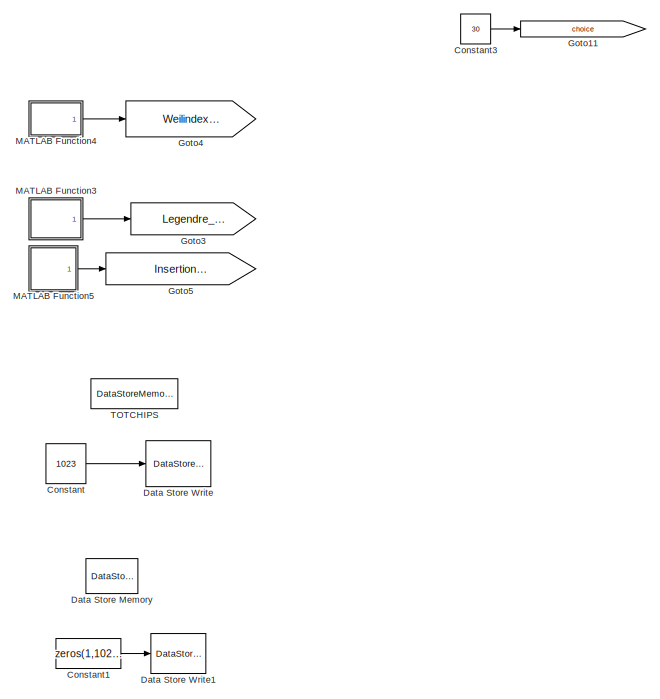
[diagram: root canvas - part 1/2, left side, full height]
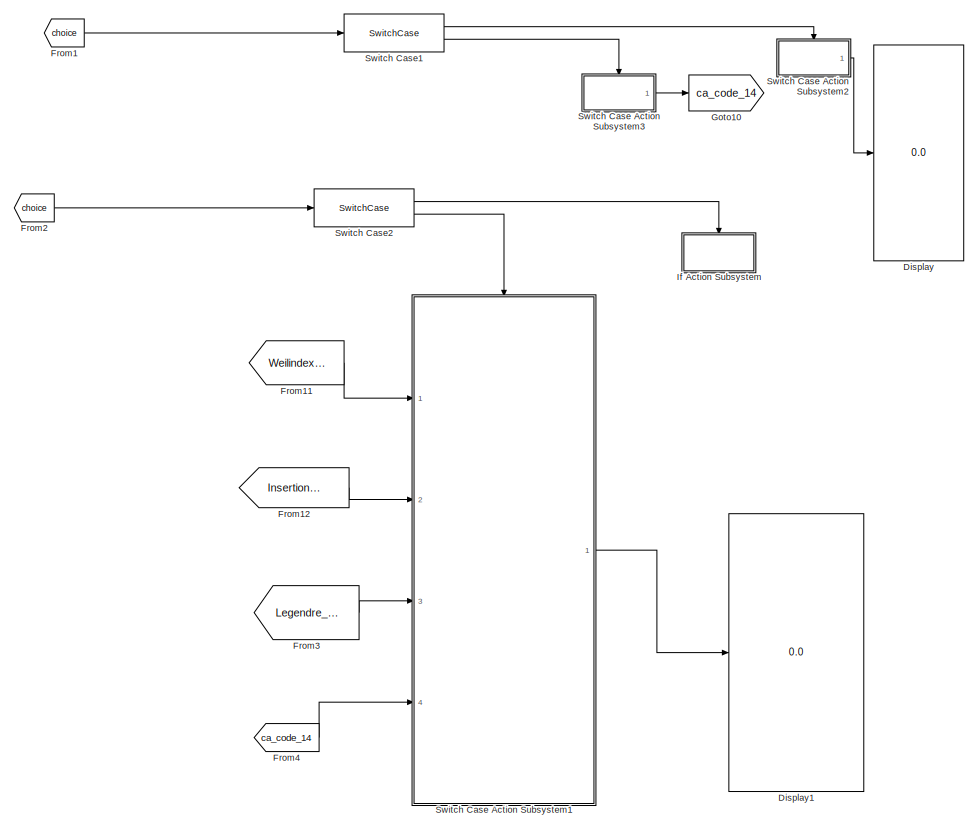
[diagram: root canvas - part 2/2, right side, full height]
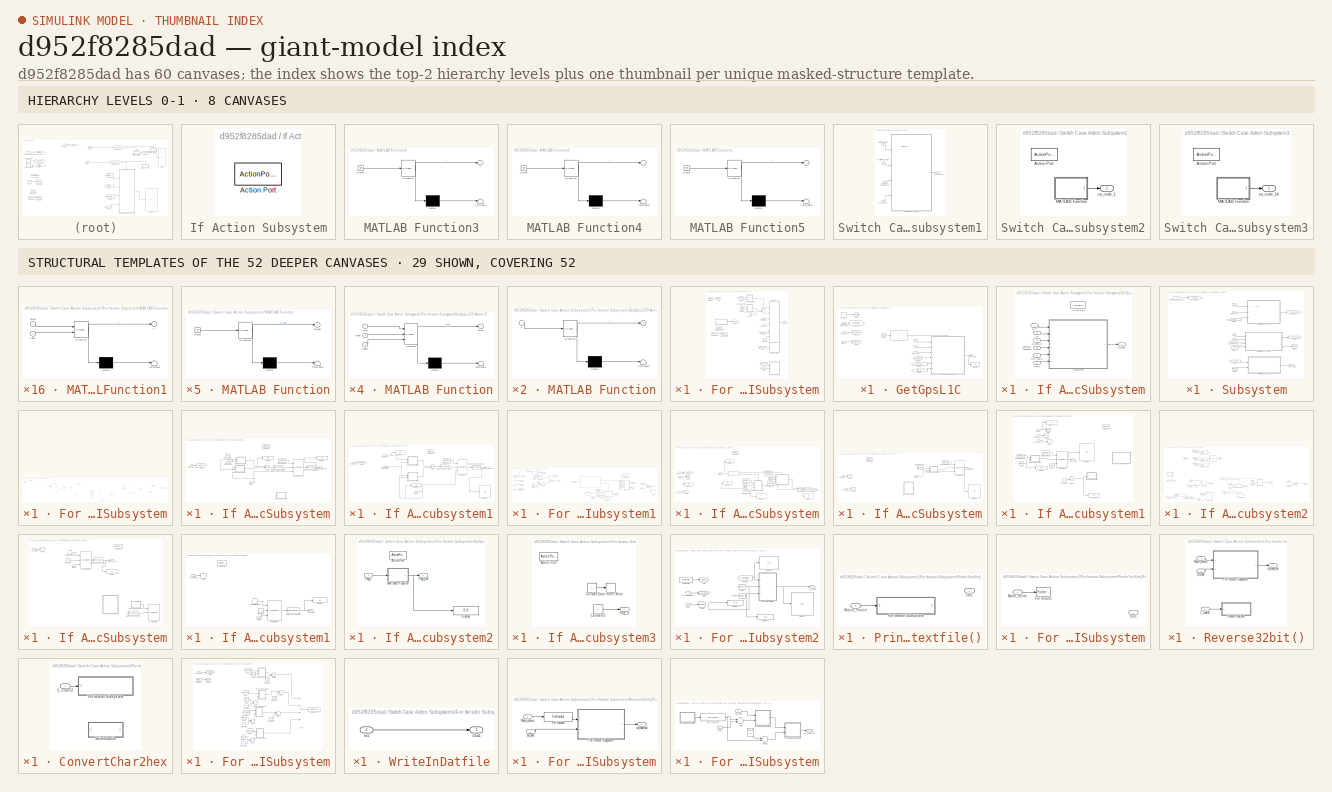
[diagram: thumbnail index - top-2 hierarchy levels (8 canvases) + 29 structural-template representatives of the remaining 52 canvases]
MODEL slx_d952f8285dad
KIND model
CONFIG AbsTol = auto
CONFIG EnableMultiTasking = off
CONFIG FixedStep = auto
CONFIG MaxStep = auto
CONFIG MinStep = auto
CONFIG RelTol = 1e-3
CONFIG SampleTimeConstraint = Unconstrained
CONFIG Solver = VariableStepAuto
CONFIG SolverName = VariableStepAuto
CONFIG StartTime = 0.0
CONFIG StopTime = 10.0
BLOCK [Constant] Constant
  OutDataTypeStr = int32
  SampleTime = -1
  Value = 1023
  VectorParams1D = off
BLOCK [Constant] Constant1
  Value = zeros(1,10244)
BLOCK [Constant] Constant3
  Value = 30
BLOCK [DataStoreMemory] Data Store Memory
  DataStoreName = ca_code
  Dimensions = [1 10244]
  ReadBeforeWriteMsg = warning
  ShowAdditionalParam = off
  WriteAfterReadMsg = warning
  WriteAfterWriteMsg = warning
BLOCK [DataStoreWrite] Data Store Write
  DataStoreName = TOTCHIPS
  Ports = [1]
BLOCK [DataStoreWrite] Data Store Write1
  DataStoreName = ca_code
  Ports = [1]
BLOCK [Display] Display
  Decimation = 1
  Ports = [1]
BLOCK [Display] Display1
  Decimation = 1
  Format = long
  Ports = [1]
BLOCK [From] From1
  GotoTag = choice
BLOCK [From] From11
  GotoTag = Weilindexarrayp64
BLOCK [From] From12
  GotoTag = Insertionindexarrayp64
BLOCK [From] From2
  GotoTag = choice
BLOCK [From] From3
  GotoTag = Legendre_seq10223
BLOCK [From] From4
  GotoTag = ca_code_14
BLOCK [Goto] Goto10
  GotoTag = ca_code_14
BLOCK [Goto] Goto11
  GotoTag = choice
BLOCK [Goto] Goto3
  GotoTag = Legendre_seq10223
BLOCK [Goto] Goto4
  GotoTag = Weilindexarrayp64
BLOCK [Goto] Goto5
  GotoTag = Insertionindexarrayp64
BLOCK [SubSystem] If Action Subsystem
  Ports = [0, 0, 0, 0, 0, 0, 0, 1]
  RequestExecContextInheritance = off
  TreatAsAtomicUnit = on
BLOCK [ActionPort] If Action Subsystem/Action Port
  ActionType = case
BLOCK [SubSystem] MATLAB Function3
  ErrorFcn = Stateflow.Translate.translate
  PermitHierarchicalResolution = ExplicitOnly
  Ports = [0, 1]
  RequestExecContextInheritance = off
  SFBlockType = MATLAB Function
  TreatAsAtomicUnit = on
BLOCK [Demux] MATLAB Function3/ Demux 
  Outputs = 1
  Ports = [1, 1]
BLOCK [Ground] MATLAB Function3/ Ground 
BLOCK [S-Function] MATLAB Function3/ SFunction 
  EnableBusSupport = on
  FunctionName = sf_sfun
  PortCounts = [1 2]
  Ports = [1, 2]
  SFcnIsStateOwnerBlock = off
  SFunctionDeploymentMode = off
  Tag = Stateflow S-Function case14 4
BLOCK [Terminator] MATLAB Function3/ Terminator 
BLOCK [Outport] MATLAB Function3/y
  IconDisplay = Port number
BLOCK [SubSystem] MATLAB Function4
  ErrorFcn = Stateflow.Translate.translate
  PermitHierarchicalResolution = ExplicitOnly
  Ports = [0, 1]
  RequestExecContextInheritance = off
  SFBlockType = MATLAB Function
  TreatAsAtomicUnit = on
BLOCK [Demux] MATLAB Function4/ Demux 
  Outputs = 1
  Ports = [1, 1]
BLOCK [Ground] MATLAB Function4/ Ground 
BLOCK [S-Function] MATLAB Function4/ SFunction 
  EnableBusSupport = on
  FunctionName = sf_sfun
  PortCounts = [1 2]
  Ports = [1, 2]
  SFcnIsStateOwnerBlock = off
  SFunctionDeploymentMode = off
  Tag = Stateflow S-Function case14 5
BLOCK [Terminator] MATLAB Function4/ Terminator 
BLOCK [Outport] MATLAB Function4/y
  IconDisplay = Port number
BLOCK [SubSystem] MATLAB Function5
  ErrorFcn = Stateflow.Translate.translate
  PermitHierarchicalResolution = ExplicitOnly
  Ports = [0, 1]
  RequestExecContextInheritance = off
  SFBlockType = MATLAB Function
  TreatAsAtomicUnit = on
BLOCK [Demux] MATLAB Function5/ Demux 
  Outputs = 1
  Ports = [1, 1]
BLOCK [Ground] MATLAB Function5/ Ground 
BLOCK [S-Function] MATLAB Function5/ SFunction 
  EnableBusSupport = on
  FunctionName = sf_sfun
  PortCounts = [1 2]
  Ports = [1, 2]
  SFcnIsStateOwnerBlock = off
  SFunctionDeploymentMode = off
  Tag = Stateflow S-Function case14 6
BLOCK [Terminator] MATLAB Function5/ Terminator 
BLOCK [Outport] MATLAB Function5/y
  IconDisplay = Port number
BLOCK [SubSystem] Switch Case Action Subsystem1
  Ports = [4, 1, 0, 0, 0, 0, 0, 1]
  RequestExecContextInheritance = off
  TreatAsAtomicUnit = on
BLOCK [ActionPort] Switch Case Action Subsystem1/Action Port
  ActionType = case
BLOCK [SubSystem] Switch Case Action Subsystem1/For Iterator Subsystem
  Ports = [4, 1]
  RequestExecContextInheritance = off
  TreatAsAtomicUnit = on
BLOCK [Constant] Switch Case Action Subsystem1/For Iterator Subsystem/Constant
  OutDataTypeStr = int32
  SampleTime = -1
  VectorParams1D = off
BLOCK [Constant] Switch Case Action Subsystem1/For Iterator Subsystem/Constant1
  OutDataTypeStr = int32
  Value = 0
BLOCK [Constant] Switch Case Action Subsystem1/For Iterator Subsystem/Constant2
  Value = zeros(1,10223)
BLOCK [DataStoreMemory] Switch Case Action Subsystem1/For Iterator Subsystem/Data Store Memory
  DataStoreName = weil_seq_p
  Dimensions = [1 10223]
  ReadBeforeWriteMsg = warning
  ShowAdditionalParam = off
  WriteAfterReadMsg = warning
  WriteAfterWriteMsg = warning
BLOCK [DataStoreWrite] Switch Case Action Subsystem1/For Iterator Subsystem/Data Store Write
  DataStoreName = weil_seq_p
  Ports = [1]
BLOCK [ForIterator] Switch Case Action Subsystem1/For Iterator Subsystem/For Iterator
  IterationLimit = 1
  Ports = [0, 1]
BLOCK [From] Switch Case Action Subsystem1/For Iterator Subsystem/From
  GotoTag = sv_id
BLOCK [From] Switch Case Action Subsystem1/For Iterator Subsystem/From1
  GotoTag = sv_id
BLOCK [From] Switch Case Action Subsystem1/For Iterator Subsystem/From3
  GotoTag = weil_seq_p
BLOCK [From] Switch Case Action Subsystem1/For Iterator Subsystem/From4
  Commented = on
  GotoTag = Macro_choice
BLOCK [From] Switch Case Action Subsystem1/For Iterator Subsystem/From5
  Commented = on
  GotoTag = Macro_choice
BLOCK [From] Switch Case Action Subsystem1/For Iterator Subsystem/From6
  Commented = on
  GotoTag = ca_code
BLOCK [SubSystem] Switch Case Action Subsystem1/For Iterator Subsystem/GetGpsL1C
  Ports = [6, 1]
  RequestExecContextInheritance = off
BLOCK [Constant] Switch Case Action Subsystem1/For Iterator Subsystem/GetGpsL1C/Constant
  SampleTime = -1
  VectorParams1D = off
BLOCK [Display] Switch Case Action Subsystem1/For Iterator Subsystem/GetGpsL1C/Display
  Decimation = 1
  Ports = [1]
BLOCK [From] Switch Case Action Subsystem1/For Iterator Subsystem/GetGpsL1C/From
  GotoTag = choice
BLOCK [From] Switch Case Action Subsystem1/For Iterator Subsystem/GetGpsL1C/From3
  GotoTag = flag_p
BLOCK [From] Switch Case Action Subsystem1/For Iterator Subsystem/GetGpsL1C/From4
  GotoTag = Legendre_seq10223
BLOCK [From] Switch Case Action Subsystem1/For Iterator Subsystem/GetGpsL1C/From5
  GotoTag = ca_code_14
BLOCK [Goto] Switch Case Action Subsystem1/For Iterator Subsystem/GetGpsL1C/Goto
  GotoTag = choice
BLOCK [Goto] Switch Case Action Subsystem1/For Iterator Subsystem/GetGpsL1C/Goto1
  GotoTag = Legendre_seq10223
BLOCK [Goto] Switch Case Action Subsystem1/For Iterator Subsystem/GetGpsL1C/Goto2
  GotoTag = ca_code_14
BLOCK [Goto] Switch Case Action Subsystem1/For Iterator Subsystem/GetGpsL1C/Goto3
  GotoTag = flag_p
BLOCK [SubSystem] Switch Case Action Subsystem1/For Iterator Subsystem/GetGpsL1C/If Action Subsystem
  Ports = [6, 1, 0, 0, 0, 0, 0, 1]
  RequestExecContextInheritance = off
  TreatAsAtomicUnit = on
BLOCK [ActionPort] Switch Case Action Subsystem1/For Iterator Subsystem/GetGpsL1C/If Action Subsystem/Action Port
  ActionType = then
BLOCK [Inport] Switch Case Action Subsystem1/For Iterator Subsystem/GetGpsL1C/If Action Subsystem/Legendre_seq10223
  IconDisplay = Port number
  Port = 5
BLOCK [SubSystem] Switch Case Action Subsystem1/For Iterator Subsystem/GetGpsL1C/If Action Subsystem/Subsystem
  Ports = [6, 1]
  RequestExecContextInheritance = off
BLOCK [SubSystem] Switch Case Action Subsystem1/For Iterator Subsystem/GetGpsL1C/If Action Subsystem/Subsystem/For Iterator Subsystem
  Ports = [3, 1]
  RequestExecContextInheritance = off
  TreatAsAtomicUnit = on
BLOCK [Sum] Switch Case Action Subsystem1/For Iterator Subsystem/GetGpsL1C/If Action Subsystem/Subsystem/For Iterator Subsystem/Add
  InputSameDT = off
  OutDataTypeStr = Inherit: Inherit via internal rule
  Ports = [2, 1]
  SaturateOnIntegerOverflow = off
BLOCK [Display] Switch Case Action Subsystem1/For Iterator Subsystem/GetGpsL1C/If Action Subsystem/Subsystem/For Iterator Subsystem/Display
  Decimation = 1
  Ports = [1]
BLOCK [Display] Switch Case Action Subsystem1/For Iterator Subsystem/GetGpsL1C/If Action Subsystem/Subsystem/For Iterator Subsystem/Display1
  Decimation = 1
  Format = long
  Ports = [1]
BLOCK [Display] Switch Case Action Subsystem1/For Iterator Subsystem/GetGpsL1C/If Action Subsystem/Subsystem/For Iterator Subsystem/Display2
  Decimation = 1
  Format = long
  Ports = [1]
BLOCK [ForIterator] Switch Case Action Subsystem1/For Iterator Subsystem/GetGpsL1C/If Action Subsystem/Subsystem/For Iterator Subsystem/For Iterator
  IterationLimit = 10223
  Ports = [0, 1]
BLOCK [From] Switch Case Action Subsystem1/For Iterator Subsystem/GetGpsL1C/If Action Subsystem/Subsystem/For Iterator Subsystem/From
  GotoTag = remainder
BLOCK [From] Switch Case Action Subsystem1/For Iterator Subsystem/GetGpsL1C/If Action Subsystem/Subsystem/For Iterator Subsystem/From1
  GotoTag = remainder
BLOCK [From] Switch Case Action Subsystem1/For Iterator Subsystem/GetGpsL1C/If Action Subsystem/Subsystem/For Iterator Subsystem/From11
  GotoTag = weil_seq_else
BLOCK [From] Switch Case Action Subsystem1/For Iterator Subsystem/GetGpsL1C/If Action Subsystem/Subsystem/For Iterator Subsystem/From12
  GotoTag = Legendre_seq10223
BLOCK [From] Switch Case Action Subsystem1/For Iterator Subsystem/GetGpsL1C/If Action Subsystem/Subsystem/For Iterator Subsystem/From13
  GotoTag = Legendre_seq10223
BLOCK [From] Switch Case Action Subsystem1/For Iterator Subsystem/GetGpsL1C/If Action Subsystem/Subsystem/For Iterator Subsystem/From2
  GotoTag = weil_seq_if
BLOCK [From] Switch Case Action Subsystem1/For Iterator Subsystem/GetGpsL1C/If Action Subsystem/Subsystem/For Iterator Subsystem/From6
  GotoTag = index
BLOCK [From] Switch Case Action Subsystem1/For Iterator Subsystem/GetGpsL1C/If Action Subsystem/Subsystem/For Iterator Subsystem/From7
  GotoTag = index
BLOCK [Goto] Switch Case Action Subsystem1/For Iterator Subsystem/GetGpsL1C/If Action Subsystem/Subsystem/For Iterator Subsystem/Goto
  GotoTag = remainder
BLOCK [Goto] Switch Case Action Subsystem1/For Iterator Subsystem/GetGpsL1C/If Action Subsystem/Subsystem/For Iterator Subsystem/Goto1
  GotoTag = weil_seq_else
BLOCK [Goto] Switch Case Action Subsystem1/For Iterator Subsystem/GetGpsL1C/If Action Subsystem/Subsystem/For Iterator Subsystem/Goto2
  GotoTag = index
BLOCK [Goto] Switch Case Action Subsystem1/For Iterator Subsystem/GetGpsL1C/If Action Subsystem/Subsystem/For Iterator Subsystem/Goto3
  GotoTag = Legendre_seq10223
BLOCK [Goto] Switch Case Action Subsystem1/For Iterator Subsystem/GetGpsL1C/If Action Subsystem/Subsystem/For Iterator Subsystem/Goto6
  GotoTag = weil_seq_if
BLOCK [If] Switch Case Action Subsystem1/For Iterator Subsystem/GetGpsL1C/If Action Subsystem/Subsystem/For Iterator Subsystem/If
  IfExpression = u1==0
  Ports = [1, 2]
BLOCK [SubSystem] Switch Case Action Subsystem1/For Iterator Subsystem/GetGpsL1C/If Action Subsystem/Subsystem/For Iterator Subsystem/If Action Subsystem
  Ports = [3, 1, 0, 0, 0, 0, 0, 1]
  RequestExecContextInheritance = off
  TreatAsAtomicUnit = on
BLOCK [ActionPort] Switch Case Action Subsystem1/For Iterator Subsystem/GetGpsL1C/If Action Subsystem/Subsystem/For Iterator Subsystem/If Action Subsystem/Action Port
  ActionType = then
BLOCK [Assignment] Switch Case Action Subsystem1/For Iterator Subsystem/GetGpsL1C/If Action Subsystem/Subsystem/For Iterator Subsystem/If Action Subsystem/Assignment
  DiagnosticForDimensions = Warning
  IndexOptions = Index vector (port)
  Indices = [1:1023]
  OutputSizes = 1
  Ports = [3, 1]
BLOCK [Constant] Switch Case Action Subsystem1/For Iterator Subsystem/GetGpsL1C/If Action Subsystem/Subsystem/For Iterator Subsystem/If Action Subsystem/Constant
  Value = 10223
BLOCK [DataStoreRead] Switch Case Action Subsystem1/For Iterator Subsystem/GetGpsL1C/If Action Subsystem/Subsystem/For Iterator Subsystem/If Action Subsystem/Data Store Read
  DataStoreName = weil_seq_p
  Ports = [0, 1]
BLOCK [DataTypeConversion] Switch Case Action Subsystem1/For Iterator Subsystem/GetGpsL1C/If Action Subsystem/Subsystem/For Iterator Subsystem/If Action Subsystem/Data Type Conversion
  OutDataTypeStr = double
  RndMeth = Floor
  SaturateOnIntegerOverflow = off
BLOCK [DataTypeConversion] Switch Case Action Subsystem1/For Iterator Subsystem/GetGpsL1C/If Action Subsystem/Subsystem/For Iterator Subsystem/If Action Subsystem/Data Type Conversion1
  OutDataTypeStr = boolean
  RndMeth = Floor
  SaturateOnIntegerOverflow = off
BLOCK [Display] Switch Case Action Subsystem1/For Iterator Subsystem/GetGpsL1C/If Action Subsystem/Subsystem/For Iterator Subsystem/If Action Subsystem/Display
  Decimation = 1
  Ports = [1]
BLOCK [Display] Switch Case Action Subsystem1/For Iterator Subsystem/GetGpsL1C/If Action Subsystem/Subsystem/For Iterator Subsystem/If Action Subsystem/Display1
  Decimation = 1
  Ports = [1]
BLOCK [Goto] Switch Case Action Subsystem1/For Iterator Subsystem/GetGpsL1C/If Action Subsystem/Subsystem/For Iterator Subsystem/If Action Subsystem/Goto
  GotoTag = weil_seq
BLOCK [Inport] Switch Case Action Subsystem1/For Iterator Subsystem/GetGpsL1C/If Action Subsystem/Subsystem/For Iterator Subsystem/If Action Subsystem/Legendre_seq10223
  IconDisplay = Port number
  Port = 2
BLOCK [SubSystem] Switch Case Action Subsystem1/For Iterator Subsystem/GetGpsL1C/If Action Subsystem/Subsystem/For Iterator Subsystem/If Action Subsystem/MATLAB Function
  Commented = on
  ErrorFcn = Stateflow.Translate.translate
  PermitHierarchicalResolution = ExplicitOnly
  Ports = [1, 1]
  RequestExecContextInheritance = off
  SFBlockType = MATLAB Function
  TreatAsAtomicUnit = on
BLOCK [Demux] Switch Case Action Subsystem1/For Iterator Subsystem/GetGpsL1C/If Action Subsystem/Subsystem/For Iterator Subsystem/If Action Subsystem/MATLAB Function/ Demux 
  Outputs = 1
  Ports = [1, 1]
BLOCK [S-Function] Switch Case Action Subsystem1/For Iterator Subsystem/GetGpsL1C/If Action Subsystem/Subsystem/For Iterator Subsystem/If Action Subsystem/MATLAB Function/ SFunction 
  EnableBusSupport = on
  FunctionName = sf_sfun
  PortCounts = [1 2]
  Ports = [1, 2]
  SFcnIsStateOwnerBlock = off
  SFunctionDeploymentMode = off
  Tag = Stateflow S-Function case14 2
BLOCK [Terminator] Switch Case Action Subsystem1/For Iterator Subsystem/GetGpsL1C/If Action Subsystem/Subsystem/For Iterator Subsystem/If Action Subsystem/MATLAB Function/ Terminator 
BLOCK [Inport] Switch Case Action Subsystem1/For Iterator Subsystem/GetGpsL1C/If Action Subsystem/Subsystem/For Iterator Subsystem/If Action Subsystem/MATLAB Function/u
  IconDisplay = Port number
BLOCK [Outport] Switch Case Action Subsystem1/For Iterator Subsystem/GetGpsL1C/If Action Subsystem/Subsystem/For Iterator Subsystem/If Action Subsystem/MATLAB Function/y
  IconDisplay = Port number
BLOCK [SubSystem] Switch Case Action Subsystem1/For Iterator Subsystem/GetGpsL1C/If Action Subsystem/Subsystem/For Iterator Subsystem/If Action Subsystem/MATLAB Function1
  ErrorFcn = Stateflow.Translate.translate
  PermitHierarchicalResolution = ExplicitOnly
  Ports = [2, 1]
  RequestExecContextInheritance = off
  SFBlockType = MATLAB Function
  TreatAsAtomicUnit = on
BLOCK [Demux] Switch Case Action Subsystem1/For Iterator Subsystem/GetGpsL1C/If Action Subsystem/Subsystem/For Iterator Subsystem/If Action Subsystem/MATLAB Function1/ Demux 
  Outputs = 1
  Ports = [1, 1]
BLOCK [S-Function] Switch Case Action Subsystem1/For Iterator Subsystem/GetGpsL1C/If Action Subsystem/Subsystem/For Iterator Subsystem/If Action Subsystem/MATLAB Function1/ SFunction 
  EnableBusSupport = on
  FunctionName = sf_sfun
  PortCounts = [2 2]
  Ports = [2, 2]
  SFcnIsStateOwnerBlock = off
  SFunctionDeploymentMode = off
  Tag = Stateflow S-Function case14 38
BLOCK [Terminator] Switch Case Action Subsystem1/For Iterator Subsystem/GetGpsL1C/If Action Subsystem/Subsystem/For Iterator Subsystem/If Action Subsystem/MATLAB Function1/ Terminator 
BLOCK [Inport] Switch Case Action Subsystem1/For Iterator Subsystem/GetGpsL1C/If Action Subsystem/Subsystem/For Iterator Subsystem/If Action Subsystem/MATLAB Function1/index
  IconDisplay = Port number
BLOCK [Inport] Switch Case Action Subsystem1/For Iterator Subsystem/GetGpsL1C/If Action Subsystem/Subsystem/For Iterator Subsystem/If Action Subsystem/MATLAB Function1/value
  IconDisplay = Port number
  Port = 2
BLOCK [Outport] Switch Case Action Subsystem1/For Iterator Subsystem/GetGpsL1C/If Action Subsystem/Subsystem/For Iterator Subsystem/If Action Subsystem/MATLAB Function1/y
  IconDisplay = Port number
BLOCK [SubSystem] Switch Case Action Subsystem1/For Iterator Subsystem/GetGpsL1C/If Action Subsystem/Subsystem/For Iterator Subsystem/If Action Subsystem/MATLAB Function2
  ErrorFcn = Stateflow.Translate.translate
  PermitHierarchicalResolution = ExplicitOnly
  Ports = [2, 1]
  RequestExecContextInheritance = off
  SFBlockType = MATLAB Function
  TreatAsAtomicUnit = on
BLOCK [Demux] Switch Case Action Subsystem1/For Iterator Subsystem/GetGpsL1C/If Action Subsystem/Subsystem/For Iterator Subsystem/If Action Subsystem/MATLAB Function2/ Demux 
  Outputs = 1
  Ports = [1, 1]
BLOCK [S-Function] Switch Case Action Subsystem1/For Iterator Subsystem/GetGpsL1C/If Action Subsystem/Subsystem/For Iterator Subsystem/If Action Subsystem/MATLAB Function2/ SFunction 
  EnableBusSupport = on
  FunctionName = sf_sfun
  PortCounts = [2 2]
  Ports = [2, 2]
  SFcnIsStateOwnerBlock = off
  SFunctionDeploymentMode = off
  Tag = Stateflow S-Function case14 33
BLOCK [Terminator] Switch Case Action Subsystem1/For Iterator Subsystem/GetGpsL1C/If Action Subsystem/Subsystem/For Iterator Subsystem/If Action Subsystem/MATLAB Function2/ Terminator 
BLOCK [Inport] Switch Case Action Subsystem1/For Iterator Subsystem/GetGpsL1C/If Action Subsystem/Subsystem/For Iterator Subsystem/If Action Subsystem/MATLAB Function2/index
  IconDisplay = Port number
BLOCK [Inport] Switch Case Action Subsystem1/For Iterator Subsystem/GetGpsL1C/If Action Subsystem/Subsystem/For Iterator Subsystem/If Action Subsystem/MATLAB Function2/value
  IconDisplay = Port number
  Port = 2
BLOCK [Outport] Switch Case Action Subsystem1/For Iterator Subsystem/GetGpsL1C/If Action Subsystem/Subsystem/For Iterator Subsystem/If Action Subsystem/MATLAB Function2/y
  IconDisplay = Port number
BLOCK [Logic] Switch Case Action Subsystem1/For Iterator Subsystem/GetGpsL1C/If Action Subsystem/Subsystem/For Iterator Subsystem/If Action Subsystem/OR
  AllPortsSameDT = off
  IconShape = distinctive
  Operator = XOR
  OutDataTypeStr = boolean
  Ports = [2, 1]
BLOCK [Inport] Switch Case Action Subsystem1/For Iterator Subsystem/GetGpsL1C/If Action Subsystem/Subsystem/For Iterator Subsystem/If Action Subsystem/index
  IconDisplay = Port number
BLOCK [Inport] Switch Case Action Subsystem1/For Iterator Subsystem/GetGpsL1C/If Action Subsystem/Subsystem/For Iterator Subsystem/If Action Subsystem/weil_seq_p
  IconDisplay = Port number
  Port = 3
BLOCK [Outport] Switch Case Action Subsystem1/For Iterator Subsystem/GetGpsL1C/If Action Subsystem/Subsystem/For Iterator Subsystem/If Action Subsystem/weil_seq_p[index]
  IconDisplay = Port number
  SignalType = real
BLOCK [SubSystem] Switch Case Action Subsystem1/For Iterator Subsystem/GetGpsL1C/If Action Subsystem/Subsystem/For Iterator Subsystem/If Action Subsystem1
  Ports = [4, 1, 0, 0, 0, 0, 0, 1]
  RequestExecContextInheritance = off
  TreatAsAtomicUnit = on
BLOCK [ActionPort] Switch Case Action Subsystem1/For Iterator Subsystem/GetGpsL1C/If Action Subsystem/Subsystem/For Iterator Subsystem/If Action Subsystem1/Action Port
  ActionType = else
BLOCK [Assignment] Switch Case Action Subsystem1/For Iterator Subsystem/GetGpsL1C/If Action Subsystem/Subsystem/For Iterator Subsystem/If Action Subsystem1/Assignment
  DiagnosticForDimensions = Warning
  IndexOptions = Index vector (port)
  Indices = [1:1023]
  OutputSizes = 1
  Ports = [3, 1]
BLOCK [DataStoreRead] Switch Case Action Subsystem1/For Iterator Subsystem/GetGpsL1C/If Action Subsystem/Subsystem/For Iterator Subsystem/If Action Subsystem1/Data Store Read
  DataStoreName = weil_seq_p
  Ports = [0, 1]
BLOCK [DataTypeConversion] Switch Case Action Subsystem1/For Iterator Subsystem/GetGpsL1C/If Action Subsystem/Subsystem/For Iterator Subsystem/If Action Subsystem1/Data Type Conversion
  OutDataTypeStr = double
  RndMeth = Floor
  SaturateOnIntegerOverflow = off
BLOCK [DataTypeConversion] Switch Case Action Subsystem1/For Iterator Subsystem/GetGpsL1C/If Action Subsystem/Subsystem/For Iterator Subsystem/If Action Subsystem1/Data Type Conversion1
  OutDataTypeStr = boolean
  RndMeth = Floor
  SaturateOnIntegerOverflow = off
BLOCK [Display] Switch Case Action Subsystem1/For Iterator Subsystem/GetGpsL1C/If Action Subsystem/Subsystem/For Iterator Subsystem/If Action Subsystem1/Display
  Decimation = 1
  Format = long
  Ports = [1]
BLOCK [Display] Switch Case Action Subsystem1/For Iterator Subsystem/GetGpsL1C/If Action Subsystem/Subsystem/For Iterator Subsystem/If Action Subsystem1/Display1
  Decimation = 1
  Format = long
  Ports = [1]
BLOCK [Display] Switch Case Action Subsystem1/For Iterator Subsystem/GetGpsL1C/If Action Subsystem/Subsystem/For Iterator Subsystem/If Action Subsystem1/Display2
  Decimation = 1
  Ports = [1]
BLOCK [Goto] Switch Case Action Subsystem1/For Iterator Subsystem/GetGpsL1C/If Action Subsystem/Subsystem/For Iterator Subsystem/If Action Subsystem1/Goto
  GotoTag = weil_seq
BLOCK [Inport] Switch Case Action Subsystem1/For Iterator Subsystem/GetGpsL1C/If Action Subsystem/Subsystem/For Iterator Subsystem/If Action Subsystem1/Legendre_seq10223
  IconDisplay = Port number
BLOCK [SubSystem] Switch Case Action Subsystem1/For Iterator Subsystem/GetGpsL1C/If Action Subsystem/Subsystem/For Iterator Subsystem/If Action Subsystem1/MATLAB Function2
  ErrorFcn = Stateflow.Translate.translate
  PermitHierarchicalResolution = ExplicitOnly
  Ports = [2, 1]
  RequestExecContextInheritance = off
  SFBlockType = MATLAB Function
  TreatAsAtomicUnit = on
BLOCK [Demux] Switch Case Action Subsystem1/For Iterator Subsystem/GetGpsL1C/If Action Subsystem/Subsystem/For Iterator Subsystem/If Action Subsystem1/MATLAB Function2/ Demux 
  Outputs = 1
  Ports = [1, 1]
BLOCK [S-Function] Switch Case Action Subsystem1/For Iterator Subsystem/GetGpsL1C/If Action Subsystem/Subsystem/For Iterator Subsystem/If Action Subsystem1/MATLAB Function2/ SFunction 
  EnableBusSupport = on
  FunctionName = sf_sfun
  PortCounts = [2 2]
  Ports = [2, 2]
  SFcnIsStateOwnerBlock = off
  SFunctionDeploymentMode = off
  Tag = Stateflow S-Function case14 12
BLOCK [Terminator] Switch Case Action Subsystem1/For Iterator Subsystem/GetGpsL1C/If Action Subsystem/Subsystem/For Iterator Subsystem/If Action Subsystem1/MATLAB Function2/ Terminator 
BLOCK [Inport] Switch Case Action Subsystem1/For Iterator Subsystem/GetGpsL1C/If Action Subsystem/Subsystem/For Iterator Subsystem/If Action Subsystem1/MATLAB Function2/index
  IconDisplay = Port number
BLOCK [Inport] Switch Case Action Subsystem1/For Iterator Subsystem/GetGpsL1C/If Action Subsystem/Subsystem/For Iterator Subsystem/If Action Subsystem1/MATLAB Function2/value
  IconDisplay = Port number
  Port = 2
BLOCK [Outport] Switch Case Action Subsystem1/For Iterator Subsystem/GetGpsL1C/If Action Subsystem/Subsystem/For Iterator Subsystem/If Action Subsystem1/MATLAB Function2/y
  IconDisplay = Port number
BLOCK [SubSystem] Switch Case Action Subsystem1/For Iterator Subsystem/GetGpsL1C/If Action Subsystem/Subsystem/For Iterator Subsystem/If Action Subsystem1/MATLAB Function3
  ErrorFcn = Stateflow.Translate.translate
  PermitHierarchicalResolution = ExplicitOnly
  Ports = [2, 1]
  RequestExecContextInheritance = off
  SFBlockType = MATLAB Function
  TreatAsAtomicUnit = on
BLOCK [Demux] Switch Case Action Subsystem1/For Iterator Subsystem/GetGpsL1C/If Action Subsystem/Subsystem/For Iterator Subsystem/If Action Subsystem1/MATLAB Function3/ Demux 
  Outputs = 1
  Ports = [1, 1]
BLOCK [S-Function] Switch Case Action Subsystem1/For Iterator Subsystem/GetGpsL1C/If Action Subsystem/Subsystem/For Iterator Subsystem/If Action Subsystem1/MATLAB Function3/ SFunction 
  EnableBusSupport = on
  FunctionName = sf_sfun
  PortCounts = [2 2]
  Ports = [2, 2]
  SFcnIsStateOwnerBlock = off
  SFunctionDeploymentMode = off
  Tag = Stateflow S-Function case14 36
BLOCK [Terminator] Switch Case Action Subsystem1/For Iterator Subsystem/GetGpsL1C/If Action Subsystem/Subsystem/For Iterator Subsystem/If Action Subsystem1/MATLAB Function3/ Terminator 
BLOCK [Inport] Switch Case Action Subsystem1/For Iterator Subsystem/GetGpsL1C/If Action Subsystem/Subsystem/For Iterator Subsystem/If Action Subsystem1/MATLAB Function3/index
  IconDisplay = Port number
BLOCK [Inport] Switch Case Action Subsystem1/For Iterator Subsystem/GetGpsL1C/If Action Subsystem/Subsystem/For Iterator Subsystem/If Action Subsystem1/MATLAB Function3/value
  IconDisplay = Port number
  Port = 2
BLOCK [Outport] Switch Case Action Subsystem1/For Iterator Subsystem/GetGpsL1C/If Action Subsystem/Subsystem/For Iterator Subsystem/If Action Subsystem1/MATLAB Function3/y
  IconDisplay = Port number
BLOCK [Logic] Switch Case Action Subsystem1/For Iterator Subsystem/GetGpsL1C/If Action Subsystem/Subsystem/For Iterator Subsystem/If Action Subsystem1/OR
  AllPortsSameDT = off
  IconShape = distinctive
  Operator = XOR
  OutDataTypeStr = boolean
  Ports = [2, 1]
BLOCK [Inport] Switch Case Action Subsystem1/For Iterator Subsystem/GetGpsL1C/If Action Subsystem/Subsystem/For Iterator Subsystem/If Action Subsystem1/index1
  IconDisplay = Port number
  Port = 3
BLOCK [Inport] Switch Case Action Subsystem1/For Iterator Subsystem/GetGpsL1C/If Action Subsystem/Subsystem/For Iterator Subsystem/If Action Subsystem1/remainder
  IconDisplay = Port number
  Port = 2
BLOCK [Inport] Switch Case Action Subsystem1/For Iterator Subsystem/GetGpsL1C/If Action Subsystem/Subsystem/For Iterator Subsystem/If Action Subsystem1/weil_seq_p
  IconDisplay = Port number
  Port = 4
BLOCK [Outport] Switch Case Action Subsystem1/For Iterator Subsystem/GetGpsL1C/If Action Subsystem/Subsystem/For Iterator Subsystem/If Action Subsystem1/weil_seq_p[index]
  IconDisplay = Port number
BLOCK [Inport] Switch Case Action Subsystem1/For Iterator Subsystem/GetGpsL1C/If Action Subsystem/Subsystem/For Iterator Subsystem/Legendre_seq10223
  IconDisplay = Port number
  Port = 3
BLOCK [Merge] Switch Case Action Subsystem1/For Iterator Subsystem/GetGpsL1C/If Action Subsystem/Subsystem/For Iterator Subsystem/Merge
  InitialOutput = [0]
  Ports = [2, 1]
BLOCK [Math] Switch Case Action Subsystem1/For Iterator Subsystem/GetGpsL1C/If Action Subsystem/Subsystem/For Iterator Subsystem/Remainder
  Operator = mod
  Ports = [2, 1]
BLOCK [Constant] Switch Case Action Subsystem1/For Iterator Subsystem/GetGpsL1C/If Action Subsystem/Subsystem/For Iterator Subsystem/constant
  Value = 10223
BLOCK [Inport] Switch Case Action Subsystem1/For Iterator Subsystem/GetGpsL1C/If Action Subsystem/Subsystem/For Iterator Subsystem/w_p
  IconDisplay = Port number
BLOCK [Inport] Switch Case Action Subsystem1/For Iterator Subsystem/GetGpsL1C/If Action Subsystem/Subsystem/For Iterator Subsystem/weil_seq_p
  IconDisplay = Port number
  Port = 2
BLOCK [Outport] Switch Case Action Subsystem1/For Iterator Subsystem/GetGpsL1C/If Action Subsystem/Subsystem/For Iterator Subsystem/weil_seq_p_out
  IconDisplay = Port number
  InitialOutput = [0]
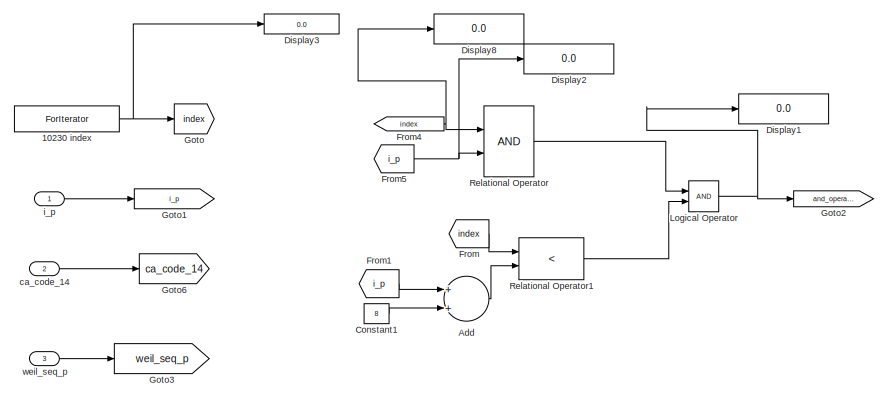
[diagram: Switch Case Action Subsystem1/For Iterator Subsystem/GetGpsL1C/If Action Subsystem/Subsystem/For Iterator Subsystem1 - part 1/2, middle left region]
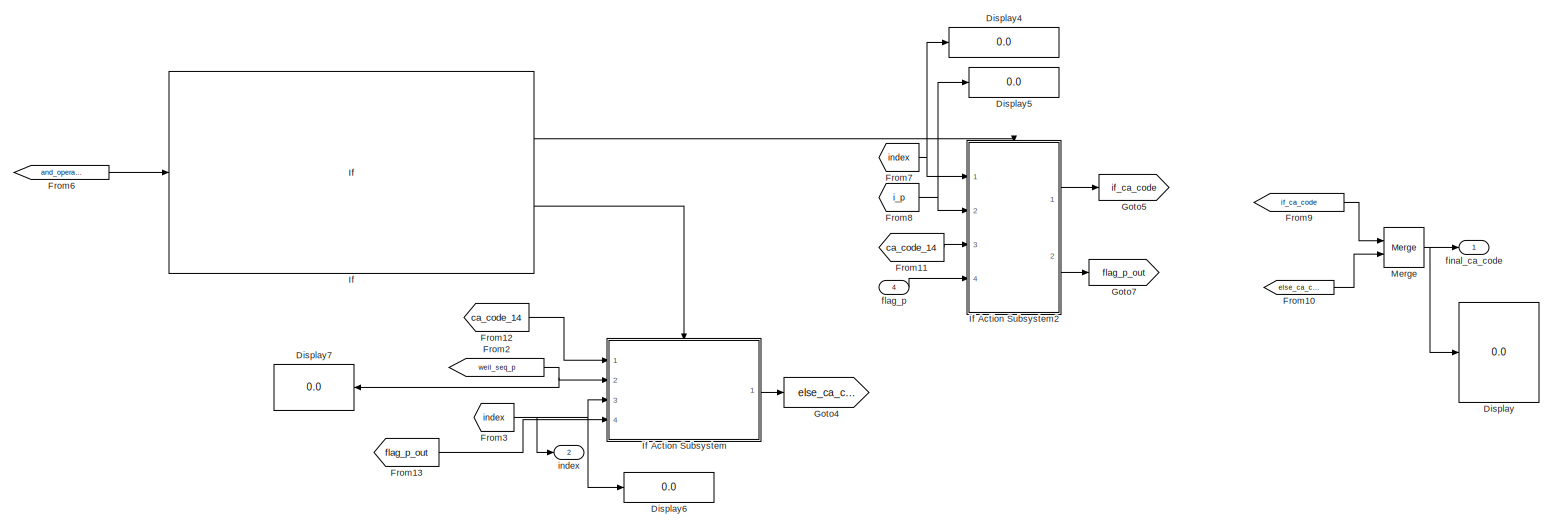
[diagram: Switch Case Action Subsystem1/For Iterator Subsystem/GetGpsL1C/If Action Subsystem/Subsystem/For Iterator Subsystem1 - part 2/2, right side, full height]
BLOCK [SubSystem] Switch Case Action Subsystem1/For Iterator Subsystem/GetGpsL1C/If Action Subsystem/Subsystem/For Iterator Subsystem1
  Ports = [4, 2]
  RequestExecContextInheritance = off
  TreatAsAtomicUnit = on
BLOCK [ForIterator] Switch Case Action Subsystem1/For Iterator Subsystem/GetGpsL1C/If Action Subsystem/Subsystem/For Iterator Subsystem1/10230 index
  IterationLimit = 10230
  Ports = [0, 1]
BLOCK [Sum] Switch Case Action Subsystem1/For Iterator Subsystem/GetGpsL1C/If Action Subsystem/Subsystem/For Iterator Subsystem1/Add
  InputSameDT = off
  OutDataTypeStr = Inherit: Inherit via internal rule
  Ports = [2, 1]
  SaturateOnIntegerOverflow = off
BLOCK [Constant] Switch Case Action Subsystem1/For Iterator Subsystem/GetGpsL1C/If Action Subsystem/Subsystem/For Iterator Subsystem1/Constant1
  OutDataTypeStr = int32
  Value = 8
BLOCK [Display] Switch Case Action Subsystem1/For Iterator Subsystem/GetGpsL1C/If Action Subsystem/Subsystem/For Iterator Subsystem1/Display
  Decimation = 1
  Ports = [1]
BLOCK [Display] Switch Case Action Subsystem1/For Iterator Subsystem/GetGpsL1C/If Action Subsystem/Subsystem/For Iterator Subsystem1/Display1
  Decimation = 1
  Ports = [1]
BLOCK [Display] Switch Case Action Subsystem1/For Iterator Subsystem/GetGpsL1C/If Action Subsystem/Subsystem/For Iterator Subsystem1/Display2
  Decimation = 1
  Ports = [1]
BLOCK [Display] Switch Case Action Subsystem1/For Iterator Subsystem/GetGpsL1C/If Action Subsystem/Subsystem/For Iterator Subsystem1/Display3
  Decimation = 1
  Format = long
  Ports = [1]
BLOCK [Display] Switch Case Action Subsystem1/For Iterator Subsystem/GetGpsL1C/If Action Subsystem/Subsystem/For Iterator Subsystem1/Display4
  Decimation = 1
  Format = long
  Ports = [1]
BLOCK [Display] Switch Case Action Subsystem1/For Iterator Subsystem/GetGpsL1C/If Action Subsystem/Subsystem/For Iterator Subsystem1/Display5
  Decimation = 1
  Ports = [1]
BLOCK [Display] Switch Case Action Subsystem1/For Iterator Subsystem/GetGpsL1C/If Action Subsystem/Subsystem/For Iterator Subsystem1/Display6
  Decimation = 1
  Format = long
  Ports = [1]
BLOCK [Display] Switch Case Action Subsystem1/For Iterator Subsystem/GetGpsL1C/If Action Subsystem/Subsystem/For Iterator Subsystem1/Display7
  Decimation = 1
  Ports = [1]
BLOCK [Display] Switch Case Action Subsystem1/For Iterator Subsystem/GetGpsL1C/If Action Subsystem/Subsystem/For Iterator Subsystem1/Display8
  Decimation = 1
  Ports = [1]
BLOCK [From] Switch Case Action Subsystem1/For Iterator Subsystem/GetGpsL1C/If Action Subsystem/Subsystem/For Iterator Subsystem1/From
  GotoTag = index
BLOCK [From] Switch Case Action Subsystem1/For Iterator Subsystem/GetGpsL1C/If Action Subsystem/Subsystem/For Iterator Subsystem1/From1
  GotoTag = i_p
BLOCK [From] Switch Case Action Subsystem1/For Iterator Subsystem/GetGpsL1C/If Action Subsystem/Subsystem/For Iterator Subsystem1/From10
  GotoTag = else_ca_code
BLOCK [From] Switch Case Action Subsystem1/For Iterator Subsystem/GetGpsL1C/If Action Subsystem/Subsystem/For Iterator Subsystem1/From11
  GotoTag = ca_code_14
BLOCK [From] Switch Case Action Subsystem1/For Iterator Subsystem/GetGpsL1C/If Action Subsystem/Subsystem/For Iterator Subsystem1/From12
  GotoTag = ca_code_14
BLOCK [From] Switch Case Action Subsystem1/For Iterator Subsystem/GetGpsL1C/If Action Subsystem/Subsystem/For Iterator Subsystem1/From13
  GotoTag = flag_p_out
BLOCK [From] Switch Case Action Subsystem1/For Iterator Subsystem/GetGpsL1C/If Action Subsystem/Subsystem/For Iterator Subsystem1/From2
  GotoTag = weil_seq_p
BLOCK [From] Switch Case Action Subsystem1/For Iterator Subsystem/GetGpsL1C/If Action Subsystem/Subsystem/For Iterator Subsystem1/From3
  GotoTag = index
BLOCK [From] Switch Case Action Subsystem1/For Iterator Subsystem/GetGpsL1C/If Action Subsystem/Subsystem/For Iterator Subsystem1/From4
  GotoTag = index
BLOCK [From] Switch Case Action Subsystem1/For Iterator Subsystem/GetGpsL1C/If Action Subsystem/Subsystem/For Iterator Subsystem1/From5
  GotoTag = i_p
BLOCK [From] Switch Case Action Subsystem1/For Iterator Subsystem/GetGpsL1C/If Action Subsystem/Subsystem/For Iterator Subsystem1/From6
  GotoTag = and_operation
BLOCK [From] Switch Case Action Subsystem1/For Iterator Subsystem/GetGpsL1C/If Action Subsystem/Subsystem/For Iterator Subsystem1/From7
  GotoTag = index
BLOCK [From] Switch Case Action Subsystem1/For Iterator Subsystem/GetGpsL1C/If Action Subsystem/Subsystem/For Iterator Subsystem1/From8
  GotoTag = i_p
BLOCK [From] Switch Case Action Subsystem1/For Iterator Subsystem/GetGpsL1C/If Action Subsystem/Subsystem/For Iterator Subsystem1/From9
  GotoTag = if_ca_code
BLOCK [Goto] Switch Case Action Subsystem1/For Iterator Subsystem/GetGpsL1C/If Action Subsystem/Subsystem/For Iterator Subsystem1/Goto
  GotoTag = index
BLOCK [Goto] Switch Case Action Subsystem1/For Iterator Subsystem/GetGpsL1C/If Action Subsystem/Subsystem/For Iterator Subsystem1/Goto1
  GotoTag = i_p
BLOCK [Goto] Switch Case Action Subsystem1/For Iterator Subsystem/GetGpsL1C/If Action Subsystem/Subsystem/For Iterator Subsystem1/Goto2
  GotoTag = and_operation
BLOCK [Goto] Switch Case Action Subsystem1/For Iterator Subsystem/GetGpsL1C/If Action Subsystem/Subsystem/For Iterator Subsystem1/Goto3
  GotoTag = weil_seq_p
BLOCK [Goto] Switch Case Action Subsystem1/For Iterator Subsystem/GetGpsL1C/If Action Subsystem/Subsystem/For Iterator Subsystem1/Goto4
  GotoTag = else_ca_code
BLOCK [Goto] Switch Case Action Subsystem1/For Iterator Subsystem/GetGpsL1C/If Action Subsystem/Subsystem/For Iterator Subsystem1/Goto5
  GotoTag = if_ca_code
BLOCK [Goto] Switch Case Action Subsystem1/For Iterator Subsystem/GetGpsL1C/If Action Subsystem/Subsystem/For Iterator Subsystem1/Goto6
  GotoTag = ca_code_14
BLOCK [Goto] Switch Case Action Subsystem1/For Iterator Subsystem/GetGpsL1C/If Action Subsystem/Subsystem/For Iterator Subsystem1/Goto7
  GotoTag = flag_p_out
BLOCK [If] Switch Case Action Subsystem1/For Iterator Subsystem/GetGpsL1C/If Action Subsystem/Subsystem/For Iterator Subsystem1/If
  IfExpression = u1==1
  Ports = [1, 2]
BLOCK [SubSystem] Switch Case Action Subsystem1/For Iterator Subsystem/GetGpsL1C/If Action Subsystem/Subsystem/For Iterator Subsystem1/If Action Subsystem
  Ports = [4, 1, 0, 0, 0, 0, 0, 1]
  RequestExecContextInheritance = off
  TreatAsAtomicUnit = on
BLOCK [ActionPort] Switch Case Action Subsystem1/For Iterator Subsystem/GetGpsL1C/If Action Subsystem/Subsystem/For Iterator Subsystem1/If Action Subsystem/Action Port
  ActionType = else
BLOCK [DataStoreRead] Switch Case Action Subsystem1/For Iterator Subsystem/GetGpsL1C/If Action Subsystem/Subsystem/For Iterator Subsystem1/If Action Subsystem/Data Store Read
  DataStoreName = weil_seq_p
  Ports = [0, 1]
BLOCK [DataStoreRead] Switch Case Action Subsystem1/For Iterator Subsystem/GetGpsL1C/If Action Subsystem/Subsystem/For Iterator Subsystem1/If Action Subsystem/Data Store Read1
  DataStoreName = ca_code
  Ports = [0, 1]
BLOCK [DataStoreRead] Switch Case Action Subsystem1/For Iterator Subsystem/GetGpsL1C/If Action Subsystem/Subsystem/For Iterator Subsystem1/If Action Subsystem/Data Store Read2
  DataStoreName = ca_code
  Ports = [0, 1]
BLOCK [DataStoreRead] Switch Case Action Subsystem1/For Iterator Subsystem/GetGpsL1C/If Action Subsystem/Subsystem/For Iterator Subsystem1/If Action Subsystem/Data Store Read3
  DataStoreName = weil_seq_p
  Ports = [0, 1]
BLOCK [DataTypeConversion] Switch Case Action Subsystem1/For Iterator Subsystem/GetGpsL1C/If Action Subsystem/Subsystem/For Iterator Subsystem1/If Action Subsystem/Data Type Conversion
  OutDataTypeStr = boolean
  RndMeth = Floor
  SaturateOnIntegerOverflow = off
BLOCK [Display] Switch Case Action Subsystem1/For Iterator Subsystem/GetGpsL1C/If Action Subsystem/Subsystem/For Iterator Subsystem1/If Action Subsystem/Display1
  Decimation = 1
  Ports = [1]
BLOCK [Display] Switch Case Action Subsystem1/For Iterator Subsystem/GetGpsL1C/If Action Subsystem/Subsystem/For Iterator Subsystem1/If Action Subsystem/Display2
  Decimation = 1
  Format = long
  Ports = [1]
BLOCK [Display] Switch Case Action Subsystem1/For Iterator Subsystem/GetGpsL1C/If Action Subsystem/Subsystem/For Iterator Subsystem1/If Action Subsystem/Display3
  Decimation = 1
  Format = long
  Ports = [1]
BLOCK [Display] Switch Case Action Subsystem1/For Iterator Subsystem/GetGpsL1C/If Action Subsystem/Subsystem/For Iterator Subsystem1/If Action Subsystem/Display4
  Decimation = 1
  Format = long
  Ports = [1]
BLOCK [Display] Switch Case Action Subsystem1/For Iterator Subsystem/GetGpsL1C/If Action Subsystem/Subsystem/For Iterator Subsystem1/If Action Subsystem/Display5
  Decimation = 1
  Format = long
  Ports = [1]
BLOCK [From] Switch Case Action Subsystem1/For Iterator Subsystem/GetGpsL1C/If Action Subsystem/Subsystem/For Iterator Subsystem1/If Action Subsystem/From2
  GotoTag = index
BLOCK [From] Switch Case Action Subsystem1/For Iterator Subsystem/GetGpsL1C/If Action Subsystem/Subsystem/For Iterator Subsystem1/If Action Subsystem/From8
  GotoTag = index
BLOCK [Goto] Switch Case Action Subsystem1/For Iterator Subsystem/GetGpsL1C/If Action Subsystem/Subsystem/For Iterator Subsystem1/If Action Subsystem/Goto
BLOCK [Goto] Switch Case Action Subsystem1/For Iterator Subsystem/GetGpsL1C/If Action Subsystem/Subsystem/For Iterator Subsystem1/If Action Subsystem/Goto1
  GotoTag = weil_seq_p
BLOCK [Goto] Switch Case Action Subsystem1/For Iterator Subsystem/GetGpsL1C/If Action Subsystem/Subsystem/For Iterator Subsystem1/If Action Subsystem/Goto2
  GotoTag = index
BLOCK [If] Switch Case Action Subsystem1/For Iterator Subsystem/GetGpsL1C/If Action Subsystem/Subsystem/For Iterator Subsystem1/If Action Subsystem/If
  IfExpression = u1 == 0
  Ports = [1, 2]
BLOCK [SubSystem] Switch Case Action Subsystem1/For Iterator Subsystem/GetGpsL1C/If Action Subsystem/Subsystem/For Iterator Subsystem1/If Action Subsystem/If Action Subsystem
  Ports = [3, 1, 0, 0, 0, 0, 0, 1]
  RequestExecContextInheritance = off
  TreatAsAtomicUnit = on
BLOCK [ActionPort] Switch Case Action Subsystem1/For Iterator Subsystem/GetGpsL1C/If Action Subsystem/Subsystem/For Iterator Subsystem1/If Action Subsystem/If Action Subsystem/Action Port
  ActionType = then
BLOCK [Assignment] Switch Case Action Subsystem1/For Iterator Subsystem/GetGpsL1C/If Action Subsystem/Subsystem/For Iterator Subsystem1/If Action Subsystem/If Action Subsystem/Assignment
  DiagnosticForDimensions = Warning
  IndexOptions = Index vector (port)
  Indices = [1:1023]
  OutputSizes = 1
  Ports = [3, 1]
BLOCK [DataStoreRead] Switch Case Action Subsystem1/For Iterator Subsystem/GetGpsL1C/If Action Subsystem/Subsystem/For Iterator Subsystem1/If Action Subsystem/If Action Subsystem/Data Store Read
  DataStoreName = ca_code
  Ports = [0, 1]
BLOCK [DataStoreRead] Switch Case Action Subsystem1/For Iterator Subsystem/GetGpsL1C/If Action Subsystem/Subsystem/For Iterator Subsystem1/If Action Subsystem/If Action Subsystem/Data Store Read1
  DataStoreName = weil_seq_p
  Ports = [0, 1]
BLOCK [Display] Switch Case Action Subsystem1/For Iterator Subsystem/GetGpsL1C/If Action Subsystem/Subsystem/For Iterator Subsystem1/If Action Subsystem/If Action Subsystem/Display
  Decimation = 1
  Ports = [1]
BLOCK [Goto] Switch Case Action Subsystem1/For Iterator Subsystem/GetGpsL1C/If Action Subsystem/Subsystem/For Iterator Subsystem1/If Action Subsystem/If Action Subsystem/Goto
  GotoTag = A1
BLOCK [Goto] Switch Case Action Subsystem1/For Iterator Subsystem/GetGpsL1C/If Action Subsystem/Subsystem/For Iterator Subsystem1/If Action Subsystem/If Action Subsystem/Goto1
BLOCK [SubSystem] Switch Case Action Subsystem1/For Iterator Subsystem/GetGpsL1C/If Action Subsystem/Subsystem/For Iterator Subsystem1/If Action Subsystem/If Action Subsystem/MATLAB Function
  Commented = on
  ErrorFcn = Stateflow.Translate.translate
  PermitHierarchicalResolution = ExplicitOnly
  Ports = [3, 1]
  RequestExecContextInheritance = off
  SFBlockType = MATLAB Function
  TreatAsAtomicUnit = on
BLOCK [Demux] Switch Case Action Subsystem1/For Iterator Subsystem/GetGpsL1C/If Action Subsystem/Subsystem/For Iterator Subsystem1/If Action Subsystem/If Action Subsystem/MATLAB Function/ Demux 
  Outputs = 1
  Ports = [1, 1]
BLOCK [S-Function] Switch Case Action Subsystem1/For Iterator Subsystem/GetGpsL1C/If Action Subsystem/Subsystem/For Iterator Subsystem1/If Action Subsystem/If Action Subsystem/MATLAB Function/ SFunction 
  EnableBusSupport = on
  FunctionName = sf_sfun
  PortCounts = [3 2]
  Ports = [3, 2]
  SFcnIsStateOwnerBlock = off
  SFunctionDeploymentMode = off
  Tag = Stateflow S-Function case14 20
BLOCK [Terminator] Switch Case Action Subsystem1/For Iterator Subsystem/GetGpsL1C/If Action Subsystem/Subsystem/For Iterator Subsystem1/If Action Subsystem/If Action Subsystem/MATLAB Function/ Terminator 
BLOCK [Outport] Switch Case Action Subsystem1/For Iterator Subsystem/GetGpsL1C/If Action Subsystem/Subsystem/For Iterator Subsystem1/If Action Subsystem/If Action Subsystem/MATLAB Function/ca_code_14
  IconDisplay = Port number
BLOCK [Inport] Switch Case Action Subsystem1/For Iterator Subsystem/GetGpsL1C/If Action Subsystem/Subsystem/For Iterator Subsystem1/If Action Subsystem/If Action Subsystem/MATLAB Function/ca_code_14 
  IconDisplay = Port number
  Port = 3
BLOCK [Inport] Switch Case Action Subsystem1/For Iterator Subsystem/GetGpsL1C/If Action Subsystem/Subsystem/For Iterator Subsystem1/If Action Subsystem/If Action Subsystem/MATLAB Function/index
  IconDisplay = Port number
BLOCK [Inport] Switch Case Action Subsystem1/For Iterator Subsystem/GetGpsL1C/If Action Subsystem/Subsystem/For Iterator Subsystem1/If Action Subsystem/If Action Subsystem/MATLAB Function/weil_index_p
  IconDisplay = Port number
  Port = 2
BLOCK [SubSystem] Switch Case Action Subsystem1/For Iterator Subsystem/GetGpsL1C/If Action Subsystem/Subsystem/For Iterator Subsystem1/If Action Subsystem/If Action Subsystem/MATLAB Function1
  ErrorFcn = Stateflow.Translate.translate
  PermitHierarchicalResolution = ExplicitOnly
  Ports = [2, 1]
  RequestExecContextInheritance = off
  SFBlockType = MATLAB Function
  TreatAsAtomicUnit = on
BLOCK [Demux] Switch Case Action Subsystem1/For Iterator Subsystem/GetGpsL1C/If Action Subsystem/Subsystem/For Iterator Subsystem1/If Action Subsystem/If Action Subsystem/MATLAB Function1/ Demux 
  Outputs = 1
  Ports = [1, 1]
BLOCK [S-Function] Switch Case Action Subsystem1/For Iterator Subsystem/GetGpsL1C/If Action Subsystem/Subsystem/For Iterator Subsystem1/If Action Subsystem/If Action Subsystem/MATLAB Function1/ SFunction 
  EnableBusSupport = on
  FunctionName = sf_sfun
  PortCounts = [2 2]
  Ports = [2, 2]
  SFcnIsStateOwnerBlock = off
  SFunctionDeploymentMode = off
  Tag = Stateflow S-Function case14 15
BLOCK [Terminator] Switch Case Action Subsystem1/For Iterator Subsystem/GetGpsL1C/If Action Subsystem/Subsystem/For Iterator Subsystem1/If Action Subsystem/If Action Subsystem/MATLAB Function1/ Terminator 
BLOCK [Inport] Switch Case Action Subsystem1/For Iterator Subsystem/GetGpsL1C/If Action Subsystem/Subsystem/For Iterator Subsystem1/If Action Subsystem/If Action Subsystem/MATLAB Function1/index
  IconDisplay = Port number
  Port = 2
BLOCK [Inport] Switch Case Action Subsystem1/For Iterator Subsystem/GetGpsL1C/If Action Subsystem/Subsystem/For Iterator Subsystem1/If Action Subsystem/If Action Subsystem/MATLAB Function1/value
  IconDisplay = Port number
BLOCK [Outport] Switch Case Action Subsystem1/For Iterator Subsystem/GetGpsL1C/If Action Subsystem/Subsystem/For Iterator Subsystem1/If Action Subsystem/If Action Subsystem/MATLAB Function1/y
  IconDisplay = Port number
BLOCK [Outport] Switch Case Action Subsystem1/For Iterator Subsystem/GetGpsL1C/If Action Subsystem/Subsystem/For Iterator Subsystem1/If Action Subsystem/If Action Subsystem/ca_code[index]
  IconDisplay = Port number
BLOCK [Inport] Switch Case Action Subsystem1/For Iterator Subsystem/GetGpsL1C/If Action Subsystem/Subsystem/For Iterator Subsystem1/If Action Subsystem/If Action Subsystem/ca_code_14
  IconDisplay = Port number
  Port = 3
BLOCK [Inport] Switch Case Action Subsystem1/For Iterator Subsystem/GetGpsL1C/If Action Subsystem/Subsystem/For Iterator Subsystem1/If Action Subsystem/If Action Subsystem/index
  IconDisplay = Port number
  Port = 2
BLOCK [Inport] Switch Case Action Subsystem1/For Iterator Subsystem/GetGpsL1C/If Action Subsystem/Subsystem/For Iterator Subsystem1/If Action Subsystem/If Action Subsystem/weil_index_p
  IconDisplay = Port number
BLOCK [SubSystem] Switch Case Action Subsystem1/For Iterator Subsystem/GetGpsL1C/If Action Subsystem/Subsystem/For Iterator Subsystem1/If Action Subsystem/If Action Subsystem1
  Ports = [3, 1, 0, 0, 0, 0, 0, 1]
  RequestExecContextInheritance = off
  TreatAsAtomicUnit = on
BLOCK [ActionPort] Switch Case Action Subsystem1/For Iterator Subsystem/GetGpsL1C/If Action Subsystem/Subsystem/For Iterator Subsystem1/If Action Subsystem/If Action Subsystem1/Action Port
  ActionType = else
BLOCK [Assignment] Switch Case Action Subsystem1/For Iterator Subsystem/GetGpsL1C/If Action Subsystem/Subsystem/For Iterator Subsystem1/If Action Subsystem/If Action Subsystem1/Assignment
  DiagnosticForDimensions = Warning
  IndexOptions = Index vector (port)
  Indices = [1:1023]
  OutputSizes = 1
  Ports = [3, 1]
BLOCK [Constant] Switch Case Action Subsystem1/For Iterator Subsystem/GetGpsL1C/If Action Subsystem/Subsystem/For Iterator Subsystem1/If Action Subsystem/If Action Subsystem1/Constant
  Commented = on
  Value = 7
BLOCK [DataStoreRead] Switch Case Action Subsystem1/For Iterator Subsystem/GetGpsL1C/If Action Subsystem/Subsystem/For Iterator Subsystem1/If Action Subsystem/If Action Subsystem1/Data Store Read
  DataStoreName = ca_code
  Ports = [0, 1]
BLOCK [DataStoreRead] Switch Case Action Subsystem1/For Iterator Subsystem/GetGpsL1C/If Action Subsystem/Subsystem/For Iterator Subsystem1/If Action Subsystem/If Action Subsystem1/Data Store Read1
  DataStoreName = weil_seq_p
  Ports = [0, 1]
BLOCK [Display] Switch Case Action Subsystem1/For Iterator Subsystem/GetGpsL1C/If Action Subsystem/Subsystem/For Iterator Subsystem1/If Action Subsystem/If Action Subsystem1/Display
  Decimation = 1
  Format = long
  Ports = [1]
BLOCK [Display] Switch Case Action Subsystem1/For Iterator Subsystem/GetGpsL1C/If Action Subsystem/Subsystem/For Iterator Subsystem1/If Action Subsystem/If Action Subsystem1/Display1
  Decimation = 1
  Format = long
  Ports = [1]
BLOCK [Display] Switch Case Action Subsystem1/For Iterator Subsystem/GetGpsL1C/If Action Subsystem/Subsystem/For Iterator Subsystem1/If Action Subsystem/If Action Subsystem1/Display2
  Decimation = 1
  Format = long
  Ports = [1]
BLOCK [Display] Switch Case Action Subsystem1/For Iterator Subsystem/GetGpsL1C/If Action Subsystem/Subsystem/For Iterator Subsystem1/If Action Subsystem/If Action Subsystem1/Display4
  Commented = on
  Decimation = 1
  Format = long
  Ports = [1]
BLOCK [From] Switch Case Action Subsystem1/For Iterator Subsystem/GetGpsL1C/If Action Subsystem/Subsystem/For Iterator Subsystem1/If Action Subsystem/If Action Subsystem1/From
  GotoTag = index
BLOCK [From] Switch Case Action Subsystem1/For Iterator Subsystem/GetGpsL1C/If Action Subsystem/Subsystem/For Iterator Subsystem1/If Action Subsystem/If Action Subsystem1/From1
  GotoTag = index
BLOCK [Goto] Switch Case Action Subsystem1/For Iterator Subsystem/GetGpsL1C/If Action Subsystem/Subsystem/For Iterator Subsystem1/If Action Subsystem/If Action Subsystem1/Goto
  GotoTag = index
BLOCK [Goto] Switch Case Action Subsystem1/For Iterator Subsystem/GetGpsL1C/If Action Subsystem/Subsystem/For Iterator Subsystem1/If Action Subsystem/If Action Subsystem1/Goto1
  GotoTag = A1
BLOCK [Goto] Switch Case Action Subsystem1/For Iterator Subsystem/GetGpsL1C/If Action Subsystem/Subsystem/For Iterator Subsystem1/If Action Subsystem/If Action Subsystem1/Goto2
BLOCK [SubSystem] Switch Case Action Subsystem1/For Iterator Subsystem/GetGpsL1C/If Action Subsystem/Subsystem/For Iterator Subsystem1/If Action Subsystem/If Action Subsystem1/MATLAB Function
  Commented = on
  ErrorFcn = Stateflow.Translate.translate
  PermitHierarchicalResolution = ExplicitOnly
  Ports = [2, 1]
  RequestExecContextInheritance = off
  SFBlockType = MATLAB Function
  TreatAsAtomicUnit = on
BLOCK [Demux] Switch Case Action Subsystem1/For Iterator Subsystem/GetGpsL1C/If Action Subsystem/Subsystem/For Iterator Subsystem1/If Action Subsystem/If Action Subsystem1/MATLAB Function/ Demux 
  Outputs = 1
  Ports = [1, 1]
BLOCK [S-Function] Switch Case Action Subsystem1/For Iterator Subsystem/GetGpsL1C/If Action Subsystem/Subsystem/For Iterator Subsystem1/If Action Subsystem/If Action Subsystem1/MATLAB Function/ SFunction 
  EnableBusSupport = on
  FunctionName = sf_sfun
  PortCounts = [2 2]
  Ports = [2, 2]
  SFcnIsStateOwnerBlock = off
  SFunctionDeploymentMode = off
  Tag = Stateflow S-Function case14 10
BLOCK [Terminator] Switch Case Action Subsystem1/For Iterator Subsystem/GetGpsL1C/If Action Subsystem/Subsystem/For Iterator Subsystem1/If Action Subsystem/If Action Subsystem1/MATLAB Function/ Terminator 
BLOCK [Inport] Switch Case Action Subsystem1/For Iterator Subsystem/GetGpsL1C/If Action Subsystem/Subsystem/For Iterator Subsystem1/If Action Subsystem/If Action Subsystem1/MATLAB Function/index
  IconDisplay = Port number
  Port = 2
BLOCK [Inport] Switch Case Action Subsystem1/For Iterator Subsystem/GetGpsL1C/If Action Subsystem/Subsystem/For Iterator Subsystem1/If Action Subsystem/If Action Subsystem1/MATLAB Function/value
  IconDisplay = Port number
BLOCK [Outport] Switch Case Action Subsystem1/For Iterator Subsystem/GetGpsL1C/If Action Subsystem/Subsystem/For Iterator Subsystem1/If Action Subsystem/If Action Subsystem1/MATLAB Function/y
  IconDisplay = Port number
BLOCK [SubSystem] Switch Case Action Subsystem1/For Iterator Subsystem/GetGpsL1C/If Action Subsystem/Subsystem/For Iterator Subsystem1/If Action Subsystem/If Action Subsystem1/MATLAB Function1
  Commented = on
  ErrorFcn = Stateflow.Translate.translate
  PermitHierarchicalResolution = ExplicitOnly
  Ports = [3, 1]
  RequestExecContextInheritance = off
  SFBlockType = MATLAB Function
  TreatAsAtomicUnit = on
BLOCK [Demux] Switch Case Action Subsystem1/For Iterator Subsystem/GetGpsL1C/If Action Subsystem/Subsystem/For Iterator Subsystem1/If Action Subsystem/If Action Subsystem1/MATLAB Function1/ Demux 
  Outputs = 1
  Ports = [1, 1]
BLOCK [S-Function] Switch Case Action Subsystem1/For Iterator Subsystem/GetGpsL1C/If Action Subsystem/Subsystem/For Iterator Subsystem1/If Action Subsystem/If Action Subsystem1/MATLAB Function1/ SFunction 
  EnableBusSupport = on
  FunctionName = sf_sfun
  PortCounts = [3 2]
  Ports = [3, 2]
  SFcnIsStateOwnerBlock = off
  SFunctionDeploymentMode = off
  Tag = Stateflow S-Function case14 23
BLOCK [Terminator] Switch Case Action Subsystem1/For Iterator Subsystem/GetGpsL1C/If Action Subsystem/Subsystem/For Iterator Subsystem1/If Action Subsystem/If Action Subsystem1/MATLAB Function1/ Terminator 
BLOCK [Outport] Switch Case Action Subsystem1/For Iterator Subsystem/GetGpsL1C/If Action Subsystem/Subsystem/For Iterator Subsystem1/If Action Subsystem/If Action Subsystem1/MATLAB Function1/ca_code_14
  IconDisplay = Port number
BLOCK [Inport] Switch Case Action Subsystem1/For Iterator Subsystem/GetGpsL1C/If Action Subsystem/Subsystem/For Iterator Subsystem1/If Action Subsystem/If Action Subsystem1/MATLAB Function1/ca_code_14 
  IconDisplay = Port number
  Port = 3
BLOCK [Inport] Switch Case Action Subsystem1/For Iterator Subsystem/GetGpsL1C/If Action Subsystem/Subsystem/For Iterator Subsystem1/If Action Subsystem/If Action Subsystem1/MATLAB Function1/index
  IconDisplay = Port number
BLOCK [Inport] Switch Case Action Subsystem1/For Iterator Subsystem/GetGpsL1C/If Action Subsystem/Subsystem/For Iterator Subsystem1/If Action Subsystem/If Action Subsystem1/MATLAB Function1/weil_index_p
  IconDisplay = Port number
  Port = 2
BLOCK [SubSystem] Switch Case Action Subsystem1/For Iterator Subsystem/GetGpsL1C/If Action Subsystem/Subsystem/For Iterator Subsystem1/If Action Subsystem/If Action Subsystem1/MATLAB Function2
  ErrorFcn = Stateflow.Translate.translate
  PermitHierarchicalResolution = ExplicitOnly
  Ports = [2, 1]
  RequestExecContextInheritance = off
  SFBlockType = MATLAB Function
  TreatAsAtomicUnit = on
BLOCK [Demux] Switch Case Action Subsystem1/For Iterator Subsystem/GetGpsL1C/If Action Subsystem/Subsystem/For Iterator Subsystem1/If Action Subsystem/If Action Subsystem1/MATLAB Function2/ Demux 
  Outputs = 1
  Ports = [1, 1]
BLOCK [S-Function] Switch Case Action Subsystem1/For Iterator Subsystem/GetGpsL1C/If Action Subsystem/Subsystem/For Iterator Subsystem1/If Action Subsystem/If Action Subsystem1/MATLAB Function2/ SFunction 
  EnableBusSupport = on
  FunctionName = sf_sfun
  PortCounts = [2 2]
  Ports = [2, 2]
  SFcnIsStateOwnerBlock = off
  SFunctionDeploymentMode = off
  Tag = Stateflow S-Function case14 72
BLOCK [Terminator] Switch Case Action Subsystem1/For Iterator Subsystem/GetGpsL1C/If Action Subsystem/Subsystem/For Iterator Subsystem1/If Action Subsystem/If Action Subsystem1/MATLAB Function2/ Terminator 
BLOCK [Inport] Switch Case Action Subsystem1/For Iterator Subsystem/GetGpsL1C/If Action Subsystem/Subsystem/For Iterator Subsystem1/If Action Subsystem/If Action Subsystem1/MATLAB Function2/index
  IconDisplay = Port number
  Port = 2
BLOCK [Inport] Switch Case Action Subsystem1/For Iterator Subsystem/GetGpsL1C/If Action Subsystem/Subsystem/For Iterator Subsystem1/If Action Subsystem/If Action Subsystem1/MATLAB Function2/weil_seq_p_index
  IconDisplay = Port number
BLOCK [Outport] Switch Case Action Subsystem1/For Iterator Subsystem/GetGpsL1C/If Action Subsystem/Subsystem/For Iterator Subsystem1/If Action Subsystem/If Action Subsystem1/MATLAB Function2/y
  IconDisplay = Port number
BLOCK [Sum] Switch Case Action Subsystem1/For Iterator Subsystem/GetGpsL1C/If Action Subsystem/Subsystem/For Iterator Subsystem1/If Action Subsystem/If Action Subsystem1/Minus
  Commented = on
  InputSameDT = off
  Inputs = +-
  OutDataTypeStr = Inherit: Inherit via internal rule
  Ports = [2, 1]
  SaturateOnIntegerOverflow = off
BLOCK [Outport] Switch Case Action Subsystem1/For Iterator Subsystem/GetGpsL1C/If Action Subsystem/Subsystem/For Iterator Subsystem1/If Action Subsystem/If Action Subsystem1/ca_code
  IconDisplay = Port number
BLOCK [Inport] Switch Case Action Subsystem1/For Iterator Subsystem/GetGpsL1C/If Action Subsystem/Subsystem/For Iterator Subsystem1/If Action Subsystem/If Action Subsystem1/ca_code_14
  IconDisplay = Port number
  Port = 3
BLOCK [Inport] Switch Case Action Subsystem1/For Iterator Subsystem/GetGpsL1C/If Action Subsystem/Subsystem/For Iterator Subsystem1/If Action Subsystem/If Action Subsystem1/index
  IconDisplay = Port number
  Port = 2
BLOCK [Inport] Switch Case Action Subsystem1/For Iterator Subsystem/GetGpsL1C/If Action Subsystem/Subsystem/For Iterator Subsystem1/If Action Subsystem/If Action Subsystem1/weil_seq_p
  IconDisplay = Port number
BLOCK [Merge] Switch Case Action Subsystem1/For Iterator Subsystem/GetGpsL1C/If Action Subsystem/Subsystem/For Iterator Subsystem1/If Action Subsystem/Merge
  Ports = [2, 1]
BLOCK [Outport] Switch Case Action Subsystem1/For Iterator Subsystem/GetGpsL1C/If Action Subsystem/Subsystem/For Iterator Subsystem1/If Action Subsystem/ca_code
  IconDisplay = Port number
BLOCK [Inport] Switch Case Action Subsystem1/For Iterator Subsystem/GetGpsL1C/If Action Subsystem/Subsystem/For Iterator Subsystem1/If Action Subsystem/ca_code_14
  IconDisplay = Port number
BLOCK [Inport] Switch Case Action Subsystem1/For Iterator Subsystem/GetGpsL1C/If Action Subsystem/Subsystem/For Iterator Subsystem1/If Action Subsystem/flag_p
  IconDisplay = Port number
  Port = 4
BLOCK [Inport] Switch Case Action Subsystem1/For Iterator Subsystem/GetGpsL1C/If Action Subsystem/Subsystem/For Iterator Subsystem1/If Action Subsystem/index
  IconDisplay = Port number
  Port = 3
BLOCK [Inport] Switch Case Action Subsystem1/For Iterator Subsystem/GetGpsL1C/If Action Subsystem/Subsystem/For Iterator Subsystem1/If Action Subsystem/weil_seq_p
  IconDisplay = Port number
  Port = 2
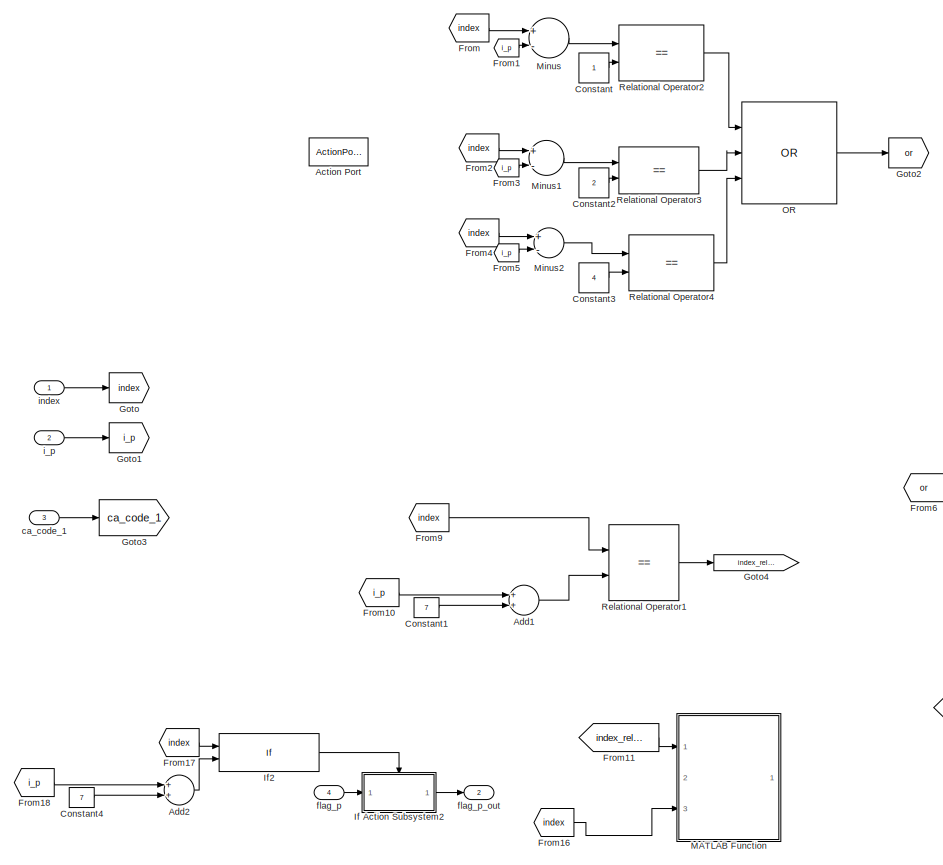
[diagram: Switch Case Action Subsystem1/For Iterator Subsystem/GetGpsL1C/If Action Subsystem/Subsystem/For Iterator Subsystem1/If Action Subsystem2 - part 1/2, left side, full height]
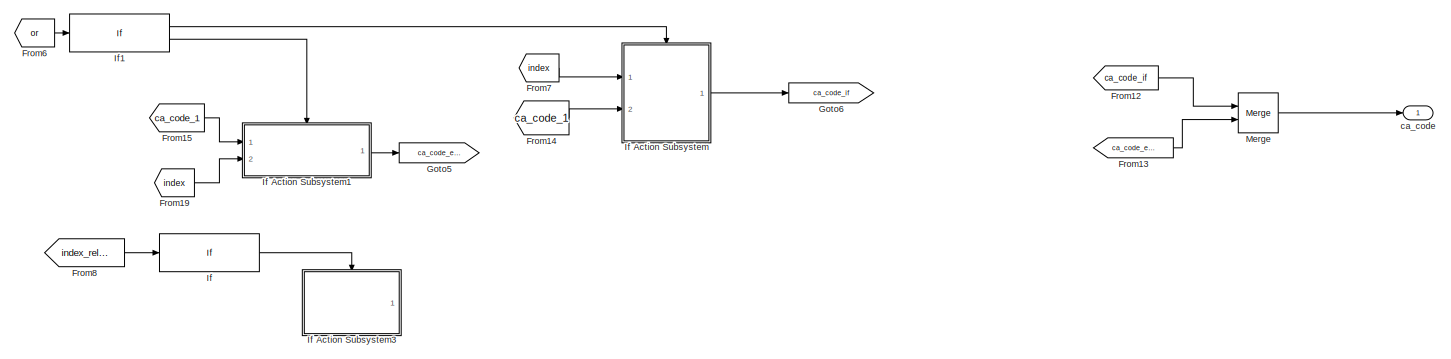
[diagram: Switch Case Action Subsystem1/For Iterator Subsystem/GetGpsL1C/If Action Subsystem/Subsystem/For Iterator Subsystem1/If Action Subsystem2 - part 2/2, bottom right region]
BLOCK [SubSystem] Switch Case Action Subsystem1/For Iterator Subsystem/GetGpsL1C/If Action Subsystem/Subsystem/For Iterator Subsystem1/If Action Subsystem2
  Ports = [4, 2, 0, 0, 0, 0, 0, 1]
  RequestExecContextInheritance = off
  TreatAsAtomicUnit = on
BLOCK [ActionPort] Switch Case Action Subsystem1/For Iterator Subsystem/GetGpsL1C/If Action Subsystem/Subsystem/For Iterator Subsystem1/If Action Subsystem2/Action Port
  ActionType = then
BLOCK [Sum] Switch Case Action Subsystem1/For Iterator Subsystem/GetGpsL1C/If Action Subsystem/Subsystem/For Iterator Subsystem1/If Action Subsystem2/Add1
  Commented = on
  InputSameDT = off
  OutDataTypeStr = Inherit: Inherit via internal rule
  Ports = [2, 1]
  SaturateOnIntegerOverflow = off
BLOCK [Sum] Switch Case Action Subsystem1/For Iterator Subsystem/GetGpsL1C/If Action Subsystem/Subsystem/For Iterator Subsystem1/If Action Subsystem2/Add2
  InputSameDT = off
  OutDataTypeStr = Inherit: Inherit via internal rule
  Ports = [2, 1]
  SaturateOnIntegerOverflow = off
BLOCK [Constant] Switch Case Action Subsystem1/For Iterator Subsystem/GetGpsL1C/If Action Subsystem/Subsystem/For Iterator Subsystem1/If Action Subsystem2/Constant
BLOCK [Constant] Switch Case Action Subsystem1/For Iterator Subsystem/GetGpsL1C/If Action Subsystem/Subsystem/For Iterator Subsystem1/If Action Subsystem2/Constant1
  Commented = on
  Value = 7
BLOCK [Constant] Switch Case Action Subsystem1/For Iterator Subsystem/GetGpsL1C/If Action Subsystem/Subsystem/For Iterator Subsystem1/If Action Subsystem2/Constant2
  Value = 2
BLOCK [Constant] Switch Case Action Subsystem1/For Iterator Subsystem/GetGpsL1C/If Action Subsystem/Subsystem/For Iterator Subsystem1/If Action Subsystem2/Constant3
  Value = 4
BLOCK [Constant] Switch Case Action Subsystem1/For Iterator Subsystem/GetGpsL1C/If Action Subsystem/Subsystem/For Iterator Subsystem1/If Action Subsystem2/Constant4
  OutDataTypeStr = int32
  Value = 7
BLOCK [From] Switch Case Action Subsystem1/For Iterator Subsystem/GetGpsL1C/If Action Subsystem/Subsystem/For Iterator Subsystem1/If Action Subsystem2/From
  GotoTag = index
BLOCK [From] Switch Case Action Subsystem1/For Iterator Subsystem/GetGpsL1C/If Action Subsystem/Subsystem/For Iterator Subsystem1/If Action Subsystem2/From1
  GotoTag = i_p
BLOCK [From] Switch Case Action Subsystem1/For Iterator Subsystem/GetGpsL1C/If Action Subsystem/Subsystem/For Iterator Subsystem1/If Action Subsystem2/From10
  Commented = on
  GotoTag = i_p
BLOCK [From] Switch Case Action Subsystem1/For Iterator Subsystem/GetGpsL1C/If Action Subsystem/Subsystem/For Iterator Subsystem1/If Action Subsystem2/From11
  Commented = on
  GotoTag = index_relational
BLOCK [From] Switch Case Action Subsystem1/For Iterator Subsystem/GetGpsL1C/If Action Subsystem/Subsystem/For Iterator Subsystem1/If Action Subsystem2/From12
  GotoTag = ca_code_if
BLOCK [From] Switch Case Action Subsystem1/For Iterator Subsystem/GetGpsL1C/If Action Subsystem/Subsystem/For Iterator Subsystem1/If Action Subsystem2/From13
  GotoTag = ca_code_else
BLOCK [From] Switch Case Action Subsystem1/For Iterator Subsystem/GetGpsL1C/If Action Subsystem/Subsystem/For Iterator Subsystem1/If Action Subsystem2/From14
  GotoTag = ca_code_1
BLOCK [From] Switch Case Action Subsystem1/For Iterator Subsystem/GetGpsL1C/If Action Subsystem/Subsystem/For Iterator Subsystem1/If Action Subsystem2/From15
  GotoTag = ca_code_1
BLOCK [From] Switch Case Action Subsystem1/For Iterator Subsystem/GetGpsL1C/If Action Subsystem/Subsystem/For Iterator Subsystem1/If Action Subsystem2/From16
  Commented = on
  GotoTag = index
BLOCK [From] Switch Case Action Subsystem1/For Iterator Subsystem/GetGpsL1C/If Action Subsystem/Subsystem/For Iterator Subsystem1/If Action Subsystem2/From17
  GotoTag = index
BLOCK [From] Switch Case Action Subsystem1/For Iterator Subsystem/GetGpsL1C/If Action Subsystem/Subsystem/For Iterator Subsystem1/If Action Subsystem2/From18
  GotoTag = i_p
BLOCK [From] Switch Case Action Subsystem1/For Iterator Subsystem/GetGpsL1C/If Action Subsystem/Subsystem/For Iterator Subsystem1/If Action Subsystem2/From19
  GotoTag = index
BLOCK [From] Switch Case Action Subsystem1/For Iterator Subsystem/GetGpsL1C/If Action Subsystem/Subsystem/For Iterator Subsystem1/If Action Subsystem2/From2
  GotoTag = index
BLOCK [From] Switch Case Action Subsystem1/For Iterator Subsystem/GetGpsL1C/If Action Subsystem/Subsystem/For Iterator Subsystem1/If Action Subsystem2/From3
  GotoTag = i_p
BLOCK [From] Switch Case Action Subsystem1/For Iterator Subsystem/GetGpsL1C/If Action Subsystem/Subsystem/For Iterator Subsystem1/If Action Subsystem2/From4
  GotoTag = index
BLOCK [From] Switch Case Action Subsystem1/For Iterator Subsystem/GetGpsL1C/If Action Subsystem/Subsystem/For Iterator Subsystem1/If Action Subsystem2/From5
  GotoTag = i_p
BLOCK [From] Switch Case Action Subsystem1/For Iterator Subsystem/GetGpsL1C/If Action Subsystem/Subsystem/For Iterator Subsystem1/If Action Subsystem2/From6
  GotoTag = or
BLOCK [From] Switch Case Action Subsystem1/For Iterator Subsystem/GetGpsL1C/If Action Subsystem/Subsystem/For Iterator Subsystem1/If Action Subsystem2/From7
  GotoTag = index
BLOCK [From] Switch Case Action Subsystem1/For Iterator Subsystem/GetGpsL1C/If Action Subsystem/Subsystem/For Iterator Subsystem1/If Action Subsystem2/From8
  Commented = on
  GotoTag = index_relational
BLOCK [From] Switch Case Action Subsystem1/For Iterator Subsystem/GetGpsL1C/If Action Subsystem/Subsystem/For Iterator Subsystem1/If Action Subsystem2/From9
  Commented = on
  GotoTag = index
BLOCK [Goto] Switch Case Action Subsystem1/For Iterator Subsystem/GetGpsL1C/If Action Subsystem/Subsystem/For Iterator Subsystem1/If Action Subsystem2/Goto
  GotoTag = index
BLOCK [Goto] Switch Case Action Subsystem1/For Iterator Subsystem/GetGpsL1C/If Action Subsystem/Subsystem/For Iterator Subsystem1/If Action Subsystem2/Goto1
  GotoTag = i_p
BLOCK [Goto] Switch Case Action Subsystem1/For Iterator Subsystem/GetGpsL1C/If Action Subsystem/Subsystem/For Iterator Subsystem1/If Action Subsystem2/Goto2
  GotoTag = or
BLOCK [Goto] Switch Case Action Subsystem1/For Iterator Subsystem/GetGpsL1C/If Action Subsystem/Subsystem/For Iterator Subsystem1/If Action Subsystem2/Goto3
  GotoTag = ca_code_1
BLOCK [Goto] Switch Case Action Subsystem1/For Iterator Subsystem/GetGpsL1C/If Action Subsystem/Subsystem/For Iterator Subsystem1/If Action Subsystem2/Goto4
  Commented = on
  GotoTag = index_relational
BLOCK [Goto] Switch Case Action Subsystem1/For Iterator Subsystem/GetGpsL1C/If Action Subsystem/Subsystem/For Iterator Subsystem1/If Action Subsystem2/Goto5
  GotoTag = ca_code_else
BLOCK [Goto] Switch Case Action Subsystem1/For Iterator Subsystem/GetGpsL1C/If Action Subsystem/Subsystem/For Iterator Subsystem1/If Action Subsystem2/Goto6
  GotoTag = ca_code_if
BLOCK [If] Switch Case Action Subsystem1/For Iterator Subsystem/GetGpsL1C/If Action Subsystem/Subsystem/For Iterator Subsystem1/If Action Subsystem2/If
  Commented = on
  IfExpression = u1 ==1
  Ports = [1, 1]
  ShowElse = off
BLOCK [SubSystem] Switch Case Action Subsystem1/For Iterator Subsystem/GetGpsL1C/If Action Subsystem/Subsystem/For Iterator Subsystem1/If Action Subsystem2/If Action Subsystem
  Ports = [2, 1, 0, 0, 0, 0, 0, 1]
  RequestExecContextInheritance = off
  TreatAsAtomicUnit = on
BLOCK [ActionPort] Switch Case Action Subsystem1/For Iterator Subsystem/GetGpsL1C/If Action Subsystem/Subsystem/For Iterator Subsystem1/If Action Subsystem2/If Action Subsystem/Action Port
  ActionType = then
BLOCK [Assignment] Switch Case Action Subsystem1/For Iterator Subsystem/GetGpsL1C/If Action Subsystem/Subsystem/For Iterator Subsystem1/If Action Subsystem2/If Action Subsystem/Assignment
  Commented = on
  DiagnosticForDimensions = Warning
  IndexOptions = Index vector (port)
  Indices = [1:1023]
  OutputSizes = 1
  Ports = [3, 1]
BLOCK [Assignment] Switch Case Action Subsystem1/For Iterator Subsystem/GetGpsL1C/If Action Subsystem/Subsystem/For Iterator Subsystem1/If Action Subsystem2/If Action Subsystem/Assignment1
  DiagnosticForDimensions = Warning
  IndexOptions = Index vector (port)
  Indices = [1:1023]
  OutputSizes = 1
  Ports = [3, 1]
BLOCK [Constant] Switch Case Action Subsystem1/For Iterator Subsystem/GetGpsL1C/If Action Subsystem/Subsystem/For Iterator Subsystem1/If Action Subsystem2/If Action Subsystem/Constant
BLOCK [DataStoreRead] Switch Case Action Subsystem1/For Iterator Subsystem/GetGpsL1C/If Action Subsystem/Subsystem/For Iterator Subsystem1/If Action Subsystem2/If Action Subsystem/Data Store Read
  DataStoreName = ca_code
  Ports = [0, 1]
BLOCK [DataTypeConversion] Switch Case Action Subsystem1/For Iterator Subsystem/GetGpsL1C/If Action Subsystem/Subsystem/For Iterator Subsystem1/If Action Subsystem2/If Action Subsystem/Data Type Conversion
  Commented = on
  OutDataTypeStr = double
  RndMeth = Floor
  SaturateOnIntegerOverflow = off
BLOCK [DataTypeConversion] Switch Case Action Subsystem1/For Iterator Subsystem/GetGpsL1C/If Action Subsystem/Subsystem/For Iterator Subsystem1/If Action Subsystem2/If Action Subsystem/Data Type Conversion1
  OutDataTypeStr = boolean
  RndMeth = Floor
  SaturateOnIntegerOverflow = off
BLOCK [Display] Switch Case Action Subsystem1/For Iterator Subsystem/GetGpsL1C/If Action Subsystem/Subsystem/For Iterator Subsystem1/If Action Subsystem2/If Action Subsystem/Display
  Decimation = 1
  Ports = [1]
BLOCK [Goto] Switch Case Action Subsystem1/For Iterator Subsystem/GetGpsL1C/If Action Subsystem/Subsystem/For Iterator Subsystem1/If Action Subsystem2/If Action Subsystem/Goto
BLOCK [SubSystem] Switch Case Action Subsystem1/For Iterator Subsystem/GetGpsL1C/If Action Subsystem/Subsystem/For Iterator Subsystem1/If Action Subsystem2/If Action Subsystem/MATLAB Function
  Commented = on
  ErrorFcn = Stateflow.Translate.translate
  PermitHierarchicalResolution = ExplicitOnly
  Ports = [2, 1]
  RequestExecContextInheritance = off
  SFBlockType = MATLAB Function
  TreatAsAtomicUnit = on
BLOCK [Demux] Switch Case Action Subsystem1/For Iterator Subsystem/GetGpsL1C/If Action Subsystem/Subsystem/For Iterator Subsystem1/If Action Subsystem2/If Action Subsystem/MATLAB Function/ Demux 
  Outputs = 1
  Ports = [1, 1]
BLOCK [S-Function] Switch Case Action Subsystem1/For Iterator Subsystem/GetGpsL1C/If Action Subsystem/Subsystem/For Iterator Subsystem1/If Action Subsystem2/If Action Subsystem/MATLAB Function/ SFunction 
  EnableBusSupport = on
  FunctionName = sf_sfun
  PortCounts = [2 2]
  Ports = [2, 2]
  SFcnIsStateOwnerBlock = off
  SFunctionDeploymentMode = off
  Tag = Stateflow S-Function case14 13
BLOCK [Terminator] Switch Case Action Subsystem1/For Iterator Subsystem/GetGpsL1C/If Action Subsystem/Subsystem/For Iterator Subsystem1/If Action Subsystem2/If Action Subsystem/MATLAB Function/ Terminator 
BLOCK [Outport] Switch Case Action Subsystem1/For Iterator Subsystem/GetGpsL1C/If Action Subsystem/Subsystem/For Iterator Subsystem1/If Action Subsystem2/If Action Subsystem/MATLAB Function/Ca_code
  IconDisplay = Port number
BLOCK [Inport] Switch Case Action Subsystem1/For Iterator Subsystem/GetGpsL1C/If Action Subsystem/Subsystem/For Iterator Subsystem1/If Action Subsystem2/If Action Subsystem/MATLAB Function/Ca_code 
  IconDisplay = Port number
BLOCK [Inport] Switch Case Action Subsystem1/For Iterator Subsystem/GetGpsL1C/If Action Subsystem/Subsystem/For Iterator Subsystem1/If Action Subsystem2/If Action Subsystem/MATLAB Function/index
  IconDisplay = Port number
  Port = 2
BLOCK [SubSystem] Switch Case Action Subsystem1/For Iterator Subsystem/GetGpsL1C/If Action Subsystem/Subsystem/For Iterator Subsystem1/If Action Subsystem2/If Action Subsystem/MATLAB Function15
  Commented = on
  ErrorFcn = Stateflow.Translate.translate
  PermitHierarchicalResolution = ExplicitOnly
  Ports = [0, 1]
  RequestExecContextInheritance = off
  SFBlockType = MATLAB Function
  TreatAsAtomicUnit = on
BLOCK [Demux] Switch Case Action Subsystem1/For Iterator Subsystem/GetGpsL1C/If Action Subsystem/Subsystem/For Iterator Subsystem1/If Action Subsystem2/If Action Subsystem/MATLAB Function15/ Demux 
  Outputs = 1
  Ports = [1, 1]
BLOCK [Ground] Switch Case Action Subsystem1/For Iterator Subsystem/GetGpsL1C/If Action Subsystem/Subsystem/For Iterator Subsystem1/If Action Subsystem2/If Action Subsystem/MATLAB Function15/ Ground 
BLOCK [S-Function] Switch Case Action Subsystem1/For Iterator Subsystem/GetGpsL1C/If Action Subsystem/Subsystem/For Iterator Subsystem1/If Action Subsystem2/If Action Subsystem/MATLAB Function15/ SFunction 
  EnableBusSupport = on
  FunctionName = sf_sfun
  PortCounts = [1 2]
  Ports = [1, 2]
  SFcnIsStateOwnerBlock = off
  SFunctionDeploymentMode = off
  Tag = Stateflow S-Function case14 1
BLOCK [Terminator] Switch Case Action Subsystem1/For Iterator Subsystem/GetGpsL1C/If Action Subsystem/Subsystem/For Iterator Subsystem1/If Action Subsystem2/If Action Subsystem/MATLAB Function15/ Terminator 
BLOCK [Outport] Switch Case Action Subsystem1/For Iterator Subsystem/GetGpsL1C/If Action Subsystem/Subsystem/For Iterator Subsystem1/If Action Subsystem2/If Action Subsystem/MATLAB Function15/ca_code
  IconDisplay = Port number
BLOCK [Inport] Switch Case Action Subsystem1/For Iterator Subsystem/GetGpsL1C/If Action Subsystem/Subsystem/For Iterator Subsystem1/If Action Subsystem2/If Action Subsystem/ca_code
  IconDisplay = Port number
  Port = 2
BLOCK [Outport] Switch Case Action Subsystem1/For Iterator Subsystem/GetGpsL1C/If Action Subsystem/Subsystem/For Iterator Subsystem1/If Action Subsystem2/If Action Subsystem/ca_code_out
  IconDisplay = Port number
BLOCK [Inport] Switch Case Action Subsystem1/For Iterator Subsystem/GetGpsL1C/If Action Subsystem/Subsystem/For Iterator Subsystem1/If Action Subsystem2/If Action Subsystem/index 
  IconDisplay = Port number
BLOCK [SubSystem] Switch Case Action Subsystem1/For Iterator Subsystem/GetGpsL1C/If Action Subsystem/Subsystem/For Iterator Subsystem1/If Action Subsystem2/If Action Subsystem1
  Ports = [2, 1, 0, 0, 0, 0, 0, 1]
  RequestExecContextInheritance = off
  TreatAsAtomicUnit = on
BLOCK [ActionPort] Switch Case Action Subsystem1/For Iterator Subsystem/GetGpsL1C/If Action Subsystem/Subsystem/For Iterator Subsystem1/If Action Subsystem2/If Action Subsystem1/Action Port
  ActionType = else
BLOCK [Assignment] Switch Case Action Subsystem1/For Iterator Subsystem/GetGpsL1C/If Action Subsystem/Subsystem/For Iterator Subsystem1/If Action Subsystem2/If Action Subsystem1/Assignment
  DiagnosticForDimensions = Warning
  IndexOptions = Index vector (port)
  Indices = [1:1023]
  OutputSizes = 1
  Ports = [3, 1]
BLOCK [Constant] Switch Case Action Subsystem1/For Iterator Subsystem/GetGpsL1C/If Action Subsystem/Subsystem/For Iterator Subsystem1/If Action Subsystem2/If Action Subsystem1/Constant
  Value = 0
BLOCK [DataStoreRead] Switch Case Action Subsystem1/For Iterator Subsystem/GetGpsL1C/If Action Subsystem/Subsystem/For Iterator Subsystem1/If Action Subsystem2/If Action Subsystem1/Data Store Read
  DataStoreName = ca_code
  Ports = [0, 1]
BLOCK [DataTypeConversion] Switch Case Action Subsystem1/For Iterator Subsystem/GetGpsL1C/If Action Subsystem/Subsystem/For Iterator Subsystem1/If Action Subsystem2/If Action Subsystem1/Data Type Conversion
  OutDataTypeStr = boolean
  RndMeth = Floor
  SaturateOnIntegerOverflow = off
BLOCK [Display] Switch Case Action Subsystem1/For Iterator Subsystem/GetGpsL1C/If Action Subsystem/Subsystem/For Iterator Subsystem1/If Action Subsystem2/If Action Subsystem1/Display
  Decimation = 1
  Ports = [1]
BLOCK [Goto] Switch Case Action Subsystem1/For Iterator Subsystem/GetGpsL1C/If Action Subsystem/Subsystem/For Iterator Subsystem1/If Action Subsystem2/If Action Subsystem1/Goto
BLOCK [Outport] Switch Case Action Subsystem1/For Iterator Subsystem/GetGpsL1C/If Action Subsystem/Subsystem/For Iterator Subsystem1/If Action Subsystem2/If Action Subsystem1/ca_code
  IconDisplay = Port number
BLOCK [Inport] Switch Case Action Subsystem1/For Iterator Subsystem/GetGpsL1C/If Action Subsystem/Subsystem/For Iterator Subsystem1/If Action Subsystem2/If Action Subsystem1/ca_code_in
  IconDisplay = Port number
BLOCK [Inport] Switch Case Action Subsystem1/For Iterator Subsystem/GetGpsL1C/If Action Subsystem/Subsystem/For Iterator Subsystem1/If Action Subsystem2/If Action Subsystem1/index
  IconDisplay = Port number
  Port = 2
BLOCK [SubSystem] Switch Case Action Subsystem1/For Iterator Subsystem/GetGpsL1C/If Action Subsystem/Subsystem/For Iterator Subsystem1/If Action Subsystem2/If Action Subsystem2
  Ports = [1, 1, 0, 0, 0, 0, 0, 1]
  RequestExecContextInheritance = off
  TreatAsAtomicUnit = on
BLOCK [ActionPort] Switch Case Action Subsystem1/For Iterator Subsystem/GetGpsL1C/If Action Subsystem/Subsystem/For Iterator Subsystem1/If Action Subsystem2/If Action Subsystem2/Action Port
  ActionType = then
BLOCK [Display] Switch Case Action Subsystem1/For Iterator Subsystem/GetGpsL1C/If Action Subsystem/Subsystem/For Iterator Subsystem1/If Action Subsystem2/If Action Subsystem2/Display
  Decimation = 1
  Ports = [1]
BLOCK [SubSystem] Switch Case Action Subsystem1/For Iterator Subsystem/GetGpsL1C/If Action Subsystem/Subsystem/For Iterator Subsystem1/If Action Subsystem2/If Action Subsystem2/MATLAB Function
  ErrorFcn = Stateflow.Translate.translate
  PermitHierarchicalResolution = ExplicitOnly
  Ports = [1, 1]
  RequestExecContextInheritance = off
  SFBlockType = MATLAB Function
  TreatAsAtomicUnit = on
BLOCK [Demux] Switch Case Action Subsystem1/For Iterator Subsystem/GetGpsL1C/If Action Subsystem/Subsystem/For Iterator Subsystem1/If Action Subsystem2/If Action Subsystem2/MATLAB Function/ Demux 
  Outputs = 1
  Ports = [1, 1]
BLOCK [S-Function] Switch Case Action Subsystem1/For Iterator Subsystem/GetGpsL1C/If Action Subsystem/Subsystem/For Iterator Subsystem1/If Action Subsystem2/If Action Subsystem2/MATLAB Function/ SFunction 
  EnableBusSupport = on
  FunctionName = sf_sfun
  PortCounts = [1 2]
  Ports = [1, 2]
  SFcnIsStateOwnerBlock = off
  SFunctionDeploymentMode = off
  Tag = Stateflow S-Function case14 82
BLOCK [Terminator] Switch Case Action Subsystem1/For Iterator Subsystem/GetGpsL1C/If Action Subsystem/Subsystem/For Iterator Subsystem1/If Action Subsystem2/If Action Subsystem2/MATLAB Function/ Terminator 
BLOCK [Inport] Switch Case Action Subsystem1/For Iterator Subsystem/GetGpsL1C/If Action Subsystem/Subsystem/For Iterator Subsystem1/If Action Subsystem2/If Action Subsystem2/MATLAB Function/u
  IconDisplay = Port number
BLOCK [Outport] Switch Case Action Subsystem1/For Iterator Subsystem/GetGpsL1C/If Action Subsystem/Subsystem/For Iterator Subsystem1/If Action Subsystem2/If Action Subsystem2/MATLAB Function/y
  IconDisplay = Port number
BLOCK [Inport] Switch Case Action Subsystem1/For Iterator Subsystem/GetGpsL1C/If Action Subsystem/Subsystem/For Iterator Subsystem1/If Action Subsystem2/If Action Subsystem2/flag_p
  IconDisplay = Port number
BLOCK [Outport] Switch Case Action Subsystem1/For Iterator Subsystem/GetGpsL1C/If Action Subsystem/Subsystem/For Iterator Subsystem1/If Action Subsystem2/If Action Subsystem2/flag_p_out 
  IconDisplay = Port number
  OutDataTypeStr = int32
BLOCK [SubSystem] Switch Case Action Subsystem1/For Iterator Subsystem/GetGpsL1C/If Action Subsystem/Subsystem/For Iterator Subsystem1/If Action Subsystem2/If Action Subsystem3
  Commented = on
  Ports = [0, 1, 0, 0, 0, 0, 0, 1]
  RequestExecContextInheritance = off
  TreatAsAtomicUnit = on
BLOCK [ActionPort] Switch Case Action Subsystem1/For Iterator Subsystem/GetGpsL1C/If Action Subsystem/Subsystem/For Iterator Subsystem1/If Action Subsystem2/If Action Subsystem3/Action Port
BLOCK [Constant] Switch Case Action Subsystem1/For Iterator Subsystem/GetGpsL1C/If Action Subsystem/Subsystem/For Iterator Subsystem1/If Action Subsystem2/If Action Subsystem3/Constant
  Commented = on
BLOCK [Constant] Switch Case Action Subsystem1/For Iterator Subsystem/GetGpsL1C/If Action Subsystem/Subsystem/For Iterator Subsystem1/If Action Subsystem2/If Action Subsystem3/Constant1
BLOCK [DataStoreWrite] Switch Case Action Subsystem1/For Iterator Subsystem/GetGpsL1C/If Action Subsystem/Subsystem/For Iterator Subsystem1/If Action Subsystem2/If Action Subsystem3/Data Store Write
  Commented = on
  DataStoreName = Flag_p
  Ports = [1]
BLOCK [Outport] Switch Case Action Subsystem1/For Iterator Subsystem/GetGpsL1C/If Action Subsystem/Subsystem/For Iterator Subsystem1/If Action Subsystem2/If Action Subsystem3/flag_p
  IconDisplay = Port number
BLOCK [If] Switch Case Action Subsystem1/For Iterator Subsystem/GetGpsL1C/If Action Subsystem/Subsystem/For Iterator Subsystem1/If Action Subsystem2/If1
  IfExpression = u1==1
  Ports = [1, 2]
BLOCK [If] Switch Case Action Subsystem1/For Iterator Subsystem/GetGpsL1C/If Action Subsystem/Subsystem/For Iterator Subsystem1/If Action Subsystem2/If2
  IfExpression = u1 ==u2
  NumInputs = 2
  Ports = [2, 1]
  ShowElse = off
BLOCK [SubSystem] Switch Case Action Subsystem1/For Iterator Subsystem/GetGpsL1C/If Action Subsystem/Subsystem/For Iterator Subsystem1/If Action Subsystem2/MATLAB Function
  Commented = on
  ErrorFcn = Stateflow.Translate.translate
  PermitHierarchicalResolution = ExplicitOnly
  Ports = [3, 1]
  RequestExecContextInheritance = off
  SFBlockType = MATLAB Function
  TreatAsAtomicUnit = on
BLOCK [Demux] Switch Case Action Subsystem1/For Iterator Subsystem/GetGpsL1C/If Action Subsystem/Subsystem/For Iterator Subsystem1/If Action Subsystem2/MATLAB Function/ Demux 
  Outputs = 1
  Ports = [1, 1]
BLOCK [S-Function] Switch Case Action Subsystem1/For Iterator Subsystem/GetGpsL1C/If Action Subsystem/Subsystem/For Iterator Subsystem1/If Action Subsystem2/MATLAB Function/ SFunction 
  EnableBusSupport = on
  FunctionName = sf_sfun
  PortCounts = [3 2]
  Ports = [3, 2]
  SFcnIsStateOwnerBlock = off
  SFunctionDeploymentMode = off
  Tag = Stateflow S-Function case14 55
BLOCK [Terminator] Switch Case Action Subsystem1/For Iterator Subsystem/GetGpsL1C/If Action Subsystem/Subsystem/For Iterator Subsystem1/If Action Subsystem2/MATLAB Function/ Terminator 
BLOCK [Inport] Switch Case Action Subsystem1/For Iterator Subsystem/GetGpsL1C/If Action Subsystem/Subsystem/For Iterator Subsystem1/If Action Subsystem2/MATLAB Function/flag_p
  IconDisplay = Port number
  Port = 2
BLOCK [Outport] Switch Case Action Subsystem1/For Iterator Subsystem/GetGpsL1C/If Action Subsystem/Subsystem/For Iterator Subsystem1/If Action Subsystem2/MATLAB Function/flag_p_out
  IconDisplay = Port number
BLOCK [Inport] Switch Case Action Subsystem1/For Iterator Subsystem/GetGpsL1C/If Action Subsystem/Subsystem/For Iterator Subsystem1/If Action Subsystem2/MATLAB Function/index
  IconDisplay = Port number
  Port = 3
BLOCK [Inport] Switch Case Action Subsystem1/For Iterator Subsystem/GetGpsL1C/If Action Subsystem/Subsystem/For Iterator Subsystem1/If Action Subsystem2/MATLAB Function/index_relational
  IconDisplay = Port number
BLOCK [Merge] Switch Case Action Subsystem1/For Iterator Subsystem/GetGpsL1C/If Action Subsystem/Subsystem/For Iterator Subsystem1/If Action Subsystem2/Merge
  Ports = [2, 1]
BLOCK [Sum] Switch Case Action Subsystem1/For Iterator Subsystem/GetGpsL1C/If Action Subsystem/Subsystem/For Iterator Subsystem1/If Action Subsystem2/Minus
  InputSameDT = off
  Inputs = +-
  OutDataTypeStr = Inherit: Inherit via internal rule
  Ports = [2, 1]
  SaturateOnIntegerOverflow = off
BLOCK [Sum] Switch Case Action Subsystem1/For Iterator Subsystem/GetGpsL1C/If Action Subsystem/Subsystem/For Iterator Subsystem1/If Action Subsystem2/Minus1
  InputSameDT = off
  Inputs = +-
  OutDataTypeStr = Inherit: Inherit via internal rule
  Ports = [2, 1]
  SaturateOnIntegerOverflow = off
BLOCK [Sum] Switch Case Action Subsystem1/For Iterator Subsystem/GetGpsL1C/If Action Subsystem/Subsystem/For Iterator Subsystem1/If Action Subsystem2/Minus2
  InputSameDT = off
  Inputs = +-
  OutDataTypeStr = Inherit: Inherit via internal rule
  Ports = [2, 1]
  SaturateOnIntegerOverflow = off
BLOCK [Logic] Switch Case Action Subsystem1/For Iterator Subsystem/GetGpsL1C/If Action Subsystem/Subsystem/For Iterator Subsystem1/If Action Subsystem2/OR
  AllPortsSameDT = off
  IconShape = distinctive
  Inputs = 3
  Operator = OR
  OutDataTypeStr = boolean
  Ports = [3, 1]
BLOCK [RelationalOperator] Switch Case Action Subsystem1/For Iterator Subsystem/GetGpsL1C/If Action Subsystem/Subsystem/For Iterator Subsystem1/If Action Subsystem2/Relational Operator1
  Commented = on
  InputSameDT = off
  Operator = ==
  OutDataTypeStr = boolean
  Ports = [2, 1]
BLOCK [RelationalOperator] Switch Case Action Subsystem1/For Iterator Subsystem/GetGpsL1C/If Action Subsystem/Subsystem/For Iterator Subsystem1/If Action Subsystem2/Relational Operator2
  InputSameDT = off
  Operator = ==
  OutDataTypeStr = boolean
  Ports = [2, 1]
BLOCK [RelationalOperator] Switch Case Action Subsystem1/For Iterator Subsystem/GetGpsL1C/If Action Subsystem/Subsystem/For Iterator Subsystem1/If Action Subsystem2/Relational Operator3
  InputSameDT = off
  Operator = ==
  OutDataTypeStr = boolean
  Ports = [2, 1]
BLOCK [RelationalOperator] Switch Case Action Subsystem1/For Iterator Subsystem/GetGpsL1C/If Action Subsystem/Subsystem/For Iterator Subsystem1/If Action Subsystem2/Relational Operator4
  InputSameDT = off
  Operator = ==
  OutDataTypeStr = boolean
  Ports = [2, 1]
BLOCK [Outport] Switch Case Action Subsystem1/For Iterator Subsystem/GetGpsL1C/If Action Subsystem/Subsystem/For Iterator Subsystem1/If Action Subsystem2/ca_code 
  IconDisplay = Port number
BLOCK [Inport] Switch Case Action Subsystem1/For Iterator Subsystem/GetGpsL1C/If Action Subsystem/Subsystem/For Iterator Subsystem1/If Action Subsystem2/ca_code_1
  IconDisplay = Port number
  Port = 3
BLOCK [Inport] Switch Case Action Subsystem1/For Iterator Subsystem/GetGpsL1C/If Action Subsystem/Subsystem/For Iterator Subsystem1/If Action Subsystem2/flag_p
  IconDisplay = Port number
  OutDataTypeStr = int32
  Port = 4
BLOCK [Outport] Switch Case Action Subsystem1/For Iterator Subsystem/GetGpsL1C/If Action Subsystem/Subsystem/For Iterator Subsystem1/If Action Subsystem2/flag_p_out 
  IconDisplay = Port number
  OutDataTypeStr = int32
  Port = 2
BLOCK [Inport] Switch Case Action Subsystem1/For Iterator Subsystem/GetGpsL1C/If Action Subsystem/Subsystem/For Iterator Subsystem1/If Action Subsystem2/i_p
  IconDisplay = Port number
  OutDataTypeStr = int32
  Port = 2
BLOCK [Inport] Switch Case Action Subsystem1/For Iterator Subsystem/GetGpsL1C/If Action Subsystem/Subsystem/For Iterator Subsystem1/If Action Subsystem2/index
  IconDisplay = Port number
BLOCK [Logic] Switch Case Action Subsystem1/For Iterator Subsystem/GetGpsL1C/If Action Subsystem/Subsystem/For Iterator Subsystem1/Logical Operator
  AllPortsSameDT = off
  OutDataTypeStr = boolean
  Ports = [2, 1]
BLOCK [Merge] Switch Case Action Subsystem1/For Iterator Subsystem/GetGpsL1C/If Action Subsystem/Subsystem/For Iterator Subsystem1/Merge
  Ports = [2, 1]
BLOCK [RelationalOperator] Switch Case Action Subsystem1/For Iterator Subsystem/GetGpsL1C/If Action Subsystem/Subsystem/For Iterator Subsystem1/Relational Operator
  InputSameDT = off
  OutDataTypeStr = boolean
  Ports = [2, 1]
BLOCK [RelationalOperator] Switch Case Action Subsystem1/For Iterator Subsystem/GetGpsL1C/If Action Subsystem/Subsystem/For Iterator Subsystem1/Relational Operator1
  InputSameDT = off
  Operator = <
  OutDataTypeStr = boolean
  Ports = [2, 1]
BLOCK [Inport] Switch Case Action Subsystem1/For Iterator Subsystem/GetGpsL1C/If Action Subsystem/Subsystem/For Iterator Subsystem1/ca_code_14
  IconDisplay = Port number
  Port = 2
BLOCK [Outport] Switch Case Action Subsystem1/For Iterator Subsystem/GetGpsL1C/If Action Subsystem/Subsystem/For Iterator Subsystem1/final_ca_code
  IconDisplay = Port number
BLOCK [Inport] Switch Case Action Subsystem1/For Iterator Subsystem/GetGpsL1C/If Action Subsystem/Subsystem/For Iterator Subsystem1/flag_p
  IconDisplay = Port number
  OutDataTypeStr = int32
  Port = 4
BLOCK [Inport] Switch Case Action Subsystem1/For Iterator Subsystem/GetGpsL1C/If Action Subsystem/Subsystem/For Iterator Subsystem1/i_p
  IconDisplay = Port number
  OutDataTypeStr = int32
BLOCK [Outport] Switch Case Action Subsystem1/For Iterator Subsystem/GetGpsL1C/If Action Subsystem/Subsystem/For Iterator Subsystem1/index
  IconDisplay = Port number
  Port = 2
BLOCK [Inport] Switch Case Action Subsystem1/For Iterator Subsystem/GetGpsL1C/If Action Subsystem/Subsystem/For Iterator Subsystem1/weil_seq_p
  IconDisplay = Port number
  Port = 3
BLOCK [SubSystem] Switch Case Action Subsystem1/For Iterator Subsystem/GetGpsL1C/If Action Subsystem/Subsystem/For Iterator Subsystem2
  Ports = [2, 1]
  RequestExecContextInheritance = off
  TreatAsAtomicUnit = on
BLOCK [Display] Switch Case Action Subsystem1/For Iterator Subsystem/GetGpsL1C/If Action Subsystem/Subsystem/For Iterator Subsystem2/Display
  Decimation = 1
  Ports = [1]
BLOCK [Display] Switch Case Action Subsystem1/For Iterator Subsystem/GetGpsL1C/If Action Subsystem/Subsystem/For Iterator Subsystem2/Display1
  Decimation = 1
  Ports = [1]
BLOCK [Display] Switch Case Action Subsystem1/For Iterator Subsystem/GetGpsL1C/If Action Subsystem/Subsystem/For Iterator Subsystem2/Display2
  Decimation = 1
  Ports = [1]
BLOCK [Display] Switch Case Action Subsystem1/For Iterator Subsystem/GetGpsL1C/If Action Subsystem/Subsystem/For Iterator Subsystem2/Display3
  Decimation = 1
  Ports = [1]
BLOCK [ForIterator] Switch Case Action Subsystem1/For Iterator Subsystem/GetGpsL1C/If Action Subsystem/Subsystem/For Iterator Subsystem2/For Iterator
  IterationLimit = 10
  Ports = [0, 1]
BLOCK [From] Switch Case Action Subsystem1/For Iterator Subsystem/GetGpsL1C/If Action Subsystem/Subsystem/For Iterator Subsystem2/From
  GotoTag = index
BLOCK [From] Switch Case Action Subsystem1/For Iterator Subsystem/GetGpsL1C/If Action Subsystem/Subsystem/For Iterator Subsystem2/From1
  GotoTag = ca_code
BLOCK [From] Switch Case Action Subsystem1/For Iterator Subsystem/GetGpsL1C/If Action Subsystem/Subsystem/For Iterator Subsystem2/From2
  GotoTag = index1
BLOCK [Goto] Switch Case Action Subsystem1/For Iterator Subsystem/GetGpsL1C/If Action Subsystem/Subsystem/For Iterator Subsystem2/Goto
  GotoTag = index1
BLOCK [Goto] Switch Case Action Subsystem1/For Iterator Subsystem/GetGpsL1C/If Action Subsystem/Subsystem/For Iterator Subsystem2/Goto1
  GotoTag = ca_code
BLOCK [Goto] Switch Case Action Subsystem1/For Iterator Subsystem/GetGpsL1C/If Action Subsystem/Subsystem/For Iterator Subsystem2/Goto2
  GotoTag = index
BLOCK [SubSystem] Switch Case Action Subsystem1/For Iterator Subsystem/GetGpsL1C/If Action Subsystem/Subsystem/For Iterator Subsystem2/MATLAB Function
  ErrorFcn = Stateflow.Translate.translate
  PermitHierarchicalResolution = ExplicitOnly
  Ports = [3, 1]
  RequestExecContextInheritance = off
  SFBlockType = MATLAB Function
  TreatAsAtomicUnit = on
BLOCK [Demux] Switch Case Action Subsystem1/For Iterator Subsystem/GetGpsL1C/If Action Subsystem/Subsystem/For Iterator Subsystem2/MATLAB Function/ Demux 
  Outputs = 1
  Ports = [1, 1]
BLOCK [S-Function] Switch Case Action Subsystem1/For Iterator Subsystem/GetGpsL1C/If Action Subsystem/Subsystem/For Iterator Subsystem2/MATLAB Function/ SFunction 
  EnableBusSupport = on
  FunctionName = sf_sfun
  PortCounts = [3 2]
  Ports = [3, 2]
  SFcnIsStateOwnerBlock = off
  SFunctionDeploymentMode = off
  Tag = Stateflow S-Function case14 22
BLOCK [Terminator] Switch Case Action Subsystem1/For Iterator Subsystem/GetGpsL1C/If Action Subsystem/Subsystem/For Iterator Subsystem2/MATLAB Function/ Terminator 
BLOCK [Inport] Switch Case Action Subsystem1/For Iterator Subsystem/GetGpsL1C/If Action Subsystem/Subsystem/For Iterator Subsystem2/MATLAB Function/index
  IconDisplay = Port number
  Port = 2
BLOCK [Inport] Switch Case Action Subsystem1/For Iterator Subsystem/GetGpsL1C/If Action Subsystem/Subsystem/For Iterator Subsystem2/MATLAB Function/index1
  IconDisplay = Port number
  Port = 3
BLOCK [Outport] Switch Case Action Subsystem1/For Iterator Subsystem/GetGpsL1C/If Action Subsystem/Subsystem/For Iterator Subsystem2/MATLAB Function/value
  IconDisplay = Port number
BLOCK [Inport] Switch Case Action Subsystem1/For Iterator Subsystem/GetGpsL1C/If Action Subsystem/Subsystem/For Iterator Subsystem2/MATLAB Function/value 
  IconDisplay = Port number
BLOCK [Outport] Switch Case Action Subsystem1/For Iterator Subsystem/GetGpsL1C/If Action Subsystem/Subsystem/For Iterator Subsystem2/ca_code
  IconDisplay = Port number
BLOCK [Inport] Switch Case Action Subsystem1/For Iterator Subsystem/GetGpsL1C/If Action Subsystem/Subsystem/For Iterator Subsystem2/ca_code[index]
  IconDisplay = Port number
BLOCK [Inport] Switch Case Action Subsystem1/For Iterator Subsystem/GetGpsL1C/If Action Subsystem/Subsystem/For Iterator Subsystem2/index 
  IconDisplay = Port number
  Port = 2
BLOCK [From] Switch Case Action Subsystem1/For Iterator Subsystem/GetGpsL1C/If Action Subsystem/Subsystem/From
  GotoTag = weil_seq_p
BLOCK [From] Switch Case Action Subsystem1/For Iterator Subsystem/GetGpsL1C/If Action Subsystem/Subsystem/From1
  GotoTag = ca_code
BLOCK [From] Switch Case Action Subsystem1/For Iterator Subsystem/GetGpsL1C/If Action Subsystem/Subsystem/From2
  GotoTag = index
BLOCK [From] Switch Case Action Subsystem1/For Iterator Subsystem/GetGpsL1C/If Action Subsystem/Subsystem/From4
  GotoTag = Legendre_seq10223
BLOCK [Goto] Switch Case Action Subsystem1/For Iterator Subsystem/GetGpsL1C/If Action Subsystem/Subsystem/Goto
  GotoTag = weil_seq_p
BLOCK [Goto] Switch Case Action Subsystem1/For Iterator Subsystem/GetGpsL1C/If Action Subsystem/Subsystem/Goto1
  GotoTag = ca_code
BLOCK [Goto] Switch Case Action Subsystem1/For Iterator Subsystem/GetGpsL1C/If Action Subsystem/Subsystem/Goto2
  GotoTag = index
BLOCK [Goto] Switch Case Action Subsystem1/For Iterator Subsystem/GetGpsL1C/If Action Subsystem/Subsystem/Goto3
  GotoTag = Legendre_seq10223
BLOCK [Inport] Switch Case Action Subsystem1/For Iterator Subsystem/GetGpsL1C/If Action Subsystem/Subsystem/Legendre_seq10223
  IconDisplay = Port number
  Port = 4
BLOCK [Outport] Switch Case Action Subsystem1/For Iterator Subsystem/GetGpsL1C/If Action Subsystem/Subsystem/ca_code[]
  IconDisplay = Port number
BLOCK [Inport] Switch Case Action Subsystem1/For Iterator Subsystem/GetGpsL1C/If Action Subsystem/Subsystem/ca_code_14
  IconDisplay = Port number
  Port = 3
BLOCK [Inport] Switch Case Action Subsystem1/For Iterator Subsystem/GetGpsL1C/If Action Subsystem/Subsystem/flag_p
  IconDisplay = Port number
  Port = 6
BLOCK [Inport] Switch Case Action Subsystem1/For Iterator Subsystem/GetGpsL1C/If Action Subsystem/Subsystem/i_p
  IconDisplay = Port number
  Port = 2
BLOCK [Inport] Switch Case Action Subsystem1/For Iterator Subsystem/GetGpsL1C/If Action Subsystem/Subsystem/w_p
  IconDisplay = Port number
BLOCK [Inport] Switch Case Action Subsystem1/For Iterator Subsystem/GetGpsL1C/If Action Subsystem/Subsystem/weil_seq_p
  IconDisplay = Port number
  Port = 5
BLOCK [Outport] Switch Case Action Subsystem1/For Iterator Subsystem/GetGpsL1C/If Action Subsystem/ca_code
  IconDisplay = Port number
BLOCK [Inport] Switch Case Action Subsystem1/For Iterator Subsystem/GetGpsL1C/If Action Subsystem/ca_code_14
  IconDisplay = Port number
  Port = 4
BLOCK [Inport] Switch Case Action Subsystem1/For Iterator Subsystem/GetGpsL1C/If Action Subsystem/flag_p
  IconDisplay = Port number
  Port = 6
BLOCK [Inport] Switch Case Action Subsystem1/For Iterator Subsystem/GetGpsL1C/If Action Subsystem/i_p
  IconDisplay = Port number
  Port = 2
BLOCK [Inport] Switch Case Action Subsystem1/For Iterator Subsystem/GetGpsL1C/If Action Subsystem/w_p
  IconDisplay = Port number
BLOCK [Inport] Switch Case Action Subsystem1/For Iterator Subsystem/GetGpsL1C/If Action Subsystem/weil_seq_p
  IconDisplay = Port number
  Port = 3
BLOCK [If] Switch Case Action Subsystem1/For Iterator Subsystem/GetGpsL1C/If1
  IfExpression = u1==1
  Ports = [1, 1]
  ShowElse = off
BLOCK [Inport] Switch Case Action Subsystem1/For Iterator Subsystem/GetGpsL1C/Legendre_seq10223
  IconDisplay = Port number
  Port = 3
BLOCK [Outport] Switch Case Action Subsystem1/For Iterator Subsystem/GetGpsL1C/ca_code
  IconDisplay = Port number
BLOCK [Inport] Switch Case Action Subsystem1/For Iterator Subsystem/GetGpsL1C/ca_code_14
  IconDisplay = Port number
  Port = 4
BLOCK [Inport] Switch Case Action Subsystem1/For Iterator Subsystem/GetGpsL1C/flag_p
  IconDisplay = Port number
  OutDataTypeStr = int32
  Port = 6
BLOCK [Inport] Switch Case Action Subsystem1/For Iterator Subsystem/GetGpsL1C/i_p
  IconDisplay = Port number
  Port = 2
BLOCK [Inport] Switch Case Action Subsystem1/For Iterator Subsystem/GetGpsL1C/w_p
  IconDisplay = Port number
BLOCK [Inport] Switch Case Action Subsystem1/For Iterator Subsystem/GetGpsL1C/weil_seq_p
  IconDisplay = Port number
  Port = 5
BLOCK [Goto] Switch Case Action Subsystem1/For Iterator Subsystem/Goto
  GotoTag = sv_id
BLOCK [Goto] Switch Case Action Subsystem1/For Iterator Subsystem/Goto2
  GotoTag = weil_seq_p
BLOCK [Inport] Switch Case Action Subsystem1/For Iterator Subsystem/Insertionindexarrayp
  IconDisplay = Port number
  OutDataTypeStr = int32
  Port = 2
BLOCK [Inport] Switch Case Action Subsystem1/For Iterator Subsystem/Legendre_seq10223
  IconDisplay = Port number
  Port = 3
BLOCK [SubSystem] Switch Case Action Subsystem1/For Iterator Subsystem/MATLAB Function1
  ErrorFcn = Stateflow.Translate.translate
  PermitHierarchicalResolution = ExplicitOnly
  Ports = [2, 1]
  RequestExecContextInheritance = off
  SFBlockType = MATLAB Function
  TreatAsAtomicUnit = on
BLOCK [Demux] Switch Case Action Subsystem1/For Iterator Subsystem/MATLAB Function1/ Demux 
  Outputs = 1
  Ports = [1, 1]
BLOCK [S-Function] Switch Case Action Subsystem1/For Iterator Subsystem/MATLAB Function1/ SFunction 
  EnableBusSupport = on
  FunctionName = sf_sfun
  PortCounts = [2 2]
  Ports = [2, 2]
  SFcnIsStateOwnerBlock = off
  SFunctionDeploymentMode = off
  Tag = Stateflow S-Function case14 71
BLOCK [Terminator] Switch Case Action Subsystem1/For Iterator Subsystem/MATLAB Function1/ Terminator 
BLOCK [Inport] Switch Case Action Subsystem1/For Iterator Subsystem/MATLAB Function1/index
  IconDisplay = Port number
  Port = 2
BLOCK [Inport] Switch Case Action Subsystem1/For Iterator Subsystem/MATLAB Function1/value
  IconDisplay = Port number
BLOCK [Outport] Switch Case Action Subsystem1/For Iterator Subsystem/MATLAB Function1/y
  IconDisplay = Port number
BLOCK [SubSystem] Switch Case Action Subsystem1/For Iterator Subsystem/MATLAB Function2
  ErrorFcn = Stateflow.Translate.translate
  PermitHierarchicalResolution = ExplicitOnly
  Ports = [2, 1]
  RequestExecContextInheritance = off
  SFBlockType = MATLAB Function
  TreatAsAtomicUnit = on
BLOCK [Demux] Switch Case Action Subsystem1/For Iterator Subsystem/MATLAB Function2/ Demux 
  Outputs = 1
  Ports = [1, 1]
BLOCK [S-Function] Switch Case Action Subsystem1/For Iterator Subsystem/MATLAB Function2/ SFunction 
  EnableBusSupport = on
  FunctionName = sf_sfun
  PortCounts = [2 2]
  Ports = [2, 2]
  SFcnIsStateOwnerBlock = off
  SFunctionDeploymentMode = off
  Tag = Stateflow S-Function case14 70
BLOCK [Terminator] Switch Case Action Subsystem1/For Iterator Subsystem/MATLAB Function2/ Terminator 
BLOCK [Inport] Switch Case Action Subsystem1/For Iterator Subsystem/MATLAB Function2/index
  IconDisplay = Port number
  Port = 2
BLOCK [Inport] Switch Case Action Subsystem1/For Iterator Subsystem/MATLAB Function2/value
  IconDisplay = Port number
BLOCK [Outport] Switch Case Action Subsystem1/For Iterator Subsystem/MATLAB Function2/y
  IconDisplay = Port number
BLOCK [SubSystem] Switch Case Action Subsystem1/For Iterator Subsystem/MATLAB Function3
  ErrorFcn = Stateflow.Translate.translate
  PermitHierarchicalResolution = ExplicitOnly
  Ports = [0, 1]
  RequestExecContextInheritance = off
  SFBlockType = MATLAB Function
  TreatAsAtomicUnit = on
BLOCK [Demux] Switch Case Action Subsystem1/For Iterator Subsystem/MATLAB Function3/ Demux 
  Outputs = 1
  Ports = [1, 1]
BLOCK [Ground] Switch Case Action Subsystem1/For Iterator Subsystem/MATLAB Function3/ Ground 
BLOCK [S-Function] Switch Case Action Subsystem1/For Iterator Subsystem/MATLAB Function3/ SFunction 
  EnableBusSupport = on
  FunctionName = sf_sfun
  PortCounts = [1 2]
  Ports = [1, 2]
  SFcnIsStateOwnerBlock = off
  SFunctionDeploymentMode = off
  Tag = Stateflow S-Function case14 34
BLOCK [Terminator] Switch Case Action Subsystem1/For Iterator Subsystem/MATLAB Function3/ Terminator 
BLOCK [Outport] Switch Case Action Subsystem1/For Iterator Subsystem/MATLAB Function3/weil_seq_p
  IconDisplay = Port number
BLOCK [SubSystem] Switch Case Action Subsystem1/For Iterator Subsystem/PrintInTextfile()
  Commented = on
  Ports = [1, 1]
  RequestExecContextInheritance = off
BLOCK [SubSystem] Switch Case Action Subsystem1/For Iterator Subsystem/PrintInTextfile()/For Iterator Subsystem
  Ports = [1, 1]
  RequestExecContextInheritance = off
  TreatAsAtomicUnit = on
BLOCK [ForIterator] Switch Case Action Subsystem1/For Iterator Subsystem/PrintInTextfile()/For Iterator Subsystem/For Iterator
  ExternalIncrement = on
  Ports = [1, 1]
BLOCK [Inport] Switch Case Action Subsystem1/For Iterator Subsystem/PrintInTextfile()/For Iterator Subsystem/Macro_choice
  IconDisplay = Port number
BLOCK [Outport] Switch Case Action Subsystem1/For Iterator Subsystem/PrintInTextfile()/For Iterator Subsystem/Out1
  IconDisplay = Port number
BLOCK [Inport] Switch Case Action Subsystem1/For Iterator Subsystem/PrintInTextfile()/Macro_choice
  IconDisplay = Port number
BLOCK [Outport] Switch Case Action Subsystem1/For Iterator Subsystem/PrintInTextfile()/Out1
  IconDisplay = Port number
BLOCK [SubSystem] Switch Case Action Subsystem1/For Iterator Subsystem/Reverse32bit()
  Commented = on
  Ports = [3, 1]
  RequestExecContextInheritance = off
BLOCK [Inport] Switch Case Action Subsystem1/For Iterator Subsystem/Reverse32bit()/C_code32
  IconDisplay = Port number
  Port = 3
BLOCK [SubSystem] Switch Case Action Subsystem1/For Iterator Subsystem/Reverse32bit()/ConvertChar2hex
  Ports = [1]
  RequestExecContextInheritance = off
BLOCK [Inport] Switch Case Action Subsystem1/For Iterator Subsystem/Reverse32bit()/ConvertChar2hex/C_code32
  IconDisplay = Port number
BLOCK [SubSystem] Switch Case Action Subsystem1/For Iterator Subsystem/Reverse32bit()/ConvertChar2hex/For Iterator Subsystem
  Ports = [1]
  RequestExecContextInheritance = off
  TreatAsAtomicUnit = on
BLOCK [Sum] Switch Case Action Subsystem1/For Iterator Subsystem/Reverse32bit()/ConvertChar2hex/For Iterator Subsystem/Add
  InputSameDT = off
  OutDataTypeStr = Inherit: Inherit via internal rule
  Ports = [2, 1]
  SaturateOnIntegerOverflow = off
BLOCK [Sum] Switch Case Action Subsystem1/For Iterator Subsystem/Reverse32bit()/ConvertChar2hex/For Iterator Subsystem/Add1
  InputSameDT = off
  OutDataTypeStr = Inherit: Inherit via internal rule
  Ports = [2, 1]
  SaturateOnIntegerOverflow = off
BLOCK [Sum] Switch Case Action Subsystem1/For Iterator Subsystem/Reverse32bit()/ConvertChar2hex/For Iterator Subsystem/Add2
  InputSameDT = off
  OutDataTypeStr = Inherit: Inherit via internal rule
  Ports = [2, 1]
  SaturateOnIntegerOverflow = off
BLOCK [Sum] Switch Case Action Subsystem1/For Iterator Subsystem/Reverse32bit()/ConvertChar2hex/For Iterator Subsystem/Add3
  InputSameDT = off
  Inputs = ++++
  OutDataTypeStr = Inherit: Inherit via internal rule
  Ports = [4, 1]
  SaturateOnIntegerOverflow = off
BLOCK [Inport] Switch Case Action Subsystem1/For Iterator Subsystem/Reverse32bit()/ConvertChar2hex/For Iterator Subsystem/C_code32
  IconDisplay = Port number
BLOCK [Constant] Switch Case Action Subsystem1/For Iterator Subsystem/Reverse32bit()/ConvertChar2hex/For Iterator Subsystem/Constant
BLOCK [Constant] Switch Case Action Subsystem1/For Iterator Subsystem/Reverse32bit()/ConvertChar2hex/For Iterator Subsystem/Constant1
  Value = 1000
BLOCK [Constant] Switch Case Action Subsystem1/For Iterator Subsystem/Reverse32bit()/ConvertChar2hex/For Iterator Subsystem/Constant2
  Value = 2
BLOCK [Constant] Switch Case Action Subsystem1/For Iterator Subsystem/Reverse32bit()/ConvertChar2hex/For Iterator Subsystem/Constant3
  Value = 3
BLOCK [Constant] Switch Case Action Subsystem1/For Iterator Subsystem/Reverse32bit()/ConvertChar2hex/For Iterator Subsystem/Constant4
  Value = 100
BLOCK [Constant] Switch Case Action Subsystem1/For Iterator Subsystem/Reverse32bit()/ConvertChar2hex/For Iterator Subsystem/Constant5
  Value = 10
BLOCK [ForIterator] Switch Case Action Subsystem1/For Iterator Subsystem/Reverse32bit()/ConvertChar2hex/For Iterator Subsystem/For Iterator
  IterationLimit = 29
  Ports = [0, 1]
BLOCK [From] Switch Case Action Subsystem1/For Iterator Subsystem/Reverse32bit()/ConvertChar2hex/For Iterator Subsystem/From
  GotoTag = C_code32
BLOCK [From] Switch Case Action Subsystem1/For Iterator Subsystem/Reverse32bit()/ConvertChar2hex/For Iterator Subsystem/From1
  GotoTag = index
BLOCK [From] Switch Case Action Subsystem1/For Iterator Subsystem/Reverse32bit()/ConvertChar2hex/For Iterator Subsystem/From2
  GotoTag = C_code32
BLOCK [From] Switch Case Action Subsystem1/For Iterator Subsystem/Reverse32bit()/ConvertChar2hex/For Iterator Subsystem/From3
  GotoTag = index
BLOCK [From] Switch Case Action Subsystem1/For Iterator Subsystem/Reverse32bit()/ConvertChar2hex/For Iterator Subsystem/From4
  GotoTag = C_code32
BLOCK [From] Switch Case Action Subsystem1/For Iterator Subsystem/Reverse32bit()/ConvertChar2hex/For Iterator Subsystem/From5
  GotoTag = index
BLOCK [From] Switch Case Action Subsystem1/For Iterator Subsystem/Reverse32bit()/ConvertChar2hex/For Iterator Subsystem/From6
  GotoTag = C_code32
BLOCK [From] Switch Case Action Subsystem1/For Iterator Subsystem/Reverse32bit()/ConvertChar2hex/For Iterator Subsystem/From8
  GotoTag = index
BLOCK [Goto] Switch Case Action Subsystem1/For Iterator Subsystem/Reverse32bit()/ConvertChar2hex/For Iterator Subsystem/Goto
  GotoTag = C_code32
BLOCK [Goto] Switch Case Action Subsystem1/For Iterator Subsystem/Reverse32bit()/ConvertChar2hex/For Iterator Subsystem/Goto1
  GotoTag = index
BLOCK [SubSystem] Switch Case Action Subsystem1/For Iterator Subsystem/Reverse32bit()/ConvertChar2hex/For Iterator Subsystem/MATLAB Function1
  ErrorFcn = Stateflow.Translate.translate
  PermitHierarchicalResolution = ExplicitOnly
  Ports = [2, 1]
  RequestExecContextInheritance = off
  SFBlockType = MATLAB Function
  TreatAsAtomicUnit = on
BLOCK [Demux] Switch Case Action Subsystem1/For Iterator Subsystem/Reverse32bit()/ConvertChar2hex/For Iterator Subsystem/MATLAB Function1/ Demux 
  Outputs = 1
  Ports = [1, 1]
BLOCK [S-Function] Switch Case Action Subsystem1/For Iterator Subsystem/Reverse32bit()/ConvertChar2hex/For Iterator Subsystem/MATLAB Function1/ SFunction 
  EnableBusSupport = on
  FunctionName = sf_sfun
  PortCounts = [2 2]
  Ports = [2, 2]
  SFcnIsStateOwnerBlock = off
  SFunctionDeploymentMode = off
  Tag = Stateflow S-Function case14 74
BLOCK [Terminator] Switch Case Action Subsystem1/For Iterator Subsystem/Reverse32bit()/ConvertChar2hex/For Iterator Subsystem/MATLAB Function1/ Terminator 
BLOCK [Inport] Switch Case Action Subsystem1/For Iterator Subsystem/Reverse32bit()/ConvertChar2hex/For Iterator Subsystem/MATLAB Function1/index
  IconDisplay = Port number
  Port = 2
BLOCK [Inport] Switch Case Action Subsystem1/For Iterator Subsystem/Reverse32bit()/ConvertChar2hex/For Iterator Subsystem/MATLAB Function1/value
  IconDisplay = Port number
BLOCK [Outport] Switch Case Action Subsystem1/For Iterator Subsystem/Reverse32bit()/ConvertChar2hex/For Iterator Subsystem/MATLAB Function1/y
  IconDisplay = Port number
BLOCK [SubSystem] Switch Case Action Subsystem1/For Iterator Subsystem/Reverse32bit()/ConvertChar2hex/For Iterator Subsystem/MATLAB Function2
  ErrorFcn = Stateflow.Translate.translate
  PermitHierarchicalResolution = ExplicitOnly
  Ports = [2, 1]
  RequestExecContextInheritance = off
  SFBlockType = MATLAB Function
  TreatAsAtomicUnit = on
BLOCK [Demux] Switch Case Action Subsystem1/For Iterator Subsystem/Reverse32bit()/ConvertChar2hex/For Iterator Subsystem/MATLAB Function2/ Demux 
  Outputs = 1
  Ports = [1, 1]
BLOCK [S-Function] Switch Case Action Subsystem1/For Iterator Subsystem/Reverse32bit()/ConvertChar2hex/For Iterator Subsystem/MATLAB Function2/ SFunction 
  EnableBusSupport = on
  FunctionName = sf_sfun
  PortCounts = [2 2]
  Ports = [2, 2]
  SFcnIsStateOwnerBlock = off
  SFunctionDeploymentMode = off
  Tag = Stateflow S-Function case14 75
BLOCK [Terminator] Switch Case Action Subsystem1/For Iterator Subsystem/Reverse32bit()/ConvertChar2hex/For Iterator Subsystem/MATLAB Function2/ Terminator 
BLOCK [Inport] Switch Case Action Subsystem1/For Iterator Subsystem/Reverse32bit()/ConvertChar2hex/For Iterator Subsystem/MATLAB Function2/index
  IconDisplay = Port number
  Port = 2
BLOCK [Inport] Switch Case Action Subsystem1/For Iterator Subsystem/Reverse32bit()/ConvertChar2hex/For Iterator Subsystem/MATLAB Function2/value
  IconDisplay = Port number
BLOCK [Outport] Switch Case Action Subsystem1/For Iterator Subsystem/Reverse32bit()/ConvertChar2hex/For Iterator Subsystem/MATLAB Function2/y
  IconDisplay = Port number
BLOCK [SubSystem] Switch Case Action Subsystem1/For Iterator Subsystem/Reverse32bit()/ConvertChar2hex/For Iterator Subsystem/MATLAB Function3
  ErrorFcn = Stateflow.Translate.translate
  PermitHierarchicalResolution = ExplicitOnly
  Ports = [2, 1]
  RequestExecContextInheritance = off
  SFBlockType = MATLAB Function
  TreatAsAtomicUnit = on
BLOCK [Demux] Switch Case Action Subsystem1/For Iterator Subsystem/Reverse32bit()/ConvertChar2hex/For Iterator Subsystem/MATLAB Function3/ Demux 
  Outputs = 1
  Ports = [1, 1]
BLOCK [S-Function] Switch Case Action Subsystem1/For Iterator Subsystem/Reverse32bit()/ConvertChar2hex/For Iterator Subsystem/MATLAB Function3/ SFunction 
  EnableBusSupport = on
  FunctionName = sf_sfun
  PortCounts = [2 2]
  Ports = [2, 2]
  SFcnIsStateOwnerBlock = off
  SFunctionDeploymentMode = off
  Tag = Stateflow S-Function case14 76
BLOCK [Terminator] Switch Case Action Subsystem1/For Iterator Subsystem/Reverse32bit()/ConvertChar2hex/For Iterator Subsystem/MATLAB Function3/ Terminator 
BLOCK [Inport] Switch Case Action Subsystem1/For Iterator Subsystem/Reverse32bit()/ConvertChar2hex/For Iterator Subsystem/MATLAB Function3/index
  IconDisplay = Port number
  Port = 2
BLOCK [Inport] Switch Case Action Subsystem1/For Iterator Subsystem/Reverse32bit()/ConvertChar2hex/For Iterator Subsystem/MATLAB Function3/value
  IconDisplay = Port number
BLOCK [Outport] Switch Case Action Subsystem1/For Iterator Subsystem/Reverse32bit()/ConvertChar2hex/For Iterator Subsystem/MATLAB Function3/y
  IconDisplay = Port number
BLOCK [SubSystem] Switch Case Action Subsystem1/For Iterator Subsystem/Reverse32bit()/ConvertChar2hex/For Iterator Subsystem/MATLAB Function4
  ErrorFcn = Stateflow.Translate.translate
  PermitHierarchicalResolution = ExplicitOnly
  Ports = [2, 1]
  RequestExecContextInheritance = off
  SFBlockType = MATLAB Function
  TreatAsAtomicUnit = on
BLOCK [Demux] Switch Case Action Subsystem1/For Iterator Subsystem/Reverse32bit()/ConvertChar2hex/For Iterator Subsystem/MATLAB Function4/ Demux 
  Outputs = 1
  Ports = [1, 1]
BLOCK [S-Function] Switch Case Action Subsystem1/For Iterator Subsystem/Reverse32bit()/ConvertChar2hex/For Iterator Subsystem/MATLAB Function4/ SFunction 
  EnableBusSupport = on
  FunctionName = sf_sfun
  PortCounts = [2 2]
  Ports = [2, 2]
  SFcnIsStateOwnerBlock = off
  SFunctionDeploymentMode = off
  Tag = Stateflow S-Function case14 77
BLOCK [Terminator] Switch Case Action Subsystem1/For Iterator Subsystem/Reverse32bit()/ConvertChar2hex/For Iterator Subsystem/MATLAB Function4/ Terminator 
BLOCK [Inport] Switch Case Action Subsystem1/For Iterator Subsystem/Reverse32bit()/ConvertChar2hex/For Iterator Subsystem/MATLAB Function4/index
  IconDisplay = Port number
  Port = 2
BLOCK [Inport] Switch Case Action Subsystem1/For Iterator Subsystem/Reverse32bit()/ConvertChar2hex/For Iterator Subsystem/MATLAB Function4/value
  IconDisplay = Port number
BLOCK [Outport] Switch Case Action Subsystem1/For Iterator Subsystem/Reverse32bit()/ConvertChar2hex/For Iterator Subsystem/MATLAB Function4/y
  IconDisplay = Port number
BLOCK [Product] Switch Case Action Subsystem1/For Iterator Subsystem/Reverse32bit()/ConvertChar2hex/For Iterator Subsystem/Multiply
  InputSameDT = off
  OutDataTypeStr = Inherit: Inherit via internal rule
  Ports = [2, 1]
  RndMeth = Floor
  SaturateOnIntegerOverflow = off
BLOCK [Product] Switch Case Action Subsystem1/For Iterator Subsystem/Reverse32bit()/ConvertChar2hex/For Iterator Subsystem/Multiply1
  InputSameDT = off
  OutDataTypeStr = Inherit: Inherit via internal rule
  Ports = [2, 1]
  RndMeth = Floor
  SaturateOnIntegerOverflow = off
BLOCK [Product] Switch Case Action Subsystem1/For Iterator Subsystem/Reverse32bit()/ConvertChar2hex/For Iterator Subsystem/Multiply2
  InputSameDT = off
  OutDataTypeStr = Inherit: Inherit via internal rule
  Ports = [2, 1]
  RndMeth = Floor
  SaturateOnIntegerOverflow = off
BLOCK [SwitchCase] Switch Case Action Subsystem1/For Iterator Subsystem/Reverse32bit()/ConvertChar2hex/For Iterator Subsystem/Switch Case
  Ports = [1, 2]
BLOCK [SubSystem] Switch Case Action Subsystem1/For Iterator Subsystem/Reverse32bit()/ConvertChar2hex/WriteInDatfile
  Ports = [1, 1]
  RequestExecContextInheritance = off
BLOCK [Inport] Switch Case Action Subsystem1/For Iterator Subsystem/Reverse32bit()/ConvertChar2hex/WriteInDatfile/In1
  IconDisplay = Port number
BLOCK [Outport] Switch Case Action Subsystem1/For Iterator Subsystem/Reverse32bit()/ConvertChar2hex/WriteInDatfile/Out1
  IconDisplay = Port number
BLOCK [SubSystem] Switch Case Action Subsystem1/For Iterator Subsystem/Reverse32bit()/For Iterator Subsystem
  Ports = [2, 1]
  RequestExecContextInheritance = off
  TreatAsAtomicUnit = on
BLOCK [ForIterator] Switch Case Action Subsystem1/For Iterator Subsystem/Reverse32bit()/For Iterator Subsystem/For Iterator
  ExternalIncrement = on
  Ports = [1, 1]
BLOCK [SubSystem] Switch Case Action Subsystem1/For Iterator Subsystem/Reverse32bit()/For Iterator Subsystem/For Iterator Subsystem
  Ports = [2, 1]
  RequestExecContextInheritance = off
  TreatAsAtomicUnit = on
BLOCK [Sum] Switch Case Action Subsystem1/For Iterator Subsystem/Reverse32bit()/For Iterator Subsystem/For Iterator Subsystem/Add
  InputSameDT = off
  OutDataTypeStr = Inherit: Inherit via internal rule
  Ports = [2, 1]
  SaturateOnIntegerOverflow = off
BLOCK [Constant] Switch Case Action Subsystem1/For Iterator Subsystem/Reverse32bit()/For Iterator Subsystem/For Iterator Subsystem/Constant
  Value = 31
BLOCK [ForIterator] Switch Case Action Subsystem1/For Iterator Subsystem/Reverse32bit()/For Iterator Subsystem/For Iterator Subsystem/For Iterator
  ExternalIncrement = on
  Ports = [1, 1]
BLOCK [SubSystem] Switch Case Action Subsystem1/For Iterator Subsystem/Reverse32bit()/For Iterator Subsystem/For Iterator Subsystem/MATLAB Function
  ErrorFcn = Stateflow.Translate.translate
  PermitHierarchicalResolution = ExplicitOnly
  Ports = [0, 1]
  RequestExecContextInheritance = off
  SFBlockType = MATLAB Function
  TreatAsAtomicUnit = on
BLOCK [Demux] Switch Case Action Subsystem1/For Iterator Subsystem/Reverse32bit()/For Iterator Subsystem/For Iterator Subsystem/MATLAB Function/ Demux 
  Outputs = 1
  Ports = [1, 1]
BLOCK [Ground] Switch Case Action Subsystem1/For Iterator Subsystem/Reverse32bit()/For Iterator Subsystem/For Iterator Subsystem/MATLAB Function/ Ground 
BLOCK [S-Function] Switch Case Action Subsystem1/For Iterator Subsystem/Reverse32bit()/For Iterator Subsystem/For Iterator Subsystem/MATLAB Function/ SFunction 
  EnableBusSupport = on
  FunctionName = sf_sfun
  PortCounts = [1 2]
  Ports = [1, 2]
  SFcnIsStateOwnerBlock = off
  SFunctionDeploymentMode = off
  Tag = Stateflow S-Function case14 78
BLOCK [Terminator] Switch Case Action Subsystem1/For Iterator Subsystem/Reverse32bit()/For Iterator Subsystem/For Iterator Subsystem/MATLAB Function/ Terminator 
BLOCK [Outport] Switch Case Action Subsystem1/For Iterator Subsystem/Reverse32bit()/For Iterator Subsystem/For Iterator Subsystem/MATLAB Function/y
  IconDisplay = Port number
BLOCK [SubSystem] Switch Case Action Subsystem1/For Iterator Subsystem/Reverse32bit()/For Iterator Subsystem/For Iterator Subsystem/MATLAB Function1
  ErrorFcn = Stateflow.Translate.translate
  PermitHierarchicalResolution = ExplicitOnly
  Ports = [2, 1]
  RequestExecContextInheritance = off
  SFBlockType = MATLAB Function
  TreatAsAtomicUnit = on
BLOCK [Demux] Switch Case Action Subsystem1/For Iterator Subsystem/Reverse32bit()/For Iterator Subsystem/For Iterator Subsystem/MATLAB Function1/ Demux 
  Outputs = 1
  Ports = [1, 1]
BLOCK [S-Function] Switch Case Action Subsystem1/For Iterator Subsystem/Reverse32bit()/For Iterator Subsystem/For Iterator Subsystem/MATLAB Function1/ SFunction 
  EnableBusSupport = on
  FunctionName = sf_sfun
  PortCounts = [2 2]
  Ports = [2, 2]
  SFcnIsStateOwnerBlock = off
  SFunctionDeploymentMode = off
  Tag = Stateflow S-Function case14 79
BLOCK [Terminator] Switch Case Action Subsystem1/For Iterator Subsystem/Reverse32bit()/For Iterator Subsystem/For Iterator Subsystem/MATLAB Function1/ Terminator 
BLOCK [Inport] Switch Case Action Subsystem1/For Iterator Subsystem/Reverse32bit()/For Iterator Subsystem/For Iterator Subsystem/MATLAB Function1/index
  IconDisplay = Port number
  Port = 2
BLOCK [Inport] Switch Case Action Subsystem1/For Iterator Subsystem/Reverse32bit()/For Iterator Subsystem/For Iterator Subsystem/MATLAB Function1/value
  IconDisplay = Port number
BLOCK [Outport] Switch Case Action Subsystem1/For Iterator Subsystem/Reverse32bit()/For Iterator Subsystem/For Iterator Subsystem/MATLAB Function1/y
  IconDisplay = Port number
BLOCK [SubSystem] Switch Case Action Subsystem1/For Iterator Subsystem/Reverse32bit()/For Iterator Subsystem/For Iterator Subsystem/MATLAB Function2
  ErrorFcn = Stateflow.Translate.translate
  PermitHierarchicalResolution = ExplicitOnly
  Ports = [2, 1]
  RequestExecContextInheritance = off
  SFBlockType = MATLAB Function
  TreatAsAtomicUnit = on
BLOCK [Demux] Switch Case Action Subsystem1/For Iterator Subsystem/Reverse32bit()/For Iterator Subsystem/For Iterator Subsystem/MATLAB Function2/ Demux 
  Outputs = 1
  Ports = [1, 1]
BLOCK [S-Function] Switch Case Action Subsystem1/For Iterator Subsystem/Reverse32bit()/For Iterator Subsystem/For Iterator Subsystem/MATLAB Function2/ SFunction 
  EnableBusSupport = on
  FunctionName = sf_sfun
  PortCounts = [2 2]
  Ports = [2, 2]
  SFcnIsStateOwnerBlock = off
  SFunctionDeploymentMode = off
  Tag = Stateflow S-Function case14 80
BLOCK [Terminator] Switch Case Action Subsystem1/For Iterator Subsystem/Reverse32bit()/For Iterator Subsystem/For Iterator Subsystem/MATLAB Function2/ Terminator 
BLOCK [Inport] Switch Case Action Subsystem1/For Iterator Subsystem/Reverse32bit()/For Iterator Subsystem/For Iterator Subsystem/MATLAB Function2/index
  IconDisplay = Port number
  Port = 2
BLOCK [Inport] Switch Case Action Subsystem1/For Iterator Subsystem/Reverse32bit()/For Iterator Subsystem/For Iterator Subsystem/MATLAB Function2/value
  IconDisplay = Port number
BLOCK [Outport] Switch Case Action Subsystem1/For Iterator Subsystem/Reverse32bit()/For Iterator Subsystem/For Iterator Subsystem/MATLAB Function2/y
  IconDisplay = Port number
BLOCK [Sum] Switch Case Action Subsystem1/For Iterator Subsystem/Reverse32bit()/For Iterator Subsystem/For Iterator Subsystem/Minus
  InputSameDT = off
  Inputs = +-
  OutDataTypeStr = Inherit: Inherit via internal rule
  Ports = [2, 1]
  SaturateOnIntegerOverflow = off
BLOCK [Inport] Switch Case Action Subsystem1/For Iterator Subsystem/Reverse32bit()/For Iterator Subsystem/For Iterator Subsystem/ca_code
  IconDisplay = Port number
  Port = 2
BLOCK [Outport] Switch Case Action Subsystem1/For Iterator Subsystem/Reverse32bit()/For Iterator Subsystem/For Iterator Subsystem/ca_code_out
  IconDisplay = Port number
BLOCK [Inport] Switch Case Action Subsystem1/For Iterator Subsystem/Reverse32bit()/For Iterator Subsystem/For Iterator Subsystem/index
  IconDisplay = Port number
BLOCK [Inport] Switch Case Action Subsystem1/For Iterator Subsystem/Reverse32bit()/For Iterator Subsystem/Macro_choice
  IconDisplay = Port number
BLOCK [Inport] Switch Case Action Subsystem1/For Iterator Subsystem/Reverse32bit()/For Iterator Subsystem/ca_code
  IconDisplay = Port number
  Port = 2
BLOCK [Outport] Switch Case Action Subsystem1/For Iterator Subsystem/Reverse32bit()/For Iterator Subsystem/ca_code_out
  IconDisplay = Port number
BLOCK [Inport] Switch Case Action Subsystem1/For Iterator Subsystem/Reverse32bit()/Macro_choice
  IconDisplay = Port number
BLOCK [Inport] Switch Case Action Subsystem1/For Iterator Subsystem/Reverse32bit()/ca_code
  IconDisplay = Port number
  Port = 2
BLOCK [Outport] Switch Case Action Subsystem1/For Iterator Subsystem/Reverse32bit()/ca_code_out
  IconDisplay = Port number
BLOCK [Sum] Switch Case Action Subsystem1/For Iterator Subsystem/Subtract
  InputSameDT = off
  Inputs = +-
  OutDataTypeStr = Inherit: Inherit via internal rule
  Ports = [2, 1]
  SaturateOnIntegerOverflow = off
BLOCK [Inport] Switch Case Action Subsystem1/For Iterator Subsystem/Weilindexarrayp
  IconDisplay = Port number
BLOCK [Outport] Switch Case Action Subsystem1/For Iterator Subsystem/ca_code
  IconDisplay = Port number
BLOCK [Inport] Switch Case Action Subsystem1/For Iterator Subsystem/ca_code_14
  IconDisplay = Port number
  Port = 4
BLOCK [Inport] Switch Case Action Subsystem1/Insertionindexarrayp
  IconDisplay = Port number
  Port = 2
BLOCK [Inport] Switch Case Action Subsystem1/Legendre_seq10223
  IconDisplay = Port number
  Port = 3
BLOCK [Inport] Switch Case Action Subsystem1/Weilindexarrayp
  IconDisplay = Port number
BLOCK [Inport] Switch Case Action Subsystem1/ca_code_14
  IconDisplay = Port number
  Port = 4
BLOCK [Outport] Switch Case Action Subsystem1/ca_code_out
  IconDisplay = Port number
BLOCK [SubSystem] Switch Case Action Subsystem2
  Ports = [0, 1, 0, 0, 0, 0, 0, 1]
  RequestExecContextInheritance = off
  TreatAsAtomicUnit = on
BLOCK [ActionPort] Switch Case Action Subsystem2/Action Port
  ActionType = case
BLOCK [SubSystem] Switch Case Action Subsystem2/MATLAB Function
  ErrorFcn = Stateflow.Translate.translate
  PermitHierarchicalResolution = ExplicitOnly
  Ports = [0, 1]
  RequestExecContextInheritance = off
  SFBlockType = MATLAB Function
  TreatAsAtomicUnit = on
BLOCK [Demux] Switch Case Action Subsystem2/MATLAB Function/ Demux 
  Outputs = 1
  Ports = [1, 1]
BLOCK [Ground] Switch Case Action Subsystem2/MATLAB Function/ Ground 
BLOCK [S-Function] Switch Case Action Subsystem2/MATLAB Function/ SFunction 
  EnableBusSupport = on
  FunctionName = sf_sfun
  PortCounts = [1 2]
  Ports = [1, 2]
  SFcnIsStateOwnerBlock = off
  SFunctionDeploymentMode = off
  Tag = Stateflow S-Function case14 18
BLOCK [Terminator] Switch Case Action Subsystem2/MATLAB Function/ Terminator 
BLOCK [Outport] Switch Case Action Subsystem2/MATLAB Function/ca_code
  IconDisplay = Port number
BLOCK [Outport] Switch Case Action Subsystem2/ca_code_1
  IconDisplay = Port number
BLOCK [SubSystem] Switch Case Action Subsystem3
  Ports = [0, 1, 0, 0, 0, 0, 0, 1]
  RequestExecContextInheritance = off
  TreatAsAtomicUnit = on
BLOCK [ActionPort] Switch Case Action Subsystem3/Action Port
  ActionType = case
BLOCK [SubSystem] Switch Case Action Subsystem3/MATLAB Function
  ErrorFcn = Stateflow.Translate.translate
  PermitHierarchicalResolution = ExplicitOnly
  Ports = [0, 1]
  RequestExecContextInheritance = off
  SFBlockType = MATLAB Function
  TreatAsAtomicUnit = on
BLOCK [Demux] Switch Case Action Subsystem3/MATLAB Function/ Demux 
  Outputs = 1
  Ports = [1, 1]
BLOCK [Ground] Switch Case Action Subsystem3/MATLAB Function/ Ground 
BLOCK [S-Function] Switch Case Action Subsystem3/MATLAB Function/ SFunction 
  EnableBusSupport = on
  FunctionName = sf_sfun
  PortCounts = [1 2]
  Ports = [1, 2]
  SFcnIsStateOwnerBlock = off
  SFunctionDeploymentMode = off
  Tag = Stateflow S-Function case14 57
BLOCK [Terminator] Switch Case Action Subsystem3/MATLAB Function/ Terminator 
BLOCK [Outport] Switch Case Action Subsystem3/MATLAB Function/ca_code
  IconDisplay = Port number
BLOCK [Outport] Switch Case Action Subsystem3/ca_code_14
  IconDisplay = Port number
BLOCK [SwitchCase] Switch Case1
  CaseConditions = {1,14}
  Ports = [1, 2]
  ShowDefaultCase = off
BLOCK [SwitchCase] Switch Case2
  CaseConditions = {1,14}
  Ports = [1, 2]
  ShowDefaultCase = off
BLOCK [DataStoreMemory] TOTCHIPS
  DataStoreName = TOTCHIPS
  OutDataTypeStr = int32
  ReadBeforeWriteMsg = warning
  ShowAdditionalParam = off
  WriteAfterReadMsg = warning
  WriteAfterWriteMsg = warning
ANNOTATION Switch Case Action Subsystem1/For Iterator Subsystem/GetGpsL1C/If Action Subsystem/Subsystem: index
ANNOTATION Switch Case Action Subsystem1/For Iterator Subsystem/GetGpsL1C/If Action Subsystem/Subsystem/For Iterator Subsystem: index
LINE Constant1:1 -> Data Store Write1:1
LINE Constant3:1 -> Goto11:1
LINE Constant:1 -> Data Store Write:1
LINE From11:1 -> Switch Case Action Subsystem1:1
LINE From12:1 -> Switch Case Action Subsystem1:2
LINE From1:1 -> Switch Case1:1
LINE From2:1 -> Switch Case2:1
LINE From3:1 -> Switch Case Action Subsystem1:3
LINE From4:1 -> Switch Case Action Subsystem1:4
LINE MATLAB Function3:1 -> Goto3:1
LINE MATLAB Function4:1 -> Goto4:1
LINE MATLAB Function5:1 -> Goto5:1
LINE Switch Case Action Subsystem1/For Iterator Subsystem/Constant1:1 -> Switch Case Action Subsystem1/For Iterator Subsystem/GetGpsL1C:6
LINE Switch Case Action Subsystem1/For Iterator Subsystem/Constant2:1 -> Switch Case Action Subsystem1/For Iterator Subsystem/Data Store Write:1
LINE Switch Case Action Subsystem1/For Iterator Subsystem/Constant:1 -> Switch Case Action Subsystem1/For Iterator Subsystem/Subtract:2
LINE Switch Case Action Subsystem1/For Iterator Subsystem/For Iterator:1 -> Switch Case Action Subsystem1/For Iterator Subsystem/Goto:1
LINE Switch Case Action Subsystem1/For Iterator Subsystem/From1:1 -> Switch Case Action Subsystem1/For Iterator Subsystem/MATLAB Function1:2
LINE Switch Case Action Subsystem1/For Iterator Subsystem/From3:1 -> Switch Case Action Subsystem1/For Iterator Subsystem/GetGpsL1C:5
LINE Switch Case Action Subsystem1/For Iterator Subsystem/From4:1 -> Switch Case Action Subsystem1/For Iterator Subsystem/PrintInTextfile():1
LINE Switch Case Action Subsystem1/For Iterator Subsystem/From5:1 -> Switch Case Action Subsystem1/For Iterator Subsystem/Reverse32bit():1
LINE Switch Case Action Subsystem1/For Iterator Subsystem/From6:1 -> Switch Case Action Subsystem1/For Iterator Subsystem/Reverse32bit():2
LINE Switch Case Action Subsystem1/For Iterator Subsystem/From:1 -> Switch Case Action Subsystem1/For Iterator Subsystem/MATLAB Function2:2
LINE Switch Case Action Subsystem1/For Iterator Subsystem/GetGpsL1C/Constant:1 -> Switch Case Action Subsystem1/For Iterator Subsystem/GetGpsL1C/Goto:1
LINE Switch Case Action Subsystem1/For Iterator Subsystem/GetGpsL1C/From3:1 -> Switch Case Action Subsystem1/For Iterator Subsystem/GetGpsL1C/If Action Subsystem:6
LINE Switch Case Action Subsystem1/For Iterator Subsystem/GetGpsL1C/From4:1 -> Switch Case Action Subsystem1/For Iterator Subsystem/GetGpsL1C/If Action Subsystem:5
LINE Switch Case Action Subsystem1/For Iterator Subsystem/GetGpsL1C/From5:1 -> Switch Case Action Subsystem1/For Iterator Subsystem/GetGpsL1C/If Action Subsystem:4
LINE Switch Case Action Subsystem1/For Iterator Subsystem/GetGpsL1C/From:1 -> Switch Case Action Subsystem1/For Iterator Subsystem/GetGpsL1C/If1:1
LINE Switch Case Action Subsystem1/For Iterator Subsystem/GetGpsL1C/If Action Subsystem/Legendre_seq10223:1 -> Switch Case Action Subsystem1/For Iterator Subsystem/GetGpsL1C/If Action Subsystem/Subsystem:4
LINE Switch Case Action Subsystem1/For Iterator Subsystem/GetGpsL1C/If Action Subsystem/Subsystem/For Iterator Subsystem/Add:1 -> Switch Case Action Subsystem1/For Iterator Subsystem/GetGpsL1C/If Action Subsystem/Subsystem/For Iterator Subsystem/Remainder:1
NET Switch Case Action Subsystem1/For Iterator Subsystem/GetGpsL1C/If Action Subsystem/Subsystem/For Iterator Subsystem/For Iterator:1 -> Switch Case Action Subsystem1/For Iterator Subsystem/GetGpsL1C/If Action Subsystem/Subsystem/For Iterator Subsystem/Add:1, Switch Case Action Subsystem1/For Iterator Subsystem/GetGpsL1C/If Action Subsystem/Subsystem/For Iterator Subsystem/Goto2:1
LINE Switch Case Action Subsystem1/For Iterator Subsystem/GetGpsL1C/If Action Subsystem/Subsystem/For Iterator Subsystem/From11:1 -> Switch Case Action Subsystem1/For Iterator Subsystem/GetGpsL1C/If Action Subsystem/Subsystem/For Iterator Subsystem/Merge:2
LINE Switch Case Action Subsystem1/For Iterator Subsystem/GetGpsL1C/If Action Subsystem/Subsystem/For Iterator Subsystem/From12:1 -> Switch Case Action Subsystem1/For Iterator Subsystem/GetGpsL1C/If Action Subsystem/Subsystem/For Iterator Subsystem/If Action Subsystem:2
LINE Switch Case Action Subsystem1/For Iterator Subsystem/GetGpsL1C/If Action Subsystem/Subsystem/For Iterator Subsystem/From13:1 -> Switch Case Action Subsystem1/For Iterator Subsystem/GetGpsL1C/If Action Subsystem/Subsystem/For Iterator Subsystem/If Action Subsystem1:1
LINE Switch Case Action Subsystem1/For Iterator Subsystem/GetGpsL1C/If Action Subsystem/Subsystem/For Iterator Subsystem/From1:1 -> Switch Case Action Subsystem1/For Iterator Subsystem/GetGpsL1C/If Action Subsystem/Subsystem/For Iterator Subsystem/If Action Subsystem1:2
LINE Switch Case Action Subsystem1/For Iterator Subsystem/GetGpsL1C/If Action Subsystem/Subsystem/For Iterator Subsystem/From2:1 -> Switch Case Action Subsystem1/For Iterator Subsystem/GetGpsL1C/If Action Subsystem/Subsystem/For Iterator Subsystem/Merge:1
LINE Switch Case Action Subsystem1/For Iterator Subsystem/GetGpsL1C/If Action Subsystem/Subsystem/For Iterator Subsystem/From6:1 -> Switch Case Action Subsystem1/For Iterator Subsystem/GetGpsL1C/If Action Subsystem/Subsystem/For Iterator Subsystem/If Action Subsystem:1
LINE Switch Case Action Subsystem1/For Iterator Subsystem/GetGpsL1C/If Action Subsystem/Subsystem/For Iterator Subsystem/From7:1 -> Switch Case Action Subsystem1/For Iterator Subsystem/GetGpsL1C/If Action Subsystem/Subsystem/For Iterator Subsystem/If Action Subsystem1:3
LINE Switch Case Action Subsystem1/For Iterator Subsystem/GetGpsL1C/If Action Subsystem/Subsystem/For Iterator Subsystem/From:1 -> Switch Case Action Subsystem1/For Iterator Subsystem/GetGpsL1C/If Action Subsystem/Subsystem/For Iterator Subsystem/If:1
LINE Switch Case Action Subsystem1/For Iterator Subsystem/GetGpsL1C/If Action Subsystem/Subsystem/For Iterator Subsystem/If Action Subsystem/Assignment:1 -> Switch Case Action Subsystem1/For Iterator Subsystem/GetGpsL1C/If Action Subsystem/Subsystem/For Iterator Subsystem/If Action Subsystem/Data Type Conversion1:1
LINE Switch Case Action Subsystem1/For Iterator Subsystem/GetGpsL1C/If Action Subsystem/Subsystem/For Iterator Subsystem/If Action Subsystem/Constant:1 -> Switch Case Action Subsystem1/For Iterator Subsystem/GetGpsL1C/If Action Subsystem/Subsystem/For Iterator Subsystem/If Action Subsystem/MATLAB Function1:1
LINE Switch Case Action Subsystem1/For Iterator Subsystem/GetGpsL1C/If Action Subsystem/Subsystem/For Iterator Subsystem/If Action Subsystem/Data Store Read:1 -> Switch Case Action Subsystem1/For Iterator Subsystem/GetGpsL1C/If Action Subsystem/Subsystem/For Iterator Subsystem/If Action Subsystem/Assignment:1
NET Switch Case Action Subsystem1/For Iterator Subsystem/GetGpsL1C/If Action Subsystem/Subsystem/For Iterator Subsystem/If Action Subsystem/Data Type Conversion1:1 -> Switch Case Action Subsystem1/For Iterator Subsystem/GetGpsL1C/If Action Subsystem/Subsystem/For Iterator Subsystem/If Action Subsystem/Display1:1, Switch Case Action Subsystem1/For Iterator Subsystem/GetGpsL1C/If Action Subsystem/Subsystem/For Iterator Subsystem/If Action Subsystem/weil_seq_p[index]:1
LINE Switch Case Action Subsystem1/For Iterator Subsystem/GetGpsL1C/If Action Subsystem/Subsystem/For Iterator Subsystem/If Action Subsystem/Data Type Conversion:1 -> Switch Case Action Subsystem1/For Iterator Subsystem/GetGpsL1C/If Action Subsystem/Subsystem/For Iterator Subsystem/If Action Subsystem/Assignment:2
NET Switch Case Action Subsystem1/For Iterator Subsystem/GetGpsL1C/If Action Subsystem/Subsystem/For Iterator Subsystem/If Action Subsystem/Legendre_seq10223:1 -> Switch Case Action Subsystem1/For Iterator Subsystem/GetGpsL1C/If Action Subsystem/Subsystem/For Iterator Subsystem/If Action Subsystem/MATLAB Function1:2, Switch Case Action Subsystem1/For Iterator Subsystem/GetGpsL1C/If Action Subsystem/Subsystem/For Iterator Subsystem/If Action Subsystem/MATLAB Function2:2
NET Switch Case Action Subsystem1/For Iterator Subsystem/GetGpsL1C/If Action Subsystem/Subsystem/For Iterator Subsystem/If Action Subsystem/MATLAB Function1:1 -> Switch Case Action Subsystem1/For Iterator Subsystem/GetGpsL1C/If Action Subsystem/Subsystem/For Iterator Subsystem/If Action Subsystem/Display:1, Switch Case Action Subsystem1/For Iterator Subsystem/GetGpsL1C/If Action Subsystem/Subsystem/For Iterator Subsystem/If Action Subsystem/OR:1
LINE Switch Case Action Subsystem1/For Iterator Subsystem/GetGpsL1C/If Action Subsystem/Subsystem/For Iterator Subsystem/If Action Subsystem/MATLAB Function2:1 -> Switch Case Action Subsystem1/For Iterator Subsystem/GetGpsL1C/If Action Subsystem/Subsystem/For Iterator Subsystem/If Action Subsystem/OR:2
LINE Switch Case Action Subsystem1/For Iterator Subsystem/GetGpsL1C/If Action Subsystem/Subsystem/For Iterator Subsystem/If Action Subsystem/OR:1 -> Switch Case Action Subsystem1/For Iterator Subsystem/GetGpsL1C/If Action Subsystem/Subsystem/For Iterator Subsystem/If Action Subsystem/Data Type Conversion:1
NET Switch Case Action Subsystem1/For Iterator Subsystem/GetGpsL1C/If Action Subsystem/Subsystem/For Iterator Subsystem/If Action Subsystem/index:1 -> Switch Case Action Subsystem1/For Iterator Subsystem/GetGpsL1C/If Action Subsystem/Subsystem/For Iterator Subsystem/If Action Subsystem/Assignment:3, Switch Case Action Subsystem1/For Iterator Subsystem/GetGpsL1C/If Action Subsystem/Subsystem/For Iterator Subsystem/If Action Subsystem/MATLAB Function2:1
LINE Switch Case Action Subsystem1/For Iterator Subsystem/GetGpsL1C/If Action Subsystem/Subsystem/For Iterator Subsystem/If Action Subsystem/weil_seq_p:1 -> Switch Case Action Subsystem1/For Iterator Subsystem/GetGpsL1C/If Action Subsystem/Subsystem/For Iterator Subsystem/If Action Subsystem/Goto:1
LINE Switch Case Action Subsystem1/For Iterator Subsystem/GetGpsL1C/If Action Subsystem/Subsystem/For Iterator Subsystem/If Action Subsystem1/Assignment:1 -> Switch Case Action Subsystem1/For Iterator Subsystem/GetGpsL1C/If Action Subsystem/Subsystem/For Iterator Subsystem/If Action Subsystem1/Data Type Conversion1:1
LINE Switch Case Action Subsystem1/For Iterator Subsystem/GetGpsL1C/If Action Subsystem/Subsystem/For Iterator Subsystem/If Action Subsystem1/Data Store Read:1 -> Switch Case Action Subsystem1/For Iterator Subsystem/GetGpsL1C/If Action Subsystem/Subsystem/For Iterator Subsystem/If Action Subsystem1/Assignment:1
NET Switch Case Action Subsystem1/For Iterator Subsystem/GetGpsL1C/If Action Subsystem/Subsystem/For Iterator Subsystem/If Action Subsystem1/Data Type Conversion1:1 -> Switch Case Action Subsystem1/For Iterator Subsystem/GetGpsL1C/If Action Subsystem/Subsystem/For Iterator Subsystem/If Action Subsystem1/Display2:1, Switch Case Action Subsystem1/For Iterator Subsystem/GetGpsL1C/If Action Subsystem/Subsystem/For Iterator Subsystem/If Action Subsystem1/weil_seq_p[index]:1
LINE Switch Case Action Subsystem1/For Iterator Subsystem/GetGpsL1C/If Action Subsystem/Subsystem/For Iterator Subsystem/If Action Subsystem1/Data Type Conversion:1 -> Switch Case Action Subsystem1/For Iterator Subsystem/GetGpsL1C/If Action Subsystem/Subsystem/For Iterator Subsystem/If Action Subsystem1/Assignment:2
NET Switch Case Action Subsystem1/For Iterator Subsystem/GetGpsL1C/If Action Subsystem/Subsystem/For Iterator Subsystem/If Action Subsystem1/Legendre_seq10223:1 -> Switch Case Action Subsystem1/For Iterator Subsystem/GetGpsL1C/If Action Subsystem/Subsystem/For Iterator Subsystem/If Action Subsystem1/MATLAB Function2:2, Switch Case Action Subsystem1/For Iterator Subsystem/GetGpsL1C/If Action Subsystem/Subsystem/For Iterator Subsystem/If Action Subsystem1/MATLAB Function3:2
LINE Switch Case Action Subsystem1/For Iterator Subsystem/GetGpsL1C/If Action Subsystem/Subsystem/For Iterator Subsystem/If Action Subsystem1/MATLAB Function2:1 -> Switch Case Action Subsystem1/For Iterator Subsystem/GetGpsL1C/If Action Subsystem/Subsystem/For Iterator Subsystem/If Action Subsystem1/OR:2
LINE Switch Case Action Subsystem1/For Iterator Subsystem/GetGpsL1C/If Action Subsystem/Subsystem/For Iterator Subsystem/If Action Subsystem1/MATLAB Function3:1 -> Switch Case Action Subsystem1/For Iterator Subsystem/GetGpsL1C/If Action Subsystem/Subsystem/For Iterator Subsystem/If Action Subsystem1/OR:1
LINE Switch Case Action Subsystem1/For Iterator Subsystem/GetGpsL1C/If Action Subsystem/Subsystem/For Iterator Subsystem/If Action Subsystem1/OR:1 -> Switch Case Action Subsystem1/For Iterator Subsystem/GetGpsL1C/If Action Subsystem/Subsystem/For Iterator Subsystem/If Action Subsystem1/Data Type Conversion:1
NET Switch Case Action Subsystem1/For Iterator Subsystem/GetGpsL1C/If Action Subsystem/Subsystem/For Iterator Subsystem/If Action Subsystem1/index1:1 -> Switch Case Action Subsystem1/For Iterator Subsystem/GetGpsL1C/If Action Subsystem/Subsystem/For Iterator Subsystem/If Action Subsystem1/Assignment:3, Switch Case Action Subsystem1/For Iterator Subsystem/GetGpsL1C/If Action Subsystem/Subsystem/For Iterator Subsystem/If Action Subsystem1/Display1:1, Switch Case Action Subsystem1/For Iterator Subsystem/GetGpsL1C/If Action Subsystem/Subsystem/For Iterator Subsystem/If Action Subsystem1/MATLAB Function2:1
NET Switch Case Action Subsystem1/For Iterator Subsystem/GetGpsL1C/If Action Subsystem/Subsystem/For Iterator Subsystem/If Action Subsystem1/remainder:1 -> Switch Case Action Subsystem1/For Iterator Subsystem/GetGpsL1C/If Action Subsystem/Subsystem/For Iterator Subsystem/If Action Subsystem1/Display:1, Switch Case Action Subsystem1/For Iterator Subsystem/GetGpsL1C/If Action Subsystem/Subsystem/For Iterator Subsystem/If Action Subsystem1/MATLAB Function3:1
LINE Switch Case Action Subsystem1/For Iterator Subsystem/GetGpsL1C/If Action Subsystem/Subsystem/For Iterator Subsystem/If Action Subsystem1/weil_seq_p:1 -> Switch Case Action Subsystem1/For Iterator Subsystem/GetGpsL1C/If Action Subsystem/Subsystem/For Iterator Subsystem/If Action Subsystem1/Goto:1
LINE Switch Case Action Subsystem1/For Iterator Subsystem/GetGpsL1C/If Action Subsystem/Subsystem/For Iterator Subsystem/If Action Subsystem1:1 -> Switch Case Action Subsystem1/For Iterator Subsystem/GetGpsL1C/If Action Subsystem/Subsystem/For Iterator Subsystem/Goto1:1
LINE Switch Case Action Subsystem1/For Iterator Subsystem/GetGpsL1C/If Action Subsystem/Subsystem/For Iterator Subsystem/If Action Subsystem:1 -> Switch Case Action Subsystem1/For Iterator Subsystem/GetGpsL1C/If Action Subsystem/Subsystem/For Iterator Subsystem/Goto6:1
LINE Switch Case Action Subsystem1/For Iterator Subsystem/GetGpsL1C/If Action Subsystem/Subsystem/For Iterator Subsystem/If:1 -> Switch Case Action Subsystem1/For Iterator Subsystem/GetGpsL1C/If Action Subsystem/Subsystem/For Iterator Subsystem/If Action Subsystem:ifaction
LINE Switch Case Action Subsystem1/For Iterator Subsystem/GetGpsL1C/If Action Subsystem/Subsystem/For Iterator Subsystem/If:2 -> Switch Case Action Subsystem1/For Iterator Subsystem/GetGpsL1C/If Action Subsystem/Subsystem/For Iterator Subsystem/If Action Subsystem1:ifaction
LINE Switch Case Action Subsystem1/For Iterator Subsystem/GetGpsL1C/If Action Subsystem/Subsystem/For Iterator Subsystem/Legendre_seq10223:1 -> Switch Case Action Subsystem1/For Iterator Subsystem/GetGpsL1C/If Action Subsystem/Subsystem/For Iterator Subsystem/Goto3:1
NET Switch Case Action Subsystem1/For Iterator Subsystem/GetGpsL1C/If Action Subsystem/Subsystem/For Iterator Subsystem/Merge:1 -> Switch Case Action Subsystem1/For Iterator Subsystem/GetGpsL1C/If Action Subsystem/Subsystem/For Iterator Subsystem/Display:1, Switch Case Action Subsystem1/For Iterator Subsystem/GetGpsL1C/If Action Subsystem/Subsystem/For Iterator Subsystem/weil_seq_p_out:1
NET Switch Case Action Subsystem1/For Iterator Subsystem/GetGpsL1C/If Action Subsystem/Subsystem/For Iterator Subsystem/Remainder:1 -> Switch Case Action Subsystem1/For Iterator Subsystem/GetGpsL1C/If Action Subsystem/Subsystem/For Iterator Subsystem/Display1:1, Switch Case Action Subsystem1/For Iterator Subsystem/GetGpsL1C/If Action Subsystem/Subsystem/For Iterator Subsystem/Goto:1
LINE Switch Case Action Subsystem1/For Iterator Subsystem/GetGpsL1C/If Action Subsystem/Subsystem/For Iterator Subsystem/constant:1 -> Switch Case Action Subsystem1/For Iterator Subsystem/GetGpsL1C/If Action Subsystem/Subsystem/For Iterator Subsystem/Remainder:2
NET Switch Case Action Subsystem1/For Iterator Subsystem/GetGpsL1C/If Action Subsystem/Subsystem/For Iterator Subsystem/w_p:1 -> Switch Case Action Subsystem1/For Iterator Subsystem/GetGpsL1C/If Action Subsystem/Subsystem/For Iterator Subsystem/Add:2, Switch Case Action Subsystem1/For Iterator Subsystem/GetGpsL1C/If Action Subsystem/Subsystem/For Iterator Subsystem/Display2:1
NET Switch Case Action Subsystem1/For Iterator Subsystem/GetGpsL1C/If Action Subsystem/Subsystem/For Iterator Subsystem/weil_seq_p:1 -> Switch Case Action Subsystem1/For Iterator Subsystem/GetGpsL1C/If Action Subsystem/Subsystem/For Iterator Subsystem/If Action Subsystem1:4, Switch Case Action Subsystem1/For Iterator Subsystem/GetGpsL1C/If Action Subsystem/Subsystem/For Iterator Subsystem/If Action Subsystem:3
NET Switch Case Action Subsystem1/For Iterator Subsystem/GetGpsL1C/If Action Subsystem/Subsystem/For Iterator Subsystem1/10230 index:1 -> Switch Case Action Subsystem1/For Iterator Subsystem/GetGpsL1C/If Action Subsystem/Subsystem/For Iterator Subsystem1/Display3:1, Switch Case Action Subsystem1/For Iterator Subsystem/GetGpsL1C/If Action Subsystem/Subsystem/For Iterator Subsystem1/Goto:1
LINE Switch Case Action Subsystem1/For Iterator Subsystem/GetGpsL1C/If Action Subsystem/Subsystem/For Iterator Subsystem1/Add:1 -> Switch Case Action Subsystem1/For Iterator Subsystem/GetGpsL1C/If Action Subsystem/Subsystem/For Iterator Subsystem1/Relational Operator1:2
LINE Switch Case Action Subsystem1/For Iterator Subsystem/GetGpsL1C/If Action Subsystem/Subsystem/For Iterator Subsystem1/Constant1:1 -> Switch Case Action Subsystem1/For Iterator Subsystem/GetGpsL1C/If Action Subsystem/Subsystem/For Iterator Subsystem1/Add:2
LINE Switch Case Action Subsystem1/For Iterator Subsystem/GetGpsL1C/If Action Subsystem/Subsystem/For Iterator Subsystem1/From10:1 -> Switch Case Action Subsystem1/For Iterator Subsystem/GetGpsL1C/If Action Subsystem/Subsystem/For Iterator Subsystem1/Merge:2
LINE Switch Case Action Subsystem1/For Iterator Subsystem/GetGpsL1C/If Action Subsystem/Subsystem/For Iterator Subsystem1/From11:1 -> Switch Case Action Subsystem1/For Iterator Subsystem/GetGpsL1C/If Action Subsystem/Subsystem/For Iterator Subsystem1/If Action Subsystem2:3
LINE Switch Case Action Subsystem1/For Iterator Subsystem/GetGpsL1C/If Action Subsystem/Subsystem/For Iterator Subsystem1/From12:1 -> Switch Case Action Subsystem1/For Iterator Subsystem/GetGpsL1C/If Action Subsystem/Subsystem/For Iterator Subsystem1/If Action Subsystem:1
LINE Switch Case Action Subsystem1/For Iterator Subsystem/GetGpsL1C/If Action Subsystem/Subsystem/For Iterator Subsystem1/From13:1 -> Switch Case Action Subsystem1/For Iterator Subsystem/GetGpsL1C/If Action Subsystem/Subsystem/For Iterator Subsystem1/If Action Subsystem:4
LINE Switch Case Action Subsystem1/For Iterator Subsystem/GetGpsL1C/If Action Subsystem/Subsystem/For Iterator Subsystem1/From1:1 -> Switch Case Action Subsystem1/For Iterator Subsystem/GetGpsL1C/If Action Subsystem/Subsystem/For Iterator Subsystem1/Add:1
NET Switch Case Action Subsystem1/For Iterator Subsystem/GetGpsL1C/If Action Subsystem/Subsystem/For Iterator Subsystem1/From2:1 -> Switch Case Action Subsystem1/For Iterator Subsystem/GetGpsL1C/If Action Subsystem/Subsystem/For Iterator Subsystem1/Display7:1, Switch Case Action Subsystem1/For Iterator Subsystem/GetGpsL1C/If Action Subsystem/Subsystem/For Iterator Subsystem1/If Action Subsystem:2
NET Switch Case Action Subsystem1/For Iterator Subsystem/GetGpsL1C/If Action Subsystem/Subsystem/For Iterator Subsystem1/From3:1 -> Switch Case Action Subsystem1/For Iterator Subsystem/GetGpsL1C/If Action Subsystem/Subsystem/For Iterator Subsystem1/Display6:1, Switch Case Action Subsystem1/For Iterator Subsystem/GetGpsL1C/If Action Subsystem/Subsystem/For Iterator Subsystem1/If Action Subsystem:3, Switch Case Action Subsystem1/For Iterator Subsystem/GetGpsL1C/If Action Subsystem/Subsystem/For Iterator Subsystem1/index:1
NET Switch Case Action Subsystem1/For Iterator Subsystem/GetGpsL1C/If Action Subsystem/Subsystem/For Iterator Subsystem1/From4:1 -> Switch Case Action Subsystem1/For Iterator Subsystem/GetGpsL1C/If Action Subsystem/Subsystem/For Iterator Subsystem1/Display8:1, Switch Case Action Subsystem1/For Iterator Subsystem/GetGpsL1C/If Action Subsystem/Subsystem/For Iterator Subsystem1/Relational Operator:1
NET Switch Case Action Subsystem1/For Iterator Subsystem/GetGpsL1C/If Action Subsystem/Subsystem/For Iterator Subsystem1/From5:1 -> Switch Case Action Subsystem1/For Iterator Subsystem/GetGpsL1C/If Action Subsystem/Subsystem/For Iterator Subsystem1/Display2:1, Switch Case Action Subsystem1/For Iterator Subsystem/GetGpsL1C/If Action Subsystem/Subsystem/For Iterator Subsystem1/Relational Operator:2
LINE Switch Case Action Subsystem1/For Iterator Subsystem/GetGpsL1C/If Action Subsystem/Subsystem/For Iterator Subsystem1/From6:1 -> Switch Case Action Subsystem1/For Iterator Subsystem/GetGpsL1C/If Action Subsystem/Subsystem/For Iterator Subsystem1/If:1
NET Switch Case Action Subsystem1/For Iterator Subsystem/GetGpsL1C/If Action Subsystem/Subsystem/For Iterator Subsystem1/From7:1 -> Switch Case Action Subsystem1/For Iterator Subsystem/GetGpsL1C/If Action Subsystem/Subsystem/For Iterator Subsystem1/Display4:1, Switch Case Action Subsystem1/For Iterator Subsystem/GetGpsL1C/If Action Subsystem/Subsystem/For Iterator Subsystem1/If Action Subsystem2:1
NET Switch Case Action Subsystem1/For Iterator Subsystem/GetGpsL1C/If Action Subsystem/Subsystem/For Iterator Subsystem1/From8:1 -> Switch Case Action Subsystem1/For Iterator Subsystem/GetGpsL1C/If Action Subsystem/Subsystem/For Iterator Subsystem1/Display5:1, Switch Case Action Subsystem1/For Iterator Subsystem/GetGpsL1C/If Action Subsystem/Subsystem/For Iterator Subsystem1/If Action Subsystem2:2
LINE Switch Case Action Subsystem1/For Iterator Subsystem/GetGpsL1C/If Action Subsystem/Subsystem/For Iterator Subsystem1/From9:1 -> Switch Case Action Subsystem1/For Iterator Subsystem/GetGpsL1C/If Action Subsystem/Subsystem/For Iterator Subsystem1/Merge:1
LINE Switch Case Action Subsystem1/For Iterator Subsystem/GetGpsL1C/If Action Subsystem/Subsystem/For Iterator Subsystem1/From:1 -> Switch Case Action Subsystem1/For Iterator Subsystem/GetGpsL1C/If Action Subsystem/Subsystem/For Iterator Subsystem1/Relational Operator1:1
NET Switch Case Action Subsystem1/For Iterator Subsystem/GetGpsL1C/If Action Subsystem/Subsystem/For Iterator Subsystem1/If Action Subsystem/Data Store Read1:1 -> Switch Case Action Subsystem1/For Iterator Subsystem/GetGpsL1C/If Action Subsystem/Subsystem/For Iterator Subsystem1/If Action Subsystem/Display3:1, Switch Case Action Subsystem1/For Iterator Subsystem/GetGpsL1C/If Action Subsystem/Subsystem/For Iterator Subsystem1/If Action Subsystem/If Action Subsystem1:3
LINE Switch Case Action Subsystem1/For Iterator Subsystem/GetGpsL1C/If Action Subsystem/Subsystem/For Iterator Subsystem1/If Action Subsystem/Data Store Read2:1 -> Switch Case Action Subsystem1/For Iterator Subsystem/GetGpsL1C/If Action Subsystem/Subsystem/For Iterator Subsystem1/If Action Subsystem/If Action Subsystem:3
LINE Switch Case Action Subsystem1/For Iterator Subsystem/GetGpsL1C/If Action Subsystem/Subsystem/For Iterator Subsystem1/If Action Subsystem/Data Store Read3:1 -> Switch Case Action Subsystem1/For Iterator Subsystem/GetGpsL1C/If Action Subsystem/Subsystem/For Iterator Subsystem1/If Action Subsystem/If Action Subsystem:1
LINE Switch Case Action Subsystem1/For Iterator Subsystem/GetGpsL1C/If Action Subsystem/Subsystem/For Iterator Subsystem1/If Action Subsystem/Data Store Read:1 -> Switch Case Action Subsystem1/For Iterator Subsystem/GetGpsL1C/If Action Subsystem/Subsystem/For Iterator Subsystem1/If Action Subsystem/If Action Subsystem1:1
LINE Switch Case Action Subsystem1/For Iterator Subsystem/GetGpsL1C/If Action Subsystem/Subsystem/For Iterator Subsystem1/If Action Subsystem/Data Type Conversion:1 -> Switch Case Action Subsystem1/For Iterator Subsystem/GetGpsL1C/If Action Subsystem/Subsystem/For Iterator Subsystem1/If Action Subsystem/ca_code:1
LINE Switch Case Action Subsystem1/For Iterator Subsystem/GetGpsL1C/If Action Subsystem/Subsystem/For Iterator Subsystem1/If Action Subsystem/From2:1 -> Switch Case Action Subsystem1/For Iterator Subsystem/GetGpsL1C/If Action Subsystem/Subsystem/For Iterator Subsystem1/If Action Subsystem/If Action Subsystem:2
NET Switch Case Action Subsystem1/For Iterator Subsystem/GetGpsL1C/If Action Subsystem/Subsystem/For Iterator Subsystem1/If Action Subsystem/From8:1 -> Switch Case Action Subsystem1/For Iterator Subsystem/GetGpsL1C/If Action Subsystem/Subsystem/For Iterator Subsystem1/If Action Subsystem/Display2:1, Switch Case Action Subsystem1/For Iterator Subsystem/GetGpsL1C/If Action Subsystem/Subsystem/For Iterator Subsystem1/If Action Subsystem/If Action Subsystem1:2
NET Switch Case Action Subsystem1/For Iterator Subsystem/GetGpsL1C/If Action Subsystem/Subsystem/For Iterator Subsystem1/If Action Subsystem/If Action Subsystem/Assignment:1 -> Switch Case Action Subsystem1/For Iterator Subsystem/GetGpsL1C/If Action Subsystem/Subsystem/For Iterator Subsystem1/If Action Subsystem/If Action Subsystem/Display:1, Switch Case Action Subsystem1/For Iterator Subsystem/GetGpsL1C/If Action Subsystem/Subsystem/For Iterator Subsystem1/If Action Subsystem/If Action Subsystem/ca_code[index]:1
LINE Switch Case Action Subsystem1/For Iterator Subsystem/GetGpsL1C/If Action Subsystem/Subsystem/For Iterator Subsystem1/If Action Subsystem/If Action Subsystem/Data Store Read1:1 -> Switch Case Action Subsystem1/For Iterator Subsystem/GetGpsL1C/If Action Subsystem/Subsystem/For Iterator Subsystem1/If Action Subsystem/If Action Subsystem/MATLAB Function1:1
LINE Switch Case Action Subsystem1/For Iterator Subsystem/GetGpsL1C/If Action Subsystem/Subsystem/For Iterator Subsystem1/If Action Subsystem/If Action Subsystem/Data Store Read:1 -> Switch Case Action Subsystem1/For Iterator Subsystem/GetGpsL1C/If Action Subsystem/Subsystem/For Iterator Subsystem1/If Action Subsystem/If Action Subsystem/Assignment:1
LINE Switch Case Action Subsystem1/For Iterator Subsystem/GetGpsL1C/If Action Subsystem/Subsystem/For Iterator Subsystem1/If Action Subsystem/If Action Subsystem/MATLAB Function1:1 -> Switch Case Action Subsystem1/For Iterator Subsystem/GetGpsL1C/If Action Subsystem/Subsystem/For Iterator Subsystem1/If Action Subsystem/If Action Subsystem/Assignment:2
LINE Switch Case Action Subsystem1/For Iterator Subsystem/GetGpsL1C/If Action Subsystem/Subsystem/For Iterator Subsystem1/If Action Subsystem/If Action Subsystem/ca_code_14:1 -> Switch Case Action Subsystem1/For Iterator Subsystem/GetGpsL1C/If Action Subsystem/Subsystem/For Iterator Subsystem1/If Action Subsystem/If Action Subsystem/Goto1:1
NET Switch Case Action Subsystem1/For Iterator Subsystem/GetGpsL1C/If Action Subsystem/Subsystem/For Iterator Subsystem1/If Action Subsystem/If Action Subsystem/index:1 -> Switch Case Action Subsystem1/For Iterator Subsystem/GetGpsL1C/If Action Subsystem/Subsystem/For Iterator Subsystem1/If Action Subsystem/If Action Subsystem/Assignment:3, Switch Case Action Subsystem1/For Iterator Subsystem/GetGpsL1C/If Action Subsystem/Subsystem/For Iterator Subsystem1/If Action Subsystem/If Action Subsystem/MATLAB Function1:2
LINE Switch Case Action Subsystem1/For Iterator Subsystem/GetGpsL1C/If Action Subsystem/Subsystem/For Iterator Subsystem1/If Action Subsystem/If Action Subsystem/weil_index_p:1 -> Switch Case Action Subsystem1/For Iterator Subsystem/GetGpsL1C/If Action Subsystem/Subsystem/For Iterator Subsystem1/If Action Subsystem/If Action Subsystem/Goto:1
NET Switch Case Action Subsystem1/For Iterator Subsystem/GetGpsL1C/If Action Subsystem/Subsystem/For Iterator Subsystem1/If Action Subsystem/If Action Subsystem1/Assignment:1 -> Switch Case Action Subsystem1/For Iterator Subsystem/GetGpsL1C/If Action Subsystem/Subsystem/For Iterator Subsystem1/If Action Subsystem/If Action Subsystem1/Display1:1, Switch Case Action Subsystem1/For Iterator Subsystem/GetGpsL1C/If Action Subsystem/Subsystem/For Iterator Subsystem1/If Action Subsystem/If Action Subsystem1/ca_code:1
LINE Switch Case Action Subsystem1/For Iterator Subsystem/GetGpsL1C/If Action Subsystem/Subsystem/For Iterator Subsystem1/If Action Subsystem/If Action Subsystem1/Constant:1 -> Switch Case Action Subsystem1/For Iterator Subsystem/GetGpsL1C/If Action Subsystem/Subsystem/For Iterator Subsystem1/If Action Subsystem/If Action Subsystem1/Minus:2
LINE Switch Case Action Subsystem1/For Iterator Subsystem/GetGpsL1C/If Action Subsystem/Subsystem/For Iterator Subsystem1/If Action Subsystem/If Action Subsystem1/Data Store Read1:1 -> Switch Case Action Subsystem1/For Iterator Subsystem/GetGpsL1C/If Action Subsystem/Subsystem/For Iterator Subsystem1/If Action Subsystem/If Action Subsystem1/MATLAB Function2:1
LINE Switch Case Action Subsystem1/For Iterator Subsystem/GetGpsL1C/If Action Subsystem/Subsystem/For Iterator Subsystem1/If Action Subsystem/If Action Subsystem1/Data Store Read:1 -> Switch Case Action Subsystem1/For Iterator Subsystem/GetGpsL1C/If Action Subsystem/Subsystem/For Iterator Subsystem1/If Action Subsystem/If Action Subsystem1/Assignment:1
LINE Switch Case Action Subsystem1/For Iterator Subsystem/GetGpsL1C/If Action Subsystem/Subsystem/For Iterator Subsystem1/If Action Subsystem/If Action Subsystem1/From1:1 -> Switch Case Action Subsystem1/For Iterator Subsystem/GetGpsL1C/If Action Subsystem/Subsystem/For Iterator Subsystem1/If Action Subsystem/If Action Subsystem1/Assignment:3
NET Switch Case Action Subsystem1/For Iterator Subsystem/GetGpsL1C/If Action Subsystem/Subsystem/For Iterator Subsystem1/If Action Subsystem/If Action Subsystem1/From:1 -> Switch Case Action Subsystem1/For Iterator Subsystem/GetGpsL1C/If Action Subsystem/Subsystem/For Iterator Subsystem1/If Action Subsystem/If Action Subsystem1/Display:1, Switch Case Action Subsystem1/For Iterator Subsystem/GetGpsL1C/If Action Subsystem/Subsystem/For Iterator Subsystem1/If Action Subsystem/If Action Subsystem1/MATLAB Function2:2
LINE Switch Case Action Subsystem1/For Iterator Subsystem/GetGpsL1C/If Action Subsystem/Subsystem/For Iterator Subsystem1/If Action Subsystem/If Action Subsystem1/MATLAB Function2:1 -> Switch Case Action Subsystem1/For Iterator Subsystem/GetGpsL1C/If Action Subsystem/Subsystem/For Iterator Subsystem1/If Action Subsystem/If Action Subsystem1/Assignment:2
NET Switch Case Action Subsystem1/For Iterator Subsystem/GetGpsL1C/If Action Subsystem/Subsystem/For Iterator Subsystem1/If Action Subsystem/If Action Subsystem1/Minus:1 -> Switch Case Action Subsystem1/For Iterator Subsystem/GetGpsL1C/If Action Subsystem/Subsystem/For Iterator Subsystem1/If Action Subsystem/If Action Subsystem1/Display4:1, Switch Case Action Subsystem1/For Iterator Subsystem/GetGpsL1C/If Action Subsystem/Subsystem/For Iterator Subsystem1/If Action Subsystem/If Action Subsystem1/MATLAB Function:2
LINE Switch Case Action Subsystem1/For Iterator Subsystem/GetGpsL1C/If Action Subsystem/Subsystem/For Iterator Subsystem1/If Action Subsystem/If Action Subsystem1/ca_code_14:1 -> Switch Case Action Subsystem1/For Iterator Subsystem/GetGpsL1C/If Action Subsystem/Subsystem/For Iterator Subsystem1/If Action Subsystem/If Action Subsystem1/Goto2:1
NET Switch Case Action Subsystem1/For Iterator Subsystem/GetGpsL1C/If Action Subsystem/Subsystem/For Iterator Subsystem1/If Action Subsystem/If Action Subsystem1/index:1 -> Switch Case Action Subsystem1/For Iterator Subsystem/GetGpsL1C/If Action Subsystem/Subsystem/For Iterator Subsystem1/If Action Subsystem/If Action Subsystem1/Display2:1, Switch Case Action Subsystem1/For Iterator Subsystem/GetGpsL1C/If Action Subsystem/Subsystem/For Iterator Subsystem1/If Action Subsystem/If Action Subsystem1/Goto:1
LINE Switch Case Action Subsystem1/For Iterator Subsystem/GetGpsL1C/If Action Subsystem/Subsystem/For Iterator Subsystem1/If Action Subsystem/If Action Subsystem1/weil_seq_p:1 -> Switch Case Action Subsystem1/For Iterator Subsystem/GetGpsL1C/If Action Subsystem/Subsystem/For Iterator Subsystem1/If Action Subsystem/If Action Subsystem1/Goto1:1
LINE Switch Case Action Subsystem1/For Iterator Subsystem/GetGpsL1C/If Action Subsystem/Subsystem/For Iterator Subsystem1/If Action Subsystem/If Action Subsystem1:1 -> Switch Case Action Subsystem1/For Iterator Subsystem/GetGpsL1C/If Action Subsystem/Subsystem/For Iterator Subsystem1/If Action Subsystem/Merge:2
LINE Switch Case Action Subsystem1/For Iterator Subsystem/GetGpsL1C/If Action Subsystem/Subsystem/For Iterator Subsystem1/If Action Subsystem/If Action Subsystem:1 -> Switch Case Action Subsystem1/For Iterator Subsystem/GetGpsL1C/If Action Subsystem/Subsystem/For Iterator Subsystem1/If Action Subsystem/Merge:1
LINE Switch Case Action Subsystem1/For Iterator Subsystem/GetGpsL1C/If Action Subsystem/Subsystem/For Iterator Subsystem1/If Action Subsystem/If:1 -> Switch Case Action Subsystem1/For Iterator Subsystem/GetGpsL1C/If Action Subsystem/Subsystem/For Iterator Subsystem1/If Action Subsystem/If Action Subsystem:ifaction
LINE Switch Case Action Subsystem1/For Iterator Subsystem/GetGpsL1C/If Action Subsystem/Subsystem/For Iterator Subsystem1/If Action Subsystem/If:2 -> Switch Case Action Subsystem1/For Iterator Subsystem/GetGpsL1C/If Action Subsystem/Subsystem/For Iterator Subsystem1/If Action Subsystem/If Action Subsystem1:ifaction
NET Switch Case Action Subsystem1/For Iterator Subsystem/GetGpsL1C/If Action Subsystem/Subsystem/For Iterator Subsystem1/If Action Subsystem/Merge:1 -> Switch Case Action Subsystem1/For Iterator Subsystem/GetGpsL1C/If Action Subsystem/Subsystem/For Iterator Subsystem1/If Action Subsystem/Data Type Conversion:1, Switch Case Action Subsystem1/For Iterator Subsystem/GetGpsL1C/If Action Subsystem/Subsystem/For Iterator Subsystem1/If Action Subsystem/Display5:1
LINE Switch Case Action Subsystem1/For Iterator Subsystem/GetGpsL1C/If Action Subsystem/Subsystem/For Iterator Subsystem1/If Action Subsystem/ca_code_14:1 -> Switch Case Action Subsystem1/For Iterator Subsystem/GetGpsL1C/If Action Subsystem/Subsystem/For Iterator Subsystem1/If Action Subsystem/Goto:1
NET Switch Case Action Subsystem1/For Iterator Subsystem/GetGpsL1C/If Action Subsystem/Subsystem/For Iterator Subsystem1/If Action Subsystem/flag_p:1 -> Switch Case Action Subsystem1/For Iterator Subsystem/GetGpsL1C/If Action Subsystem/Subsystem/For Iterator Subsystem1/If Action Subsystem/Display1:1, Switch Case Action Subsystem1/For Iterator Subsystem/GetGpsL1C/If Action Subsystem/Subsystem/For Iterator Subsystem1/If Action Subsystem/If:1
NET Switch Case Action Subsystem1/For Iterator Subsystem/GetGpsL1C/If Action Subsystem/Subsystem/For Iterator Subsystem1/If Action Subsystem/index:1 -> Switch Case Action Subsystem1/For Iterator Subsystem/GetGpsL1C/If Action Subsystem/Subsystem/For Iterator Subsystem1/If Action Subsystem/Display4:1, Switch Case Action Subsystem1/For Iterator Subsystem/GetGpsL1C/If Action Subsystem/Subsystem/For Iterator Subsystem1/If Action Subsystem/Goto2:1
LINE Switch Case Action Subsystem1/For Iterator Subsystem/GetGpsL1C/If Action Subsystem/Subsystem/For Iterator Subsystem1/If Action Subsystem/weil_seq_p:1 -> Switch Case Action Subsystem1/For Iterator Subsystem/GetGpsL1C/If Action Subsystem/Subsystem/For Iterator Subsystem1/If Action Subsystem/Goto1:1
LINE Switch Case Action Subsystem1/For Iterator Subsystem/GetGpsL1C/If Action Subsystem/Subsystem/For Iterator Subsystem1/If Action Subsystem2/Add1:1 -> Switch Case Action Subsystem1/For Iterator Subsystem/GetGpsL1C/If Action Subsystem/Subsystem/For Iterator Subsystem1/If Action Subsystem2/Relational Operator1:2
LINE Switch Case Action Subsystem1/For Iterator Subsystem/GetGpsL1C/If Action Subsystem/Subsystem/For Iterator Subsystem1/If Action Subsystem2/Add2:1 -> Switch Case Action Subsystem1/For Iterator Subsystem/GetGpsL1C/If Action Subsystem/Subsystem/For Iterator Subsystem1/If Action Subsystem2/If2:2
LINE Switch Case Action Subsystem1/For Iterator Subsystem/GetGpsL1C/If Action Subsystem/Subsystem/For Iterator Subsystem1/If Action Subsystem2/Constant1:1 -> Switch Case Action Subsystem1/For Iterator Subsystem/GetGpsL1C/If Action Subsystem/Subsystem/For Iterator Subsystem1/If Action Subsystem2/Add1:2
LINE Switch Case Action Subsystem1/For Iterator Subsystem/GetGpsL1C/If Action Subsystem/Subsystem/For Iterator Subsystem1/If Action Subsystem2/Constant2:1 -> Switch Case Action Subsystem1/For Iterator Subsystem/GetGpsL1C/If Action Subsystem/Subsystem/For Iterator Subsystem1/If Action Subsystem2/Relational Operator3:2
LINE Switch Case Action Subsystem1/For Iterator Subsystem/GetGpsL1C/If Action Subsystem/Subsystem/For Iterator Subsystem1/If Action Subsystem2/Constant3:1 -> Switch Case Action Subsystem1/For Iterator Subsystem/GetGpsL1C/If Action Subsystem/Subsystem/For Iterator Subsystem1/If Action Subsystem2/Relational Operator4:2
LINE Switch Case Action Subsystem1/For Iterator Subsystem/GetGpsL1C/If Action Subsystem/Subsystem/For Iterator Subsystem1/If Action Subsystem2/Constant4:1 -> Switch Case Action Subsystem1/For Iterator Subsystem/GetGpsL1C/If Action Subsystem/Subsystem/For Iterator Subsystem1/If Action Subsystem2/Add2:2
LINE Switch Case Action Subsystem1/For Iterator Subsystem/GetGpsL1C/If Action Subsystem/Subsystem/For Iterator Subsystem1/If Action Subsystem2/Constant:1 -> Switch Case Action Subsystem1/For Iterator Subsystem/GetGpsL1C/If Action Subsystem/Subsystem/For Iterator Subsystem1/If Action Subsystem2/Relational Operator2:2
LINE Switch Case Action Subsystem1/For Iterator Subsystem/GetGpsL1C/If Action Subsystem/Subsystem/For Iterator Subsystem1/If Action Subsystem2/From10:1 -> Switch Case Action Subsystem1/For Iterator Subsystem/GetGpsL1C/If Action Subsystem/Subsystem/For Iterator Subsystem1/If Action Subsystem2/Add1:1
LINE Switch Case Action Subsystem1/For Iterator Subsystem/GetGpsL1C/If Action Subsystem/Subsystem/For Iterator Subsystem1/If Action Subsystem2/From11:1 -> Switch Case Action Subsystem1/For Iterator Subsystem/GetGpsL1C/If Action Subsystem/Subsystem/For Iterator Subsystem1/If Action Subsystem2/MATLAB Function:1
LINE Switch Case Action Subsystem1/For Iterator Subsystem/GetGpsL1C/If Action Subsystem/Subsystem/For Iterator Subsystem1/If Action Subsystem2/From12:1 -> Switch Case Action Subsystem1/For Iterator Subsystem/GetGpsL1C/If Action Subsystem/Subsystem/For Iterator Subsystem1/If Action Subsystem2/Merge:1
LINE Switch Case Action Subsystem1/For Iterator Subsystem/GetGpsL1C/If Action Subsystem/Subsystem/For Iterator Subsystem1/If Action Subsystem2/From13:1 -> Switch Case Action Subsystem1/For Iterator Subsystem/GetGpsL1C/If Action Subsystem/Subsystem/For Iterator Subsystem1/If Action Subsystem2/Merge:2
LINE Switch Case Action Subsystem1/For Iterator Subsystem/GetGpsL1C/If Action Subsystem/Subsystem/For Iterator Subsystem1/If Action Subsystem2/From14:1 -> Switch Case Action Subsystem1/For Iterator Subsystem/GetGpsL1C/If Action Subsystem/Subsystem/For Iterator Subsystem1/If Action Subsystem2/If Action Subsystem:2
LINE Switch Case Action Subsystem1/For Iterator Subsystem/GetGpsL1C/If Action Subsystem/Subsystem/For Iterator Subsystem1/If Action Subsystem2/From15:1 -> Switch Case Action Subsystem1/For Iterator Subsystem/GetGpsL1C/If Action Subsystem/Subsystem/For Iterator Subsystem1/If Action Subsystem2/If Action Subsystem1:1
LINE Switch Case Action Subsystem1/For Iterator Subsystem/GetGpsL1C/If Action Subsystem/Subsystem/For Iterator Subsystem1/If Action Subsystem2/From16:1 -> Switch Case Action Subsystem1/For Iterator Subsystem/GetGpsL1C/If Action Subsystem/Subsystem/For Iterator Subsystem1/If Action Subsystem2/MATLAB Function:3
LINE Switch Case Action Subsystem1/For Iterator Subsystem/GetGpsL1C/If Action Subsystem/Subsystem/For Iterator Subsystem1/If Action Subsystem2/From17:1 -> Switch Case Action Subsystem1/For Iterator Subsystem/GetGpsL1C/If Action Subsystem/Subsystem/For Iterator Subsystem1/If Action Subsystem2/If2:1
LINE Switch Case Action Subsystem1/For Iterator Subsystem/GetGpsL1C/If Action Subsystem/Subsystem/For Iterator Subsystem1/If Action Subsystem2/From18:1 -> Switch Case Action Subsystem1/For Iterator Subsystem/GetGpsL1C/If Action Subsystem/Subsystem/For Iterator Subsystem1/If Action Subsystem2/Add2:1
LINE Switch Case Action Subsystem1/For Iterator Subsystem/GetGpsL1C/If Action Subsystem/Subsystem/For Iterator Subsystem1/If Action Subsystem2/From19:1 -> Switch Case Action Subsystem1/For Iterator Subsystem/GetGpsL1C/If Action Subsystem/Subsystem/For Iterator Subsystem1/If Action Subsystem2/If Action Subsystem1:2
LINE Switch Case Action Subsystem1/For Iterator Subsystem/GetGpsL1C/If Action Subsystem/Subsystem/For Iterator Subsystem1/If Action Subsystem2/From1:1 -> Switch Case Action Subsystem1/For Iterator Subsystem/GetGpsL1C/If Action Subsystem/Subsystem/For Iterator Subsystem1/If Action Subsystem2/Minus:2
LINE Switch Case Action Subsystem1/For Iterator Subsystem/GetGpsL1C/If Action Subsystem/Subsystem/For Iterator Subsystem1/If Action Subsystem2/From2:1 -> Switch Case Action Subsystem1/For Iterator Subsystem/GetGpsL1C/If Action Subsystem/Subsystem/For Iterator Subsystem1/If Action Subsystem2/Minus1:1
LINE Switch Case Action Subsystem1/For Iterator Subsystem/GetGpsL1C/If Action Subsystem/Subsystem/For Iterator Subsystem1/If Action Subsystem2/From3:1 -> Switch Case Action Subsystem1/For Iterator Subsystem/GetGpsL1C/If Action Subsystem/Subsystem/For Iterator Subsystem1/If Action Subsystem2/Minus1:2
LINE Switch Case Action Subsystem1/For Iterator Subsystem/GetGpsL1C/If Action Subsystem/Subsystem/For Iterator Subsystem1/If Action Subsystem2/From4:1 -> Switch Case Action Subsystem1/For Iterator Subsystem/GetGpsL1C/If Action Subsystem/Subsystem/For Iterator Subsystem1/If Action Subsystem2/Minus2:1
LINE Switch Case Action Subsystem1/For Iterator Subsystem/GetGpsL1C/If Action Subsystem/Subsystem/For Iterator Subsystem1/If Action Subsystem2/From5:1 -> Switch Case Action Subsystem1/For Iterator Subsystem/GetGpsL1C/If Action Subsystem/Subsystem/For Iterator Subsystem1/If Action Subsystem2/Minus2:2
LINE Switch Case Action Subsystem1/For Iterator Subsystem/GetGpsL1C/If Action Subsystem/Subsystem/For Iterator Subsystem1/If Action Subsystem2/From6:1 -> Switch Case Action Subsystem1/For Iterator Subsystem/GetGpsL1C/If Action Subsystem/Subsystem/For Iterator Subsystem1/If Action Subsystem2/If1:1
LINE Switch Case Action Subsystem1/For Iterator Subsystem/GetGpsL1C/If Action Subsystem/Subsystem/For Iterator Subsystem1/If Action Subsystem2/From7:1 -> Switch Case Action Subsystem1/For Iterator Subsystem/GetGpsL1C/If Action Subsystem/Subsystem/For Iterator Subsystem1/If Action Subsystem2/If Action Subsystem:1
LINE Switch Case Action Subsystem1/For Iterator Subsystem/GetGpsL1C/If Action Subsystem/Subsystem/For Iterator Subsystem1/If Action Subsystem2/From8:1 -> Switch Case Action Subsystem1/For Iterator Subsystem/GetGpsL1C/If Action Subsystem/Subsystem/For Iterator Subsystem1/If Action Subsystem2/If:1
LINE Switch Case Action Subsystem1/For Iterator Subsystem/GetGpsL1C/If Action Subsystem/Subsystem/For Iterator Subsystem1/If Action Subsystem2/From9:1 -> Switch Case Action Subsystem1/For Iterator Subsystem/GetGpsL1C/If Action Subsystem/Subsystem/For Iterator Subsystem1/If Action Subsystem2/Relational Operator1:1
LINE Switch Case Action Subsystem1/For Iterator Subsystem/GetGpsL1C/If Action Subsystem/Subsystem/For Iterator Subsystem1/If Action Subsystem2/From:1 -> Switch Case Action Subsystem1/For Iterator Subsystem/GetGpsL1C/If Action Subsystem/Subsystem/For Iterator Subsystem1/If Action Subsystem2/Minus:1
LINE Switch Case Action Subsystem1/For Iterator Subsystem/GetGpsL1C/If Action Subsystem/Subsystem/For Iterator Subsystem1/If Action Subsystem2/If Action Subsystem/Assignment1:1 -> Switch Case Action Subsystem1/For Iterator Subsystem/GetGpsL1C/If Action Subsystem/Subsystem/For Iterator Subsystem1/If Action Subsystem2/If Action Subsystem/Data Type Conversion1:1
LINE Switch Case Action Subsystem1/For Iterator Subsystem/GetGpsL1C/If Action Subsystem/Subsystem/For Iterator Subsystem1/If Action Subsystem2/If Action Subsystem/Constant:1 -> Switch Case Action Subsystem1/For Iterator Subsystem/GetGpsL1C/If Action Subsystem/Subsystem/For Iterator Subsystem1/If Action Subsystem2/If Action Subsystem/Assignment1:2
LINE Switch Case Action Subsystem1/For Iterator Subsystem/GetGpsL1C/If Action Subsystem/Subsystem/For Iterator Subsystem1/If Action Subsystem2/If Action Subsystem/Data Store Read:1 -> Switch Case Action Subsystem1/For Iterator Subsystem/GetGpsL1C/If Action Subsystem/Subsystem/For Iterator Subsystem1/If Action Subsystem2/If Action Subsystem/Assignment1:1
NET Switch Case Action Subsystem1/For Iterator Subsystem/GetGpsL1C/If Action Subsystem/Subsystem/For Iterator Subsystem1/If Action Subsystem2/If Action Subsystem/Data Type Conversion1:1 -> Switch Case Action Subsystem1/For Iterator Subsystem/GetGpsL1C/If Action Subsystem/Subsystem/For Iterator Subsystem1/If Action Subsystem2/If Action Subsystem/Display:1, Switch Case Action Subsystem1/For Iterator Subsystem/GetGpsL1C/If Action Subsystem/Subsystem/For Iterator Subsystem1/If Action Subsystem2/If Action Subsystem/ca_code_out:1
LINE Switch Case Action Subsystem1/For Iterator Subsystem/GetGpsL1C/If Action Subsystem/Subsystem/For Iterator Subsystem1/If Action Subsystem2/If Action Subsystem/Data Type Conversion:1 -> Switch Case Action Subsystem1/For Iterator Subsystem/GetGpsL1C/If Action Subsystem/Subsystem/For Iterator Subsystem1/If Action Subsystem2/If Action Subsystem/Assignment:2
LINE Switch Case Action Subsystem1/For Iterator Subsystem/GetGpsL1C/If Action Subsystem/Subsystem/For Iterator Subsystem1/If Action Subsystem2/If Action Subsystem/MATLAB Function15:1 -> Switch Case Action Subsystem1/For Iterator Subsystem/GetGpsL1C/If Action Subsystem/Subsystem/For Iterator Subsystem1/If Action Subsystem2/If Action Subsystem/Assignment:1
LINE Switch Case Action Subsystem1/For Iterator Subsystem/GetGpsL1C/If Action Subsystem/Subsystem/For Iterator Subsystem1/If Action Subsystem2/If Action Subsystem/ca_code:1 -> Switch Case Action Subsystem1/For Iterator Subsystem/GetGpsL1C/If Action Subsystem/Subsystem/For Iterator Subsystem1/If Action Subsystem2/If Action Subsystem/Goto:1
LINE Switch Case Action Subsystem1/For Iterator Subsystem/GetGpsL1C/If Action Subsystem/Subsystem/For Iterator Subsystem1/If Action Subsystem2/If Action Subsystem/index :1 -> Switch Case Action Subsystem1/For Iterator Subsystem/GetGpsL1C/If Action Subsystem/Subsystem/For Iterator Subsystem1/If Action Subsystem2/If Action Subsystem/Assignment1:3
LINE Switch Case Action Subsystem1/For Iterator Subsystem/GetGpsL1C/If Action Subsystem/Subsystem/For Iterator Subsystem1/If Action Subsystem2/If Action Subsystem1/Assignment:1 -> Switch Case Action Subsystem1/For Iterator Subsystem/GetGpsL1C/If Action Subsystem/Subsystem/For Iterator Subsystem1/If Action Subsystem2/If Action Subsystem1/Data Type Conversion:1
LINE Switch Case Action Subsystem1/For Iterator Subsystem/GetGpsL1C/If Action Subsystem/Subsystem/For Iterator Subsystem1/If Action Subsystem2/If Action Subsystem1/Constant:1 -> Switch Case Action Subsystem1/For Iterator Subsystem/GetGpsL1C/If Action Subsystem/Subsystem/For Iterator Subsystem1/If Action Subsystem2/If Action Subsystem1/Assignment:2
LINE Switch Case Action Subsystem1/For Iterator Subsystem/GetGpsL1C/If Action Subsystem/Subsystem/For Iterator Subsystem1/If Action Subsystem2/If Action Subsystem1/Data Store Read:1 -> Switch Case Action Subsystem1/For Iterator Subsystem/GetGpsL1C/If Action Subsystem/Subsystem/For Iterator Subsystem1/If Action Subsystem2/If Action Subsystem1/Assignment:1
NET Switch Case Action Subsystem1/For Iterator Subsystem/GetGpsL1C/If Action Subsystem/Subsystem/For Iterator Subsystem1/If Action Subsystem2/If Action Subsystem1/Data Type Conversion:1 -> Switch Case Action Subsystem1/For Iterator Subsystem/GetGpsL1C/If Action Subsystem/Subsystem/For Iterator Subsystem1/If Action Subsystem2/If Action Subsystem1/Display:1, Switch Case Action Subsystem1/For Iterator Subsystem/GetGpsL1C/If Action Subsystem/Subsystem/For Iterator Subsystem1/If Action Subsystem2/If Action Subsystem1/ca_code:1
LINE Switch Case Action Subsystem1/For Iterator Subsystem/GetGpsL1C/If Action Subsystem/Subsystem/For Iterator Subsystem1/If Action Subsystem2/If Action Subsystem1/ca_code_in:1 -> Switch Case Action Subsystem1/For Iterator Subsystem/GetGpsL1C/If Action Subsystem/Subsystem/For Iterator Subsystem1/If Action Subsystem2/If Action Subsystem1/Goto:1
LINE Switch Case Action Subsystem1/For Iterator Subsystem/GetGpsL1C/If Action Subsystem/Subsystem/For Iterator Subsystem1/If Action Subsystem2/If Action Subsystem1/index:1 -> Switch Case Action Subsystem1/For Iterator Subsystem/GetGpsL1C/If Action Subsystem/Subsystem/For Iterator Subsystem1/If Action Subsystem2/If Action Subsystem1/Assignment:3
LINE Switch Case Action Subsystem1/For Iterator Subsystem/GetGpsL1C/If Action Subsystem/Subsystem/For Iterator Subsystem1/If Action Subsystem2/If Action Subsystem1:1 -> Switch Case Action Subsystem1/For Iterator Subsystem/GetGpsL1C/If Action Subsystem/Subsystem/For Iterator Subsystem1/If Action Subsystem2/Goto5:1
NET Switch Case Action Subsystem1/For Iterator Subsystem/GetGpsL1C/If Action Subsystem/Subsystem/For Iterator Subsystem1/If Action Subsystem2/If Action Subsystem2/MATLAB Function:1 -> Switch Case Action Subsystem1/For Iterator Subsystem/GetGpsL1C/If Action Subsystem/Subsystem/For Iterator Subsystem1/If Action Subsystem2/If Action Subsystem2/Display:1, Switch Case Action Subsystem1/For Iterator Subsystem/GetGpsL1C/If Action Subsystem/Subsystem/For Iterator Subsystem1/If Action Subsystem2/If Action Subsystem2/flag_p_out :1
LINE Switch Case Action Subsystem1/For Iterator Subsystem/GetGpsL1C/If Action Subsystem/Subsystem/For Iterator Subsystem1/If Action Subsystem2/If Action Subsystem2/flag_p:1 -> Switch Case Action Subsystem1/For Iterator Subsystem/GetGpsL1C/If Action Subsystem/Subsystem/For Iterator Subsystem1/If Action Subsystem2/If Action Subsystem2/MATLAB Function:1
LINE Switch Case Action Subsystem1/For Iterator Subsystem/GetGpsL1C/If Action Subsystem/Subsystem/For Iterator Subsystem1/If Action Subsystem2/If Action Subsystem2:1 -> Switch Case Action Subsystem1/For Iterator Subsystem/GetGpsL1C/If Action Subsystem/Subsystem/For Iterator Subsystem1/If Action Subsystem2/flag_p_out :1
LINE Switch Case Action Subsystem1/For Iterator Subsystem/GetGpsL1C/If Action Subsystem/Subsystem/For Iterator Subsystem1/If Action Subsystem2/If Action Subsystem3/Constant1:1 -> Switch Case Action Subsystem1/For Iterator Subsystem/GetGpsL1C/If Action Subsystem/Subsystem/For Iterator Subsystem1/If Action Subsystem2/If Action Subsystem3/flag_p:1
LINE Switch Case Action Subsystem1/For Iterator Subsystem/GetGpsL1C/If Action Subsystem/Subsystem/For Iterator Subsystem1/If Action Subsystem2/If Action Subsystem3/Constant:1 -> Switch Case Action Subsystem1/For Iterator Subsystem/GetGpsL1C/If Action Subsystem/Subsystem/For Iterator Subsystem1/If Action Subsystem2/If Action Subsystem3/Data Store Write:1
LINE Switch Case Action Subsystem1/For Iterator Subsystem/GetGpsL1C/If Action Subsystem/Subsystem/For Iterator Subsystem1/If Action Subsystem2/If Action Subsystem:1 -> Switch Case Action Subsystem1/For Iterator Subsystem/GetGpsL1C/If Action Subsystem/Subsystem/For Iterator Subsystem1/If Action Subsystem2/Goto6:1
LINE Switch Case Action Subsystem1/For Iterator Subsystem/GetGpsL1C/If Action Subsystem/Subsystem/For Iterator Subsystem1/If Action Subsystem2/If1:1 -> Switch Case Action Subsystem1/For Iterator Subsystem/GetGpsL1C/If Action Subsystem/Subsystem/For Iterator Subsystem1/If Action Subsystem2/If Action Subsystem:ifaction
LINE Switch Case Action Subsystem1/For Iterator Subsystem/GetGpsL1C/If Action Subsystem/Subsystem/For Iterator Subsystem1/If Action Subsystem2/If1:2 -> Switch Case Action Subsystem1/For Iterator Subsystem/GetGpsL1C/If Action Subsystem/Subsystem/For Iterator Subsystem1/If Action Subsystem2/If Action Subsystem1:ifaction
LINE Switch Case Action Subsystem1/For Iterator Subsystem/GetGpsL1C/If Action Subsystem/Subsystem/For Iterator Subsystem1/If Action Subsystem2/If2:1 -> Switch Case Action Subsystem1/For Iterator Subsystem/GetGpsL1C/If Action Subsystem/Subsystem/For Iterator Subsystem1/If Action Subsystem2/If Action Subsystem2:ifaction
LINE Switch Case Action Subsystem1/For Iterator Subsystem/GetGpsL1C/If Action Subsystem/Subsystem/For Iterator Subsystem1/If Action Subsystem2/If:1 -> Switch Case Action Subsystem1/For Iterator Subsystem/GetGpsL1C/If Action Subsystem/Subsystem/For Iterator Subsystem1/If Action Subsystem2/If Action Subsystem3:ifaction
LINE Switch Case Action Subsystem1/For Iterator Subsystem/GetGpsL1C/If Action Subsystem/Subsystem/For Iterator Subsystem1/If Action Subsystem2/Merge:1 -> Switch Case Action Subsystem1/For Iterator Subsystem/GetGpsL1C/If Action Subsystem/Subsystem/For Iterator Subsystem1/If Action Subsystem2/ca_code :1
LINE Switch Case Action Subsystem1/For Iterator Subsystem/GetGpsL1C/If Action Subsystem/Subsystem/For Iterator Subsystem1/If Action Subsystem2/Minus1:1 -> Switch Case Action Subsystem1/For Iterator Subsystem/GetGpsL1C/If Action Subsystem/Subsystem/For Iterator Subsystem1/If Action Subsystem2/Relational Operator3:1
LINE Switch Case Action Subsystem1/For Iterator Subsystem/GetGpsL1C/If Action Subsystem/Subsystem/For Iterator Subsystem1/If Action Subsystem2/Minus2:1 -> Switch Case Action Subsystem1/For Iterator Subsystem/GetGpsL1C/If Action Subsystem/Subsystem/For Iterator Subsystem1/If Action Subsystem2/Relational Operator4:1
LINE Switch Case Action Subsystem1/For Iterator Subsystem/GetGpsL1C/If Action Subsystem/Subsystem/For Iterator Subsystem1/If Action Subsystem2/Minus:1 -> Switch Case Action Subsystem1/For Iterator Subsystem/GetGpsL1C/If Action Subsystem/Subsystem/For Iterator Subsystem1/If Action Subsystem2/Relational Operator2:1
LINE Switch Case Action Subsystem1/For Iterator Subsystem/GetGpsL1C/If Action Subsystem/Subsystem/For Iterator Subsystem1/If Action Subsystem2/OR:1 -> Switch Case Action Subsystem1/For Iterator Subsystem/GetGpsL1C/If Action Subsystem/Subsystem/For Iterator Subsystem1/If Action Subsystem2/Goto2:1
LINE Switch Case Action Subsystem1/For Iterator Subsystem/GetGpsL1C/If Action Subsystem/Subsystem/For Iterator Subsystem1/If Action Subsystem2/Relational Operator1:1 -> Switch Case Action Subsystem1/For Iterator Subsystem/GetGpsL1C/If Action Subsystem/Subsystem/For Iterator Subsystem1/If Action Subsystem2/Goto4:1
LINE Switch Case Action Subsystem1/For Iterator Subsystem/GetGpsL1C/If Action Subsystem/Subsystem/For Iterator Subsystem1/If Action Subsystem2/Relational Operator2:1 -> Switch Case Action Subsystem1/For Iterator Subsystem/GetGpsL1C/If Action Subsystem/Subsystem/For Iterator Subsystem1/If Action Subsystem2/OR:1
LINE Switch Case Action Subsystem1/For Iterator Subsystem/GetGpsL1C/If Action Subsystem/Subsystem/For Iterator Subsystem1/If Action Subsystem2/Relational Operator3:1 -> Switch Case Action Subsystem1/For Iterator Subsystem/GetGpsL1C/If Action Subsystem/Subsystem/For Iterator Subsystem1/If Action Subsystem2/OR:2
LINE Switch Case Action Subsystem1/For Iterator Subsystem/GetGpsL1C/If Action Subsystem/Subsystem/For Iterator Subsystem1/If Action Subsystem2/Relational Operator4:1 -> Switch Case Action Subsystem1/For Iterator Subsystem/GetGpsL1C/If Action Subsystem/Subsystem/For Iterator Subsystem1/If Action Subsystem2/OR:3
LINE Switch Case Action Subsystem1/For Iterator Subsystem/GetGpsL1C/If Action Subsystem/Subsystem/For Iterator Subsystem1/If Action Subsystem2/ca_code_1:1 -> Switch Case Action Subsystem1/For Iterator Subsystem/GetGpsL1C/If Action Subsystem/Subsystem/For Iterator Subsystem1/If Action Subsystem2/Goto3:1
LINE Switch Case Action Subsystem1/For Iterator Subsystem/GetGpsL1C/If Action Subsystem/Subsystem/For Iterator Subsystem1/If Action Subsystem2/flag_p:1 -> Switch Case Action Subsystem1/For Iterator Subsystem/GetGpsL1C/If Action Subsystem/Subsystem/For Iterator Subsystem1/If Action Subsystem2/If Action Subsystem2:1
LINE Switch Case Action Subsystem1/For Iterator Subsystem/GetGpsL1C/If Action Subsystem/Subsystem/For Iterator Subsystem1/If Action Subsystem2/i_p:1 -> Switch Case Action Subsystem1/For Iterator Subsystem/GetGpsL1C/If Action Subsystem/Subsystem/For Iterator Subsystem1/If Action Subsystem2/Goto1:1
LINE Switch Case Action Subsystem1/For Iterator Subsystem/GetGpsL1C/If Action Subsystem/Subsystem/For Iterator Subsystem1/If Action Subsystem2/index:1 -> Switch Case Action Subsystem1/For Iterator Subsystem/GetGpsL1C/If Action Subsystem/Subsystem/For Iterator Subsystem1/If Action Subsystem2/Goto:1
LINE Switch Case Action Subsystem1/For Iterator Subsystem/GetGpsL1C/If Action Subsystem/Subsystem/For Iterator Subsystem1/If Action Subsystem2:1 -> Switch Case Action Subsystem1/For Iterator Subsystem/GetGpsL1C/If Action Subsystem/Subsystem/For Iterator Subsystem1/Goto5:1
LINE Switch Case Action Subsystem1/For Iterator Subsystem/GetGpsL1C/If Action Subsystem/Subsystem/For Iterator Subsystem1/If Action Subsystem2:2 -> Switch Case Action Subsystem1/For Iterator Subsystem/GetGpsL1C/If Action Subsystem/Subsystem/For Iterator Subsystem1/Goto7:1
LINE Switch Case Action Subsystem1/For Iterator Subsystem/GetGpsL1C/If Action Subsystem/Subsystem/For Iterator Subsystem1/If Action Subsystem:1 -> Switch Case Action Subsystem1/For Iterator Subsystem/GetGpsL1C/If Action Subsystem/Subsystem/For Iterator Subsystem1/Goto4:1
LINE Switch Case Action Subsystem1/For Iterator Subsystem/GetGpsL1C/If Action Subsystem/Subsystem/For Iterator Subsystem1/If:1 -> Switch Case Action Subsystem1/For Iterator Subsystem/GetGpsL1C/If Action Subsystem/Subsystem/For Iterator Subsystem1/If Action Subsystem2:ifaction
LINE Switch Case Action Subsystem1/For Iterator Subsystem/GetGpsL1C/If Action Subsystem/Subsystem/For Iterator Subsystem1/If:2 -> Switch Case Action Subsystem1/For Iterator Subsystem/GetGpsL1C/If Action Subsystem/Subsystem/For Iterator Subsystem1/If Action Subsystem:ifaction
NET Switch Case Action Subsystem1/For Iterator Subsystem/GetGpsL1C/If Action Subsystem/Subsystem/For Iterator Subsystem1/Logical Operator:1 -> Switch Case Action Subsystem1/For Iterator Subsystem/GetGpsL1C/If Action Subsystem/Subsystem/For Iterator Subsystem1/Display1:1, Switch Case Action Subsystem1/For Iterator Subsystem/GetGpsL1C/If Action Subsystem/Subsystem/For Iterator Subsystem1/Goto2:1
NET Switch Case Action Subsystem1/For Iterator Subsystem/GetGpsL1C/If Action Subsystem/Subsystem/For Iterator Subsystem1/Merge:1 -> Switch Case Action Subsystem1/For Iterator Subsystem/GetGpsL1C/If Action Subsystem/Subsystem/For Iterator Subsystem1/Display:1, Switch Case Action Subsystem1/For Iterator Subsystem/GetGpsL1C/If Action Subsystem/Subsystem/For Iterator Subsystem1/final_ca_code:1
LINE Switch Case Action Subsystem1/For Iterator Subsystem/GetGpsL1C/If Action Subsystem/Subsystem/For Iterator Subsystem1/Relational Operator1:1 -> Switch Case Action Subsystem1/For Iterator Subsystem/GetGpsL1C/If Action Subsystem/Subsystem/For Iterator Subsystem1/Logical Operator:2
LINE Switch Case Action Subsystem1/For Iterator Subsystem/GetGpsL1C/If Action Subsystem/Subsystem/For Iterator Subsystem1/Relational Operator:1 -> Switch Case Action Subsystem1/For Iterator Subsystem/GetGpsL1C/If Action Subsystem/Subsystem/For Iterator Subsystem1/Logical Operator:1
LINE Switch Case Action Subsystem1/For Iterator Subsystem/GetGpsL1C/If Action Subsystem/Subsystem/For Iterator Subsystem1/ca_code_14:1 -> Switch Case Action Subsystem1/For Iterator Subsystem/GetGpsL1C/If Action Subsystem/Subsystem/For Iterator Subsystem1/Goto6:1
LINE Switch Case Action Subsystem1/For Iterator Subsystem/GetGpsL1C/If Action Subsystem/Subsystem/For Iterator Subsystem1/flag_p:1 -> Switch Case Action Subsystem1/For Iterator Subsystem/GetGpsL1C/If Action Subsystem/Subsystem/For Iterator Subsystem1/If Action Subsystem2:4
LINE Switch Case Action Subsystem1/For Iterator Subsystem/GetGpsL1C/If Action Subsystem/Subsystem/For Iterator Subsystem1/i_p:1 -> Switch Case Action Subsystem1/For Iterator Subsystem/GetGpsL1C/If Action Subsystem/Subsystem/For Iterator Subsystem1/Goto1:1
LINE Switch Case Action Subsystem1/For Iterator Subsystem/GetGpsL1C/If Action Subsystem/Subsystem/For Iterator Subsystem1/weil_seq_p:1 -> Switch Case Action Subsystem1/For Iterator Subsystem/GetGpsL1C/If Action Subsystem/Subsystem/For Iterator Subsystem1/Goto3:1
LINE Switch Case Action Subsystem1/For Iterator Subsystem/GetGpsL1C/If Action Subsystem/Subsystem/For Iterator Subsystem1:1 -> Switch Case Action Subsystem1/For Iterator Subsystem/GetGpsL1C/If Action Subsystem/Subsystem/Goto1:1
LINE Switch Case Action Subsystem1/For Iterator Subsystem/GetGpsL1C/If Action Subsystem/Subsystem/For Iterator Subsystem1:2 -> Switch Case Action Subsystem1/For Iterator Subsystem/GetGpsL1C/If Action Subsystem/Subsystem/Goto2:1
LINE Switch Case Action Subsystem1/For Iterator Subsystem/GetGpsL1C/If Action Subsystem/Subsystem/For Iterator Subsystem2/For Iterator:1 -> Switch Case Action Subsystem1/For Iterator Subsystem/GetGpsL1C/If Action Subsystem/Subsystem/For Iterator Subsystem2/Goto:1
NET Switch Case Action Subsystem1/For Iterator Subsystem/GetGpsL1C/If Action Subsystem/Subsystem/For Iterator Subsystem2/From1:1 -> Switch Case Action Subsystem1/For Iterator Subsystem/GetGpsL1C/If Action Subsystem/Subsystem/For Iterator Subsystem2/Display3:1, Switch Case Action Subsystem1/For Iterator Subsystem/GetGpsL1C/If Action Subsystem/Subsystem/For Iterator Subsystem2/MATLAB Function:1
NET Switch Case Action Subsystem1/For Iterator Subsystem/GetGpsL1C/If Action Subsystem/Subsystem/For Iterator Subsystem2/From2:1 -> Switch Case Action Subsystem1/For Iterator Subsystem/GetGpsL1C/If Action Subsystem/Subsystem/For Iterator Subsystem2/Display1:1, Switch Case Action Subsystem1/For Iterator Subsystem/GetGpsL1C/If Action Subsystem/Subsystem/For Iterator Subsystem2/MATLAB Function:3
NET Switch Case Action Subsystem1/For Iterator Subsystem/GetGpsL1C/If Action Subsystem/Subsystem/For Iterator Subsystem2/From:1 -> Switch Case Action Subsystem1/For Iterator Subsystem/GetGpsL1C/If Action Subsystem/Subsystem/For Iterator Subsystem2/Display:1, Switch Case Action Subsystem1/For Iterator Subsystem/GetGpsL1C/If Action Subsystem/Subsystem/For Iterator Subsystem2/MATLAB Function:2
NET Switch Case Action Subsystem1/For Iterator Subsystem/GetGpsL1C/If Action Subsystem/Subsystem/For Iterator Subsystem2/MATLAB Function:1 -> Switch Case Action Subsystem1/For Iterator Subsystem/GetGpsL1C/If Action Subsystem/Subsystem/For Iterator Subsystem2/Display2:1, Switch Case Action Subsystem1/For Iterator Subsystem/GetGpsL1C/If Action Subsystem/Subsystem/For Iterator Subsystem2/ca_code:1
LINE Switch Case Action Subsystem1/For Iterator Subsystem/GetGpsL1C/If Action Subsystem/Subsystem/For Iterator Subsystem2/ca_code[index]:1 -> Switch Case Action Subsystem1/For Iterator Subsystem/GetGpsL1C/If Action Subsystem/Subsystem/For Iterator Subsystem2/Goto1:1
LINE Switch Case Action Subsystem1/For Iterator Subsystem/GetGpsL1C/If Action Subsystem/Subsystem/For Iterator Subsystem2/index :1 -> Switch Case Action Subsystem1/For Iterator Subsystem/GetGpsL1C/If Action Subsystem/Subsystem/For Iterator Subsystem2/Goto2:1
LINE Switch Case Action Subsystem1/For Iterator Subsystem/GetGpsL1C/If Action Subsystem/Subsystem/For Iterator Subsystem2:1 -> Switch Case Action Subsystem1/For Iterator Subsystem/GetGpsL1C/If Action Subsystem/Subsystem/ca_code[]:1
LINE Switch Case Action Subsystem1/For Iterator Subsystem/GetGpsL1C/If Action Subsystem/Subsystem/For Iterator Subsystem:1 -> Switch Case Action Subsystem1/For Iterator Subsystem/GetGpsL1C/If Action Subsystem/Subsystem/Goto:1
LINE Switch Case Action Subsystem1/For Iterator Subsystem/GetGpsL1C/If Action Subsystem/Subsystem/From1:1 -> Switch Case Action Subsystem1/For Iterator Subsystem/GetGpsL1C/If Action Subsystem/Subsystem/For Iterator Subsystem2:1
LINE Switch Case Action Subsystem1/For Iterator Subsystem/GetGpsL1C/If Action Subsystem/Subsystem/From2:1 -> Switch Case Action Subsystem1/For Iterator Subsystem/GetGpsL1C/If Action Subsystem/Subsystem/For Iterator Subsystem2:2
LINE Switch Case Action Subsystem1/For Iterator Subsystem/GetGpsL1C/If Action Subsystem/Subsystem/From4:1 -> Switch Case Action Subsystem1/For Iterator Subsystem/GetGpsL1C/If Action Subsystem/Subsystem/For Iterator Subsystem:3
LINE Switch Case Action Subsystem1/For Iterator Subsystem/GetGpsL1C/If Action Subsystem/Subsystem/From:1 -> Switch Case Action Subsystem1/For Iterator Subsystem/GetGpsL1C/If Action Subsystem/Subsystem/For Iterator Subsystem1:3
LINE Switch Case Action Subsystem1/For Iterator Subsystem/GetGpsL1C/If Action Subsystem/Subsystem/Legendre_seq10223:1 -> Switch Case Action Subsystem1/For Iterator Subsystem/GetGpsL1C/If Action Subsystem/Subsystem/Goto3:1
LINE Switch Case Action Subsystem1/For Iterator Subsystem/GetGpsL1C/If Action Subsystem/Subsystem/ca_code_14:1 -> Switch Case Action Subsystem1/For Iterator Subsystem/GetGpsL1C/If Action Subsystem/Subsystem/For Iterator Subsystem1:2
LINE Switch Case Action Subsystem1/For Iterator Subsystem/GetGpsL1C/If Action Subsystem/Subsystem/flag_p:1 -> Switch Case Action Subsystem1/For Iterator Subsystem/GetGpsL1C/If Action Subsystem/Subsystem/For Iterator Subsystem1:4
LINE Switch Case Action Subsystem1/For Iterator Subsystem/GetGpsL1C/If Action Subsystem/Subsystem/i_p:1 -> Switch Case Action Subsystem1/For Iterator Subsystem/GetGpsL1C/If Action Subsystem/Subsystem/For Iterator Subsystem1:1
LINE Switch Case Action Subsystem1/For Iterator Subsystem/GetGpsL1C/If Action Subsystem/Subsystem/w_p:1 -> Switch Case Action Subsystem1/For Iterator Subsystem/GetGpsL1C/If Action Subsystem/Subsystem/For Iterator Subsystem:1
LINE Switch Case Action Subsystem1/For Iterator Subsystem/GetGpsL1C/If Action Subsystem/Subsystem/weil_seq_p:1 -> Switch Case Action Subsystem1/For Iterator Subsystem/GetGpsL1C/If Action Subsystem/Subsystem/For Iterator Subsystem:2
LINE Switch Case Action Subsystem1/For Iterator Subsystem/GetGpsL1C/If Action Subsystem/Subsystem:1 -> Switch Case Action Subsystem1/For Iterator Subsystem/GetGpsL1C/If Action Subsystem/ca_code:1
LINE Switch Case Action Subsystem1/For Iterator Subsystem/GetGpsL1C/If Action Subsystem/ca_code_14:1 -> Switch Case Action Subsystem1/For Iterator Subsystem/GetGpsL1C/If Action Subsystem/Subsystem:3
LINE Switch Case Action Subsystem1/For Iterator Subsystem/GetGpsL1C/If Action Subsystem/flag_p:1 -> Switch Case Action Subsystem1/For Iterator Subsystem/GetGpsL1C/If Action Subsystem/Subsystem:6
LINE Switch Case Action Subsystem1/For Iterator Subsystem/GetGpsL1C/If Action Subsystem/i_p:1 -> Switch Case Action Subsystem1/For Iterator Subsystem/GetGpsL1C/If Action Subsystem/Subsystem:2
LINE Switch Case Action Subsystem1/For Iterator Subsystem/GetGpsL1C/If Action Subsystem/w_p:1 -> Switch Case Action Subsystem1/For Iterator Subsystem/GetGpsL1C/If Action Subsystem/Subsystem:1
LINE Switch Case Action Subsystem1/For Iterator Subsystem/GetGpsL1C/If Action Subsystem/weil_seq_p:1 -> Switch Case Action Subsystem1/For Iterator Subsystem/GetGpsL1C/If Action Subsystem/Subsystem:5
NET Switch Case Action Subsystem1/For Iterator Subsystem/GetGpsL1C/If Action Subsystem:1 -> Switch Case Action Subsystem1/For Iterator Subsystem/GetGpsL1C/Display:1, Switch Case Action Subsystem1/For Iterator Subsystem/GetGpsL1C/ca_code:1
LINE Switch Case Action Subsystem1/For Iterator Subsystem/GetGpsL1C/If1:1 -> Switch Case Action Subsystem1/For Iterator Subsystem/GetGpsL1C/If Action Subsystem:ifaction
LINE Switch Case Action Subsystem1/For Iterator Subsystem/GetGpsL1C/Legendre_seq10223:1 -> Switch Case Action Subsystem1/For Iterator Subsystem/GetGpsL1C/Goto1:1
LINE Switch Case Action Subsystem1/For Iterator Subsystem/GetGpsL1C/ca_code_14:1 -> Switch Case Action Subsystem1/For Iterator Subsystem/GetGpsL1C/Goto2:1
LINE Switch Case Action Subsystem1/For Iterator Subsystem/GetGpsL1C/flag_p:1 -> Switch Case Action Subsystem1/For Iterator Subsystem/GetGpsL1C/Goto3:1
LINE Switch Case Action Subsystem1/For Iterator Subsystem/GetGpsL1C/i_p:1 -> Switch Case Action Subsystem1/For Iterator Subsystem/GetGpsL1C/If Action Subsystem:2
LINE Switch Case Action Subsystem1/For Iterator Subsystem/GetGpsL1C/w_p:1 -> Switch Case Action Subsystem1/For Iterator Subsystem/GetGpsL1C/If Action Subsystem:1
LINE Switch Case Action Subsystem1/For Iterator Subsystem/GetGpsL1C/weil_seq_p:1 -> Switch Case Action Subsystem1/For Iterator Subsystem/GetGpsL1C/If Action Subsystem:3
LINE Switch Case Action Subsystem1/For Iterator Subsystem/GetGpsL1C:1 -> Switch Case Action Subsystem1/For Iterator Subsystem/ca_code:1
LINE Switch Case Action Subsystem1/For Iterator Subsystem/Insertionindexarrayp:1 -> Switch Case Action Subsystem1/For Iterator Subsystem/MATLAB Function1:1
LINE Switch Case Action Subsystem1/For Iterator Subsystem/Legendre_seq10223:1 -> Switch Case Action Subsystem1/For Iterator Subsystem/GetGpsL1C:3
LINE Switch Case Action Subsystem1/For Iterator Subsystem/MATLAB Function1:1 -> Switch Case Action Subsystem1/For Iterator Subsystem/Subtract:1
LINE Switch Case Action Subsystem1/For Iterator Subsystem/MATLAB Function2:1 -> Switch Case Action Subsystem1/For Iterator Subsystem/GetGpsL1C:1
LINE Switch Case Action Subsystem1/For Iterator Subsystem/MATLAB Function3:1 -> Switch Case Action Subsystem1/For Iterator Subsystem/Goto2:1
LINE Switch Case Action Subsystem1/For Iterator Subsystem/PrintInTextfile()/For Iterator Subsystem/Macro_choice:1 -> Switch Case Action Subsystem1/For Iterator Subsystem/PrintInTextfile()/For Iterator Subsystem/For Iterator:1
LINE Switch Case Action Subsystem1/For Iterator Subsystem/PrintInTextfile()/Macro_choice:1 -> Switch Case Action Subsystem1/For Iterator Subsystem/PrintInTextfile()/For Iterator Subsystem:1
LINE Switch Case Action Subsystem1/For Iterator Subsystem/Reverse32bit()/C_code32:1 -> Switch Case Action Subsystem1/For Iterator Subsystem/Reverse32bit()/ConvertChar2hex:1
LINE Switch Case Action Subsystem1/For Iterator Subsystem/Reverse32bit()/ConvertChar2hex/C_code32:1 -> Switch Case Action Subsystem1/For Iterator Subsystem/Reverse32bit()/ConvertChar2hex/For Iterator Subsystem:1
LINE Switch Case Action Subsystem1/For Iterator Subsystem/Reverse32bit()/ConvertChar2hex/For Iterator Subsystem/Add1:1 -> Switch Case Action Subsystem1/For Iterator Subsystem/Reverse32bit()/ConvertChar2hex/For Iterator Subsystem/MATLAB Function3:2
LINE Switch Case Action Subsystem1/For Iterator Subsystem/Reverse32bit()/ConvertChar2hex/For Iterator Subsystem/Add2:1 -> Switch Case Action Subsystem1/For Iterator Subsystem/Reverse32bit()/ConvertChar2hex/For Iterator Subsystem/MATLAB Function4:2
LINE Switch Case Action Subsystem1/For Iterator Subsystem/Reverse32bit()/ConvertChar2hex/For Iterator Subsystem/Add3:1 -> Switch Case Action Subsystem1/For Iterator Subsystem/Reverse32bit()/ConvertChar2hex/For Iterator Subsystem/Switch Case:1
LINE Switch Case Action Subsystem1/For Iterator Subsystem/Reverse32bit()/ConvertChar2hex/For Iterator Subsystem/Add:1 -> Switch Case Action Subsystem1/For Iterator Subsystem/Reverse32bit()/ConvertChar2hex/For Iterator Subsystem/MATLAB Function1:2
LINE Switch Case Action Subsystem1/For Iterator Subsystem/Reverse32bit()/ConvertChar2hex/For Iterator Subsystem/C_code32:1 -> Switch Case Action Subsystem1/For Iterator Subsystem/Reverse32bit()/ConvertChar2hex/For Iterator Subsystem/Goto:1
LINE Switch Case Action Subsystem1/For Iterator Subsystem/Reverse32bit()/ConvertChar2hex/For Iterator Subsystem/Constant1:1 -> Switch Case Action Subsystem1/For Iterator Subsystem/Reverse32bit()/ConvertChar2hex/For Iterator Subsystem/Multiply:2
LINE Switch Case Action Subsystem1/For Iterator Subsystem/Reverse32bit()/ConvertChar2hex/For Iterator Subsystem/Constant2:1 -> Switch Case Action Subsystem1/For Iterator Subsystem/Reverse32bit()/ConvertChar2hex/For Iterator Subsystem/Add1:2
LINE Switch Case Action Subsystem1/For Iterator Subsystem/Reverse32bit()/ConvertChar2hex/For Iterator Subsystem/Constant3:1 -> Switch Case Action Subsystem1/For Iterator Subsystem/Reverse32bit()/ConvertChar2hex/For Iterator Subsystem/Add2:2
LINE Switch Case Action Subsystem1/For Iterator Subsystem/Reverse32bit()/ConvertChar2hex/For Iterator Subsystem/Constant4:1 -> Switch Case Action Subsystem1/For Iterator Subsystem/Reverse32bit()/ConvertChar2hex/For Iterator Subsystem/Multiply1:2
LINE Switch Case Action Subsystem1/For Iterator Subsystem/Reverse32bit()/ConvertChar2hex/For Iterator Subsystem/Constant5:1 -> Switch Case Action Subsystem1/For Iterator Subsystem/Reverse32bit()/ConvertChar2hex/For Iterator Subsystem/Multiply2:2
LINE Switch Case Action Subsystem1/For Iterator Subsystem/Reverse32bit()/ConvertChar2hex/For Iterator Subsystem/Constant:1 -> Switch Case Action Subsystem1/For Iterator Subsystem/Reverse32bit()/ConvertChar2hex/For Iterator Subsystem/Add:2
LINE Switch Case Action Subsystem1/For Iterator Subsystem/Reverse32bit()/ConvertChar2hex/For Iterator Subsystem/For Iterator:1 -> Switch Case Action Subsystem1/For Iterator Subsystem/Reverse32bit()/ConvertChar2hex/For Iterator Subsystem/Goto1:1
LINE Switch Case Action Subsystem1/For Iterator Subsystem/Reverse32bit()/ConvertChar2hex/For Iterator Subsystem/From1:1 -> Switch Case Action Subsystem1/For Iterator Subsystem/Reverse32bit()/ConvertChar2hex/For Iterator Subsystem/MATLAB Function2:2
LINE Switch Case Action Subsystem1/For Iterator Subsystem/Reverse32bit()/ConvertChar2hex/For Iterator Subsystem/From2:1 -> Switch Case Action Subsystem1/For Iterator Subsystem/Reverse32bit()/ConvertChar2hex/For Iterator Subsystem/MATLAB Function1:1
LINE Switch Case Action Subsystem1/For Iterator Subsystem/Reverse32bit()/ConvertChar2hex/For Iterator Subsystem/From3:1 -> Switch Case Action Subsystem1/For Iterator Subsystem/Reverse32bit()/ConvertChar2hex/For Iterator Subsystem/Add:1
LINE Switch Case Action Subsystem1/For Iterator Subsystem/Reverse32bit()/ConvertChar2hex/For Iterator Subsystem/From4:1 -> Switch Case Action Subsystem1/For Iterator Subsystem/Reverse32bit()/ConvertChar2hex/For Iterator Subsystem/MATLAB Function3:1
LINE Switch Case Action Subsystem1/For Iterator Subsystem/Reverse32bit()/ConvertChar2hex/For Iterator Subsystem/From5:1 -> Switch Case Action Subsystem1/For Iterator Subsystem/Reverse32bit()/ConvertChar2hex/For Iterator Subsystem/Add2:1
LINE Switch Case Action Subsystem1/For Iterator Subsystem/Reverse32bit()/ConvertChar2hex/For Iterator Subsystem/From6:1 -> Switch Case Action Subsystem1/For Iterator Subsystem/Reverse32bit()/ConvertChar2hex/For Iterator Subsystem/MATLAB Function4:1
LINE Switch Case Action Subsystem1/For Iterator Subsystem/Reverse32bit()/ConvertChar2hex/For Iterator Subsystem/From8:1 -> Switch Case Action Subsystem1/For Iterator Subsystem/Reverse32bit()/ConvertChar2hex/For Iterator Subsystem/Add1:1
LINE Switch Case Action Subsystem1/For Iterator Subsystem/Reverse32bit()/ConvertChar2hex/For Iterator Subsystem/From:1 -> Switch Case Action Subsystem1/For Iterator Subsystem/Reverse32bit()/ConvertChar2hex/For Iterator Subsystem/MATLAB Function2:1
LINE Switch Case Action Subsystem1/For Iterator Subsystem/Reverse32bit()/ConvertChar2hex/For Iterator Subsystem/MATLAB Function1:1 -> Switch Case Action Subsystem1/For Iterator Subsystem/Reverse32bit()/ConvertChar2hex/For Iterator Subsystem/Multiply1:1
LINE Switch Case Action Subsystem1/For Iterator Subsystem/Reverse32bit()/ConvertChar2hex/For Iterator Subsystem/MATLAB Function2:1 -> Switch Case Action Subsystem1/For Iterator Subsystem/Reverse32bit()/ConvertChar2hex/For Iterator Subsystem/Multiply:1
LINE Switch Case Action Subsystem1/For Iterator Subsystem/Reverse32bit()/ConvertChar2hex/For Iterator Subsystem/MATLAB Function3:1 -> Switch Case Action Subsystem1/For Iterator Subsystem/Reverse32bit()/ConvertChar2hex/For Iterator Subsystem/Multiply2:1
LINE Switch Case Action Subsystem1/For Iterator Subsystem/Reverse32bit()/ConvertChar2hex/For Iterator Subsystem/MATLAB Function4:1 -> Switch Case Action Subsystem1/For Iterator Subsystem/Reverse32bit()/ConvertChar2hex/For Iterator Subsystem/Add3:4
LINE Switch Case Action Subsystem1/For Iterator Subsystem/Reverse32bit()/ConvertChar2hex/For Iterator Subsystem/Multiply1:1 -> Switch Case Action Subsystem1/For Iterator Subsystem/Reverse32bit()/ConvertChar2hex/For Iterator Subsystem/Add3:2
LINE Switch Case Action Subsystem1/For Iterator Subsystem/Reverse32bit()/ConvertChar2hex/For Iterator Subsystem/Multiply2:1 -> Switch Case Action Subsystem1/For Iterator Subsystem/Reverse32bit()/ConvertChar2hex/For Iterator Subsystem/Add3:3
LINE Switch Case Action Subsystem1/For Iterator Subsystem/Reverse32bit()/ConvertChar2hex/For Iterator Subsystem/Multiply:1 -> Switch Case Action Subsystem1/For Iterator Subsystem/Reverse32bit()/ConvertChar2hex/For Iterator Subsystem/Add3:1
LINE Switch Case Action Subsystem1/For Iterator Subsystem/Reverse32bit()/ConvertChar2hex/WriteInDatfile/In1:1 -> Switch Case Action Subsystem1/For Iterator Subsystem/Reverse32bit()/ConvertChar2hex/WriteInDatfile/Out1:1
LINE Switch Case Action Subsystem1/For Iterator Subsystem/Reverse32bit()/For Iterator Subsystem/For Iterator Subsystem/Add:1 -> Switch Case Action Subsystem1/For Iterator Subsystem/Reverse32bit()/For Iterator Subsystem/For Iterator Subsystem/MATLAB Function2:2
LINE Switch Case Action Subsystem1/For Iterator Subsystem/Reverse32bit()/For Iterator Subsystem/For Iterator Subsystem/Constant:1 -> Switch Case Action Subsystem1/For Iterator Subsystem/Reverse32bit()/For Iterator Subsystem/For Iterator Subsystem/Minus:1
NET Switch Case Action Subsystem1/For Iterator Subsystem/Reverse32bit()/For Iterator Subsystem/For Iterator Subsystem/For Iterator:1 -> Switch Case Action Subsystem1/For Iterator Subsystem/Reverse32bit()/For Iterator Subsystem/For Iterator Subsystem/Add:1, Switch Case Action Subsystem1/For Iterator Subsystem/Reverse32bit()/For Iterator Subsystem/For Iterator Subsystem/Minus:2
LINE Switch Case Action Subsystem1/For Iterator Subsystem/Reverse32bit()/For Iterator Subsystem/For Iterator Subsystem/MATLAB Function1:1 -> Switch Case Action Subsystem1/For Iterator Subsystem/Reverse32bit()/For Iterator Subsystem/For Iterator Subsystem/ca_code_out:1
LINE Switch Case Action Subsystem1/For Iterator Subsystem/Reverse32bit()/For Iterator Subsystem/For Iterator Subsystem/MATLAB Function2:1 -> Switch Case Action Subsystem1/For Iterator Subsystem/Reverse32bit()/For Iterator Subsystem/For Iterator Subsystem/MATLAB Function1:1
LINE Switch Case Action Subsystem1/For Iterator Subsystem/Reverse32bit()/For Iterator Subsystem/For Iterator Subsystem/MATLAB Function:1 -> Switch Case Action Subsystem1/For Iterator Subsystem/Reverse32bit()/For Iterator Subsystem/For Iterator Subsystem/For Iterator:1
LINE Switch Case Action Subsystem1/For Iterator Subsystem/Reverse32bit()/For Iterator Subsystem/For Iterator Subsystem/Minus:1 -> Switch Case Action Subsystem1/For Iterator Subsystem/Reverse32bit()/For Iterator Subsystem/For Iterator Subsystem/MATLAB Function1:2
LINE Switch Case Action Subsystem1/For Iterator Subsystem/Reverse32bit()/For Iterator Subsystem/For Iterator Subsystem/ca_code:1 -> Switch Case Action Subsystem1/For Iterator Subsystem/Reverse32bit()/For Iterator Subsystem/For Iterator Subsystem/MATLAB Function2:1
LINE Switch Case Action Subsystem1/For Iterator Subsystem/Reverse32bit()/For Iterator Subsystem/For Iterator Subsystem/index:1 -> Switch Case Action Subsystem1/For Iterator Subsystem/Reverse32bit()/For Iterator Subsystem/For Iterator Subsystem/Add:2
LINE Switch Case Action Subsystem1/For Iterator Subsystem/Reverse32bit()/For Iterator Subsystem/For Iterator Subsystem:1 -> Switch Case Action Subsystem1/For Iterator Subsystem/Reverse32bit()/For Iterator Subsystem/ca_code_out:1
LINE Switch Case Action Subsystem1/For Iterator Subsystem/Reverse32bit()/For Iterator Subsystem/For Iterator:1 -> Switch Case Action Subsystem1/For Iterator Subsystem/Reverse32bit()/For Iterator Subsystem/For Iterator Subsystem:1
LINE Switch Case Action Subsystem1/For Iterator Subsystem/Reverse32bit()/For Iterator Subsystem/Macro_choice:1 -> Switch Case Action Subsystem1/For Iterator Subsystem/Reverse32bit()/For Iterator Subsystem/For Iterator:1
LINE Switch Case Action Subsystem1/For Iterator Subsystem/Reverse32bit()/For Iterator Subsystem/ca_code:1 -> Switch Case Action Subsystem1/For Iterator Subsystem/Reverse32bit()/For Iterator Subsystem/For Iterator Subsystem:2
LINE Switch Case Action Subsystem1/For Iterator Subsystem/Reverse32bit()/For Iterator Subsystem:1 -> Switch Case Action Subsystem1/For Iterator Subsystem/Reverse32bit()/ca_code_out:1
LINE Switch Case Action Subsystem1/For Iterator Subsystem/Reverse32bit()/Macro_choice:1 -> Switch Case Action Subsystem1/For Iterator Subsystem/Reverse32bit()/For Iterator Subsystem:1
LINE Switch Case Action Subsystem1/For Iterator Subsystem/Reverse32bit()/ca_code:1 -> Switch Case Action Subsystem1/For Iterator Subsystem/Reverse32bit()/For Iterator Subsystem:2
LINE Switch Case Action Subsystem1/For Iterator Subsystem/Subtract:1 -> Switch Case Action Subsystem1/For Iterator Subsystem/GetGpsL1C:2
LINE Switch Case Action Subsystem1/For Iterator Subsystem/Weilindexarrayp:1 -> Switch Case Action Subsystem1/For Iterator Subsystem/MATLAB Function2:1
LINE Switch Case Action Subsystem1/For Iterator Subsystem/ca_code_14:1 -> Switch Case Action Subsystem1/For Iterator Subsystem/GetGpsL1C:4
LINE Switch Case Action Subsystem1/For Iterator Subsystem:1 -> Switch Case Action Subsystem1/ca_code_out:1
LINE Switch Case Action Subsystem1/Insertionindexarrayp:1 -> Switch Case Action Subsystem1/For Iterator Subsystem:2
LINE Switch Case Action Subsystem1/Legendre_seq10223:1 -> Switch Case Action Subsystem1/For Iterator Subsystem:3
LINE Switch Case Action Subsystem1/Weilindexarrayp:1 -> Switch Case Action Subsystem1/For Iterator Subsystem:1
LINE Switch Case Action Subsystem1/ca_code_14:1 -> Switch Case Action Subsystem1/For Iterator Subsystem:4
LINE Switch Case Action Subsystem1:1 -> Display1:1
LINE Switch Case Action Subsystem2/MATLAB Function:1 -> Switch Case Action Subsystem2/ca_code_1:1
LINE Switch Case Action Subsystem2:1 -> Display:1
LINE Switch Case Action Subsystem3/MATLAB Function:1 -> Switch Case Action Subsystem3/ca_code_14:1
LINE Switch Case Action Subsystem3:1 -> Goto10:1
LINE Switch Case1:1 -> Switch Case Action Subsystem2:ifaction
LINE Switch Case1:2 -> Switch Case Action Subsystem3:ifaction
LINE Switch Case2:1 -> If Action Subsystem:ifaction
LINE Switch Case2:2 -> Switch Case Action Subsystem1:ifaction
note: NET lines group one-source signal fan-out (src -> all destinations, sorted); 1:1 wires keep LINE
CHART Switch Case Action
Subsystem1/For Iterator
Subsystem/GetGpsL1C/If Action
Subsystem/Subsystem/For Iterator
Subsystem1/If Action
Subsystem2/If Action
Subsystem/MATLAB Function15 states=1 transitions=1
  STATE_LABEL 'eML_blk_kernel()'
  STATE_LABEL 'SCRIPT:\nfunction ca_code = fcn()\nca_code=zeros(1,1023);\n\n'
CHART Switch Case Action
Subsystem1/For Iterator
Subsystem/GetGpsL1C/If Action
Subsystem/Subsystem/For Iterator
Subsystem/If Action
Subsystem/MATLAB Function states=1 transitions=1
  STATE_LABEL 'eML_blk_kernel()'
  STATE_LABEL 'SCRIPT:\nfunction y = fcn(u)\npersistent u\ny = u;\nend\n'
CHART MATLAB Function3 states=1 transitions=1
  STATE_LABEL 'eML_blk_kernel()'
  STATE_LABEL 'SCRIPT:\nfunction y = fcn()\n\n u=[0,1,1,1,1,0,1,1,1,1,0,0,1,0,1,0,1,0,1,0,0,1,0,1,1,1,0,1,1,0,0,1,1,0,0,0,1,1,0,0,0,0,1,1,0,0,1,0,1,1,1,0,0,1,1,1,1,0,0,0,0,1,1,1,1,1,0,0,0,1,0,1,1,1,1,1,0,0,0,0,0,1,0,1,1,1,1,0,0,0,0,0,1,1,0,1,1,0,1,0,1,1,0,0,0,0,1,1,1,0,1,1,1,1,0,0,0,0,0,0,0,1,1,0,1,0,1,1,1,1,1,0,0,0,0,0,0,0,1,1,0,0,1,1,1,1,1,1,1,0,1,1,0,0,0,0,0,0,0,1,0,1,1,1,0,1,1,0,1,1,1,0,1,1,0,1,0,0,0,0,0,1,0,1,...<+3608ch>'
CHART MATLAB Function4 states=1 transitions=1
  STATE_LABEL 'eML_blk_kernel()'
  STATE_LABEL 'SCRIPT:\nfunction y = fcn()\n u=[5111, 5109, 5108, 5106, 5103, 5101, 5100, 5098, 5095, 5094, 5093, 5091, 5090, 5081, 5080, 5069,5068, 5054, 5044, 5027, 5026, 5014, 5004, 4980, 4915, 4909, 4893, 4885, 4832, 4824, 4591, 3706,5092, 4986, 4965, 4920, 4917, 4858, 4847, 4790, 4770, 4318, 4126, 3961, 3790, 4911, 4881, 4827,4795, 4789, 4725, 4675, 4539, 4535, 4458, 4197, 4096, 3484, 3481, 3393, 3175, 2360, ...<+14ch>'
CHART MATLAB Function5 states=1 transitions=1
  STATE_LABEL 'eML_blk_kernel()'
  STATE_LABEL 'SCRIPT:\nfunction y = fcn()\n u=[412, 161, 1, 303, 207, 4971, 4496, 5, 4557, 485, 253, 4676, 1, 66, 4485, 282,193, 5211, 729, 4848, 982, 5955, 9805, 670, 464, 29, 429, 394, 616, 9457, 4429, 4771,365, 9705, 9489, 4193, 9947, 824, 864, 347, 677, 6544, 6312, 9804, 278, 9461, 444, 4839,4144, 9875, 197, 1156, 4674, 10035, 4504, 5, 9937, 430, 5, 355, 909, 1622, 6284];\ny =int32(u);\n'
CHART Switch Case Action
Subsystem1/For Iterator
Subsystem/GetGpsL1C/If Action
Subsystem/Subsystem/For Iterator
Subsystem1/If Action
Subsystem/If Action
Subsystem1/MATLAB Function states=1 transitions=1
  STATE_LABEL 'eML_blk_kernel()'
  STATE_LABEL 'SCRIPT:\nfunction y = fcn(value,index)\n\ny = value(index);\n'
CHART Switch Case Action
Subsystem1/For Iterator
Subsystem/GetGpsL1C/If Action
Subsystem/Subsystem/For Iterator
Subsystem/If Action
Subsystem1/MATLAB Function2 states=1 transitions=1
  STATE_LABEL 'eML_blk_kernel()'
  STATE_LABEL 'SCRIPT:\nfunction y = fcn(index,value)\n\ny = value(index);\n'
CHART Switch Case Action
Subsystem1/For Iterator
Subsystem/GetGpsL1C/If Action
Subsystem/Subsystem/For Iterator
Subsystem1/If Action
Subsystem2/If Action
Subsystem/MATLAB Function states=1 transitions=1
  STATE_LABEL 'eML_blk_kernel()'
  STATE_LABEL 'SCRIPT:\nfunction Ca_code = fcn(Ca_code,index)\n  \n   Ca_code(index)=1;\nend \n'
CHART Switch Case Action
Subsystem1/For Iterator
Subsystem/GetGpsL1C/If Action
Subsystem/Subsystem/For Iterator
Subsystem1/If Action
Subsystem/If Action
Subsystem/MATLAB Function1 states=1 transitions=1
  STATE_LABEL 'eML_blk_kernel()'
  STATE_LABEL 'SCRIPT:\nfunction y = fcn(value,index)\n\ny = value(index);\n'
CHART Switch Case Action
Subsystem2/MATLAB Function states=1 transitions=1
  STATE_LABEL 'eML_blk_kernel()'
  STATE_LABEL 'SCRIPT:\nfunction ca_code = fcn()\n    ca_code=zeros(1,1023);\n    \n\n\n'
CHART Switch Case Action
Subsystem1/For Iterator
Subsystem/GetGpsL1C/If Action
Subsystem/Subsystem/For Iterator
Subsystem1/If Action
Subsystem/If Action
Subsystem/MATLAB Function states=1 transitions=1
  STATE_LABEL 'eML_blk_kernel()'
  STATE_LABEL 'SCRIPT:\nfunction ca_code_14 = fcn(index,weil_index_p, ca_code_14)\n    ca_code_14(index)=weil_index_p;\n    \n'
CHART Switch Case Action
Subsystem1/For Iterator
Subsystem/GetGpsL1C/If Action
Subsystem/Subsystem/For Iterator
Subsystem2/MATLAB Function states=1 transitions=1
  STATE_LABEL 'eML_blk_kernel()'
  STATE_LABEL 'SCRIPT:\n function value = fcn(value,index,index1)\n\nvalue(index+index1) = value(index1);\n'
CHART Switch Case Action
Subsystem1/For Iterator
Subsystem/GetGpsL1C/If Action
Subsystem/Subsystem/For Iterator
Subsystem1/If Action
Subsystem/If Action
Subsystem1/MATLAB Function1 states=1 transitions=1
  STATE_LABEL 'eML_blk_kernel()'
  STATE_LABEL 'SCRIPT:\nfunction ca_code_14 = fcn(index,weil_index_p, ca_code_14)\n    ca_code_14(index)=weil_index_p;\n    '
CHART Switch Case Action
Subsystem1/For Iterator
Subsystem/GetGpsL1C/If Action
Subsystem/Subsystem/For Iterator
Subsystem/If Action
Subsystem/MATLAB Function2 states=1 transitions=1
  STATE_LABEL 'eML_blk_kernel()'
  STATE_LABEL 'SCRIPT:\nfunction y = fcn(index,value)\n\ny = value(index);\n'
CHART Switch Case Action
Subsystem1/For Iterator
Subsystem/MATLAB Function3 states=1 transitions=1
  STATE_LABEL 'eML_blk_kernel()'
  STATE_LABEL 'SCRIPT:\nfunction weil_seq_p = fcn()\n    weil_seq_p=zeros(1,10223);\n\n'
CHART Switch Case Action
Subsystem1/For Iterator
Subsystem/GetGpsL1C/If Action
Subsystem/Subsystem/For Iterator
Subsystem/If Action
Subsystem1/MATLAB Function3 states=1 transitions=1
  STATE_LABEL 'eML_blk_kernel()'
  STATE_LABEL 'SCRIPT:\nfunction y = fcn(index,value)\n\ny = value(index);\n'
CHART Switch Case Action
Subsystem1/For Iterator
Subsystem/GetGpsL1C/If Action
Subsystem/Subsystem/For Iterator
Subsystem/If Action
Subsystem/MATLAB Function1 states=1 transitions=1
  STATE_LABEL 'eML_blk_kernel()'
  STATE_LABEL 'SCRIPT:\nfunction y = fcn(index,value)\n\ny = value(index);\n'
CHART Switch Case Action
Subsystem1/For Iterator
Subsystem/GetGpsL1C/If Action
Subsystem/Subsystem/For Iterator
Subsystem1/If Action
Subsystem2/MATLAB Function states=1 transitions=1
  STATE_LABEL 'eML_blk_kernel()'
  STATE_LABEL 'SCRIPT:\nfunction flag_p_out = fcn(index_relational, flag_p,index)\nif index== 10223\n    debug=0;\nend\n       if index_relational==1\n          flag_p_out=1;\n       else\n           flag_p_out=flag_p;\n       end\n           \n\n'
CHART Switch Case Action
Subsystem3/MATLAB Function states=1 transitions=1
  STATE_LABEL 'eML_blk_kernel()'
  STATE_LABEL 'SCRIPT:\nfunction ca_code = fcn()\n    ca_code=zeros(1,10244);\n    \n\n\n'
CHART Switch Case Action
Subsystem1/For Iterator
Subsystem/MATLAB Function2 states=1 transitions=1
  STATE_LABEL 'eML_blk_kernel()'
  STATE_LABEL 'SCRIPT:\nfunction y = fcn(value,index)\n\ny = value(index);\n'
CHART Switch Case Action
Subsystem1/For Iterator
Subsystem/MATLAB Function1 states=1 transitions=1
  STATE_LABEL 'eML_blk_kernel()'
  STATE_LABEL 'SCRIPT:\nfunction y = fcn(value,index)\n\ny = value(index);\n'
CHART Switch Case Action
Subsystem1/For Iterator
Subsystem/GetGpsL1C/If Action
Subsystem/Subsystem/For Iterator
Subsystem1/If Action
Subsystem/If Action
Subsystem1/MATLAB Function2 states=1 transitions=1
  STATE_LABEL 'eML_blk_kernel()'
  STATE_LABEL 'SCRIPT:\nfunction y = fcn(weil_seq_p_index, index)\n  if index== 10229\n    debug=0;\n  end\n  if index<8\n      y=1;\n  else\n      y=weil_seq_p_index(index-7);\n  end\n\n        \n\n'
CHART Switch Case Action
Subsystem1/For Iterator
Subsystem/Reverse32bit()/ConvertChar2hex/For Iterator
Subsystem/MATLAB Function1 states=1 transitions=1
  STATE_LABEL 'eML_blk_kernel()'
  STATE_LABEL 'SCRIPT:\nfunction y = fcn(value,index)\n\ny = value(index);\n'
CHART Switch Case Action
Subsystem1/For Iterator
Subsystem/Reverse32bit()/ConvertChar2hex/For Iterator
Subsystem/MATLAB Function2 states=1 transitions=1
  STATE_LABEL 'eML_blk_kernel()'
  STATE_LABEL 'SCRIPT:\nfunction y = fcn(value,index)\n\ny = value(index);\n'
CHART Switch Case Action
Subsystem1/For Iterator
Subsystem/Reverse32bit()/ConvertChar2hex/For Iterator
Subsystem/MATLAB Function3 states=1 transitions=1
  STATE_LABEL 'eML_blk_kernel()'
  STATE_LABEL 'SCRIPT:\nfunction y = fcn(value,index)\n\ny = value(index);\n'
CHART Switch Case Action
Subsystem1/For Iterator
Subsystem/Reverse32bit()/ConvertChar2hex/For Iterator
Subsystem/MATLAB Function4 states=1 transitions=1
  STATE_LABEL 'eML_blk_kernel()'
  STATE_LABEL 'SCRIPT:\nfunction y = fcn(value,index)\n\ny = value(index);\n'
CHART Switch Case Action
Subsystem1/For Iterator
Subsystem/Reverse32bit()/For Iterator
Subsystem/For Iterator
Subsystem/MATLAB Function states=1 transitions=1
  STATE_LABEL 'eML_blk_kernel()'
  STATE_LABEL 'SCRIPT:\nfunction y = fcn()\n        for index=31\n            index-- \n        end\ny = index;\n'
CHART Switch Case Action
Subsystem1/For Iterator
Subsystem/Reverse32bit()/For Iterator
Subsystem/For Iterator
Subsystem/MATLAB Function1 states=1 transitions=1
  STATE_LABEL 'eML_blk_kernel()'
  STATE_LABEL 'SCRIPT:\nfunction y = fcn(value,index)\n\ny = value(index);\n'
CHART Switch Case Action
Subsystem1/For Iterator
Subsystem/Reverse32bit()/For Iterator
Subsystem/For Iterator
Subsystem/MATLAB Function2 states=1 transitions=1
  STATE_LABEL 'eML_blk_kernel()'
  STATE_LABEL 'SCRIPT:\nfunction y = fcn(value,index)\n\ny = value(index);\n'
CHART Switch Case Action
Subsystem1/For Iterator
Subsystem/GetGpsL1C/If Action
Subsystem/Subsystem/For Iterator
Subsystem1/If Action
Subsystem2/If Action
Subsystem2/MATLAB Function states=1 transitions=1
  STATE_LABEL 'eML_blk_kernel()'
  STATE_LABEL 'SCRIPT:\nfunction y = fcn(u)\nu=int32(1);\ny =u;\n'
